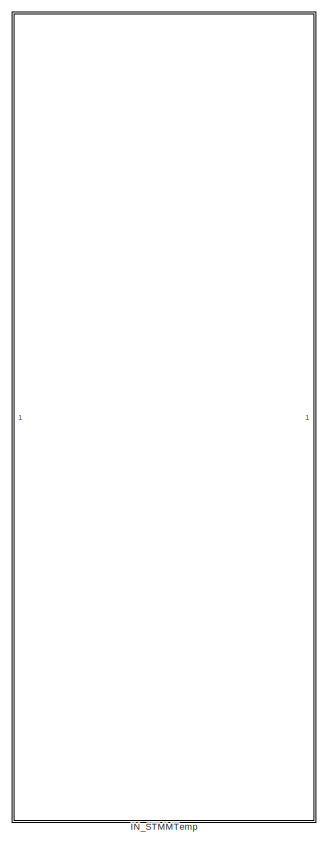
[diagram: root canvas - part 1/2, full width, top band]
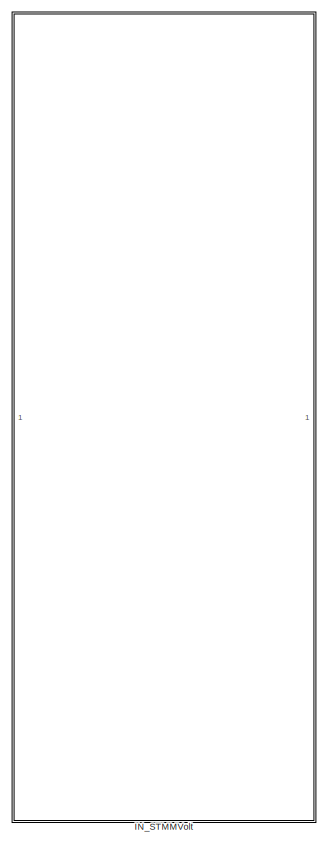
[diagram: root canvas - part 2/2, full width, bottom band]
MODEL slx_21fb382a4b44
KIND library
CONFIG AbsTol = auto
CONFIG EnableMultiTasking = off
CONFIG FixedStep = auto
CONFIG MaxStep = auto
CONFIG MinStep = auto
CONFIG RelTol = 1e-3
CONFIG SampleTimeConstraint = Unconstrained
CONFIG SolverName = VariableStepAuto
CONFIG StartTime = 0.0
CONFIG StopTime = 10.0
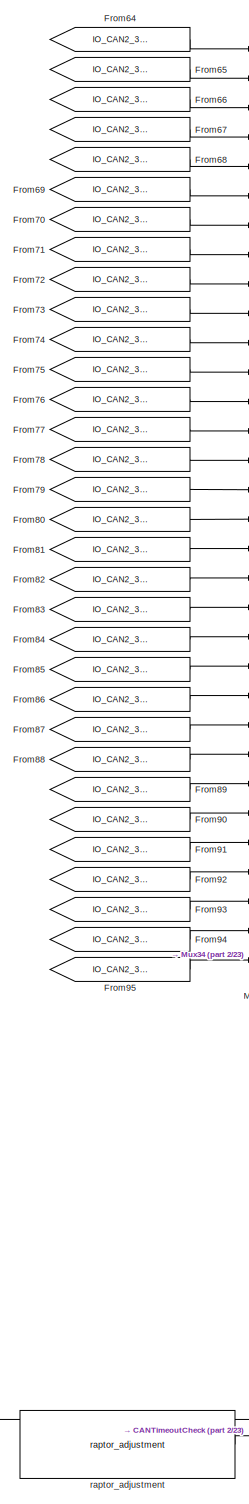
[diagram: IN_STMMTemp - part 1/23, top left region]
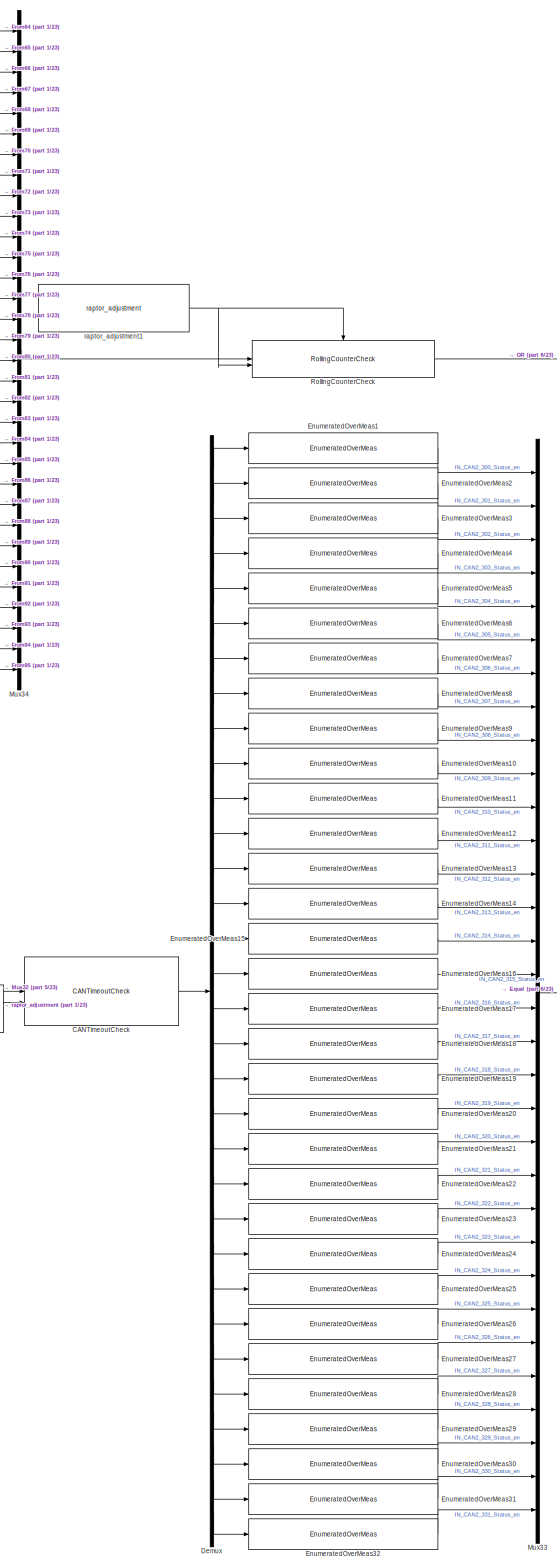
[diagram: IN_STMMTemp - part 2/23, top center region]
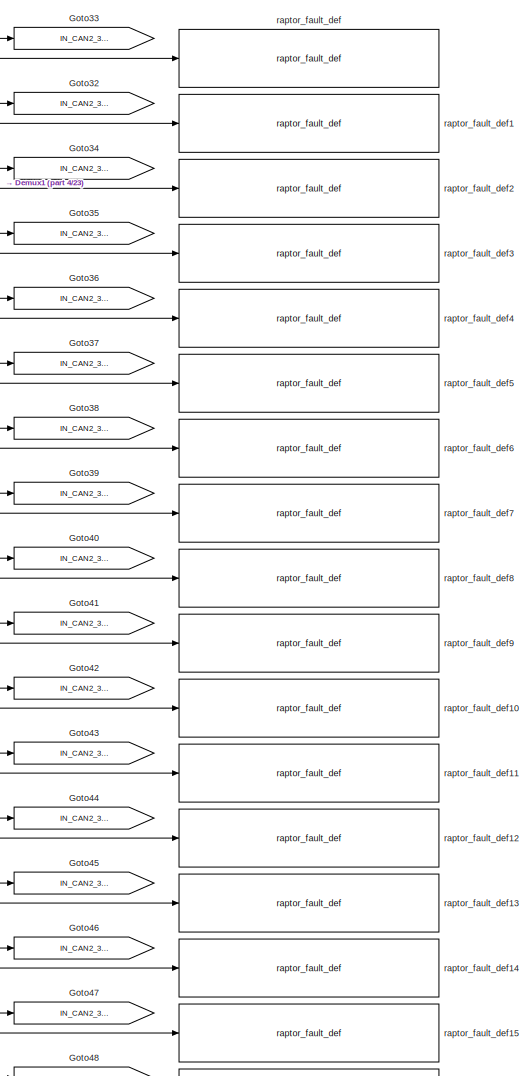
[diagram: IN_STMMTemp - part 3/23, top right region]
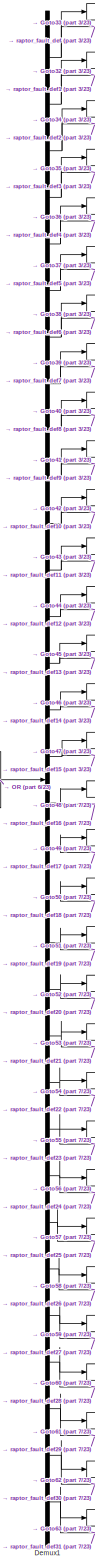
[diagram: IN_STMMTemp - part 4/23, top right region]
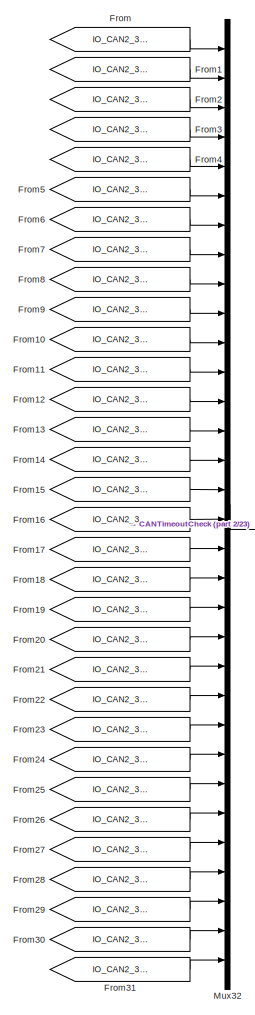
[diagram: IN_STMMTemp - part 5/23, top left region]
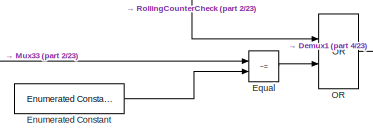
[diagram: IN_STMMTemp - part 6/23, top center region]
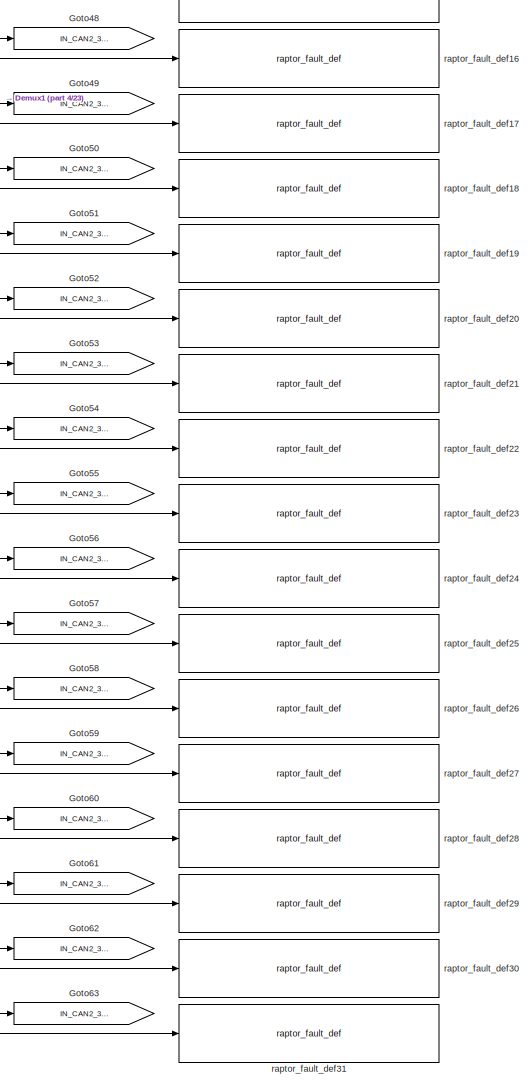
[diagram: IN_STMMTemp - part 7/23, top right region]
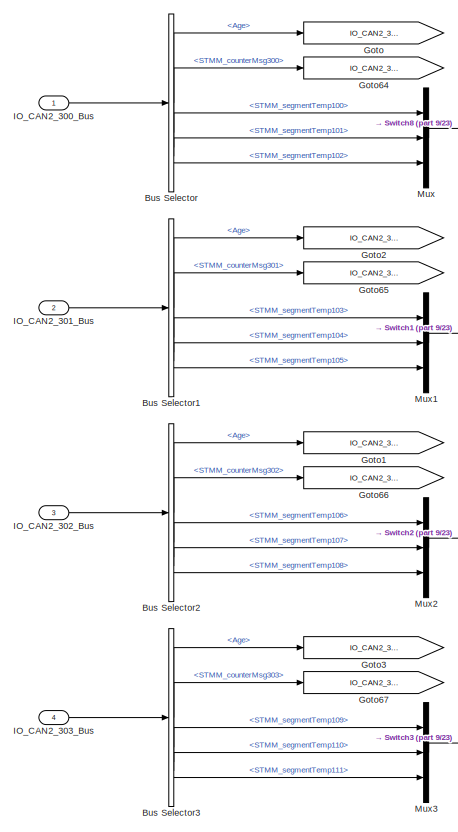
[diagram: IN_STMMTemp - part 8/23, top left region]
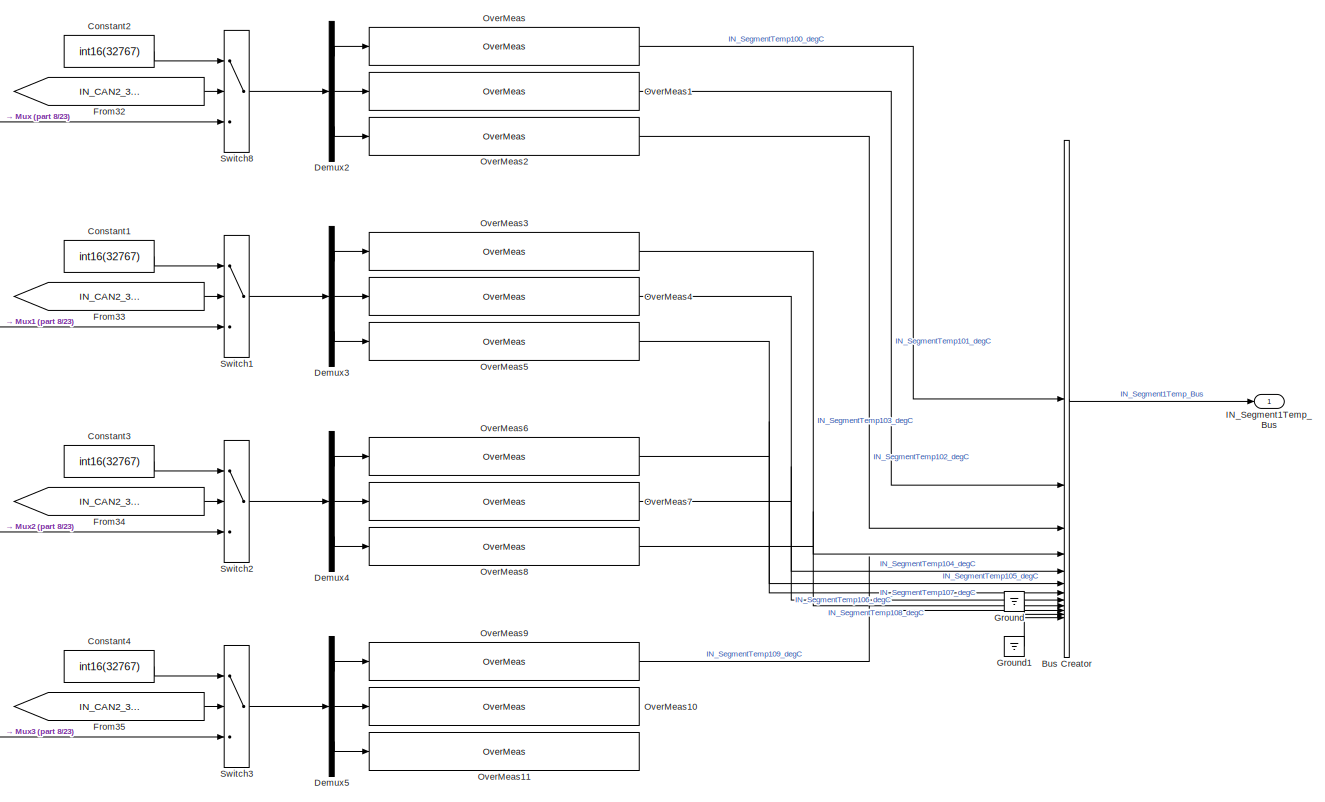
[diagram: IN_STMMTemp - part 9/23, top center region]
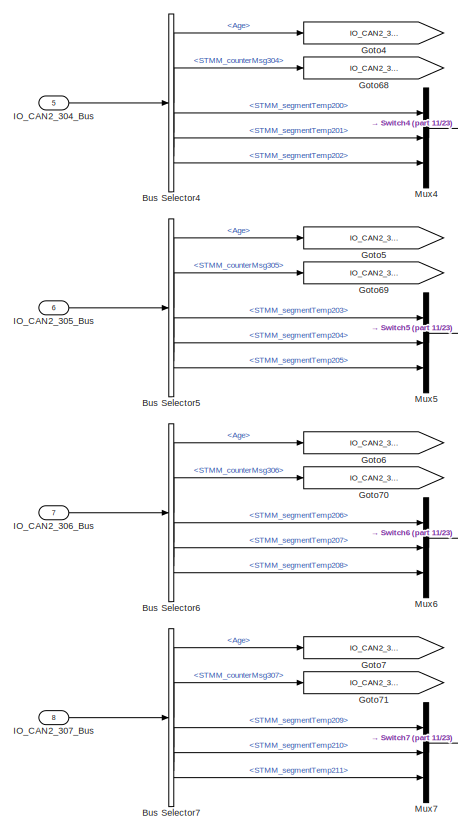
[diagram: IN_STMMTemp - part 10/23, middle left region]
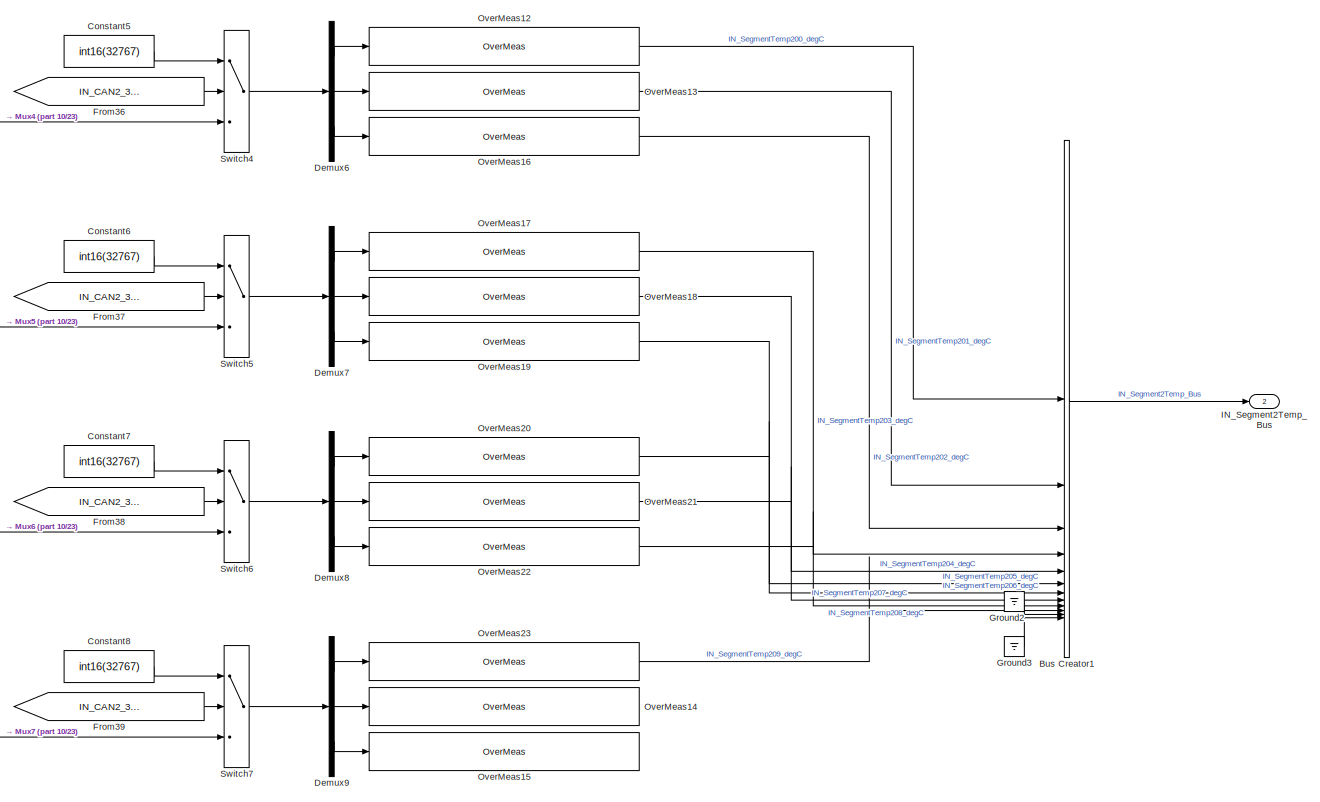
[diagram: IN_STMMTemp - part 11/23, central region]
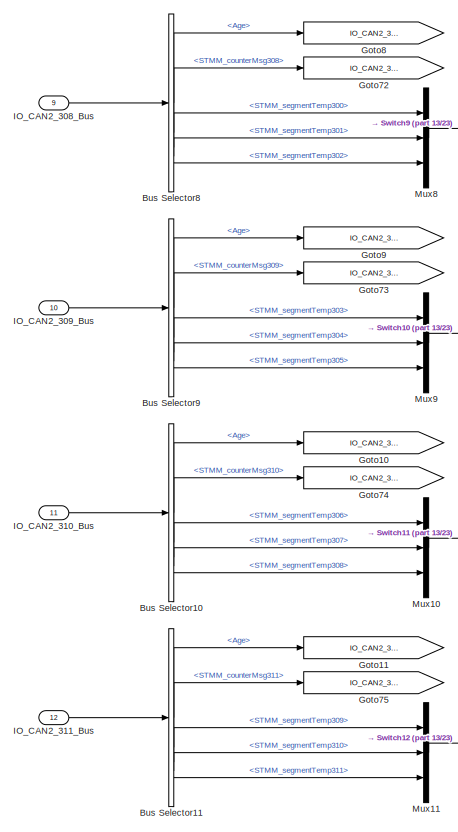
[diagram: IN_STMMTemp - part 12/23, middle left region]
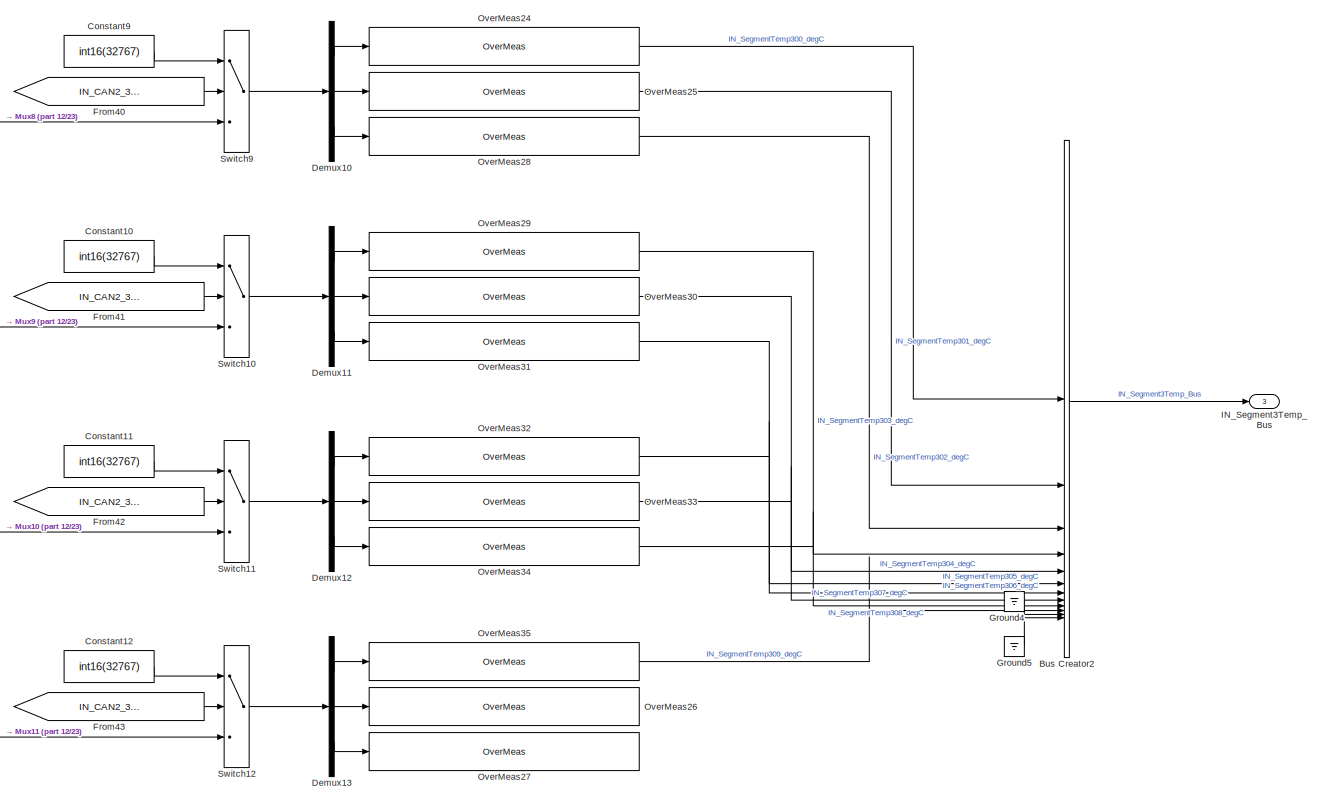
[diagram: IN_STMMTemp - part 13/23, central region]
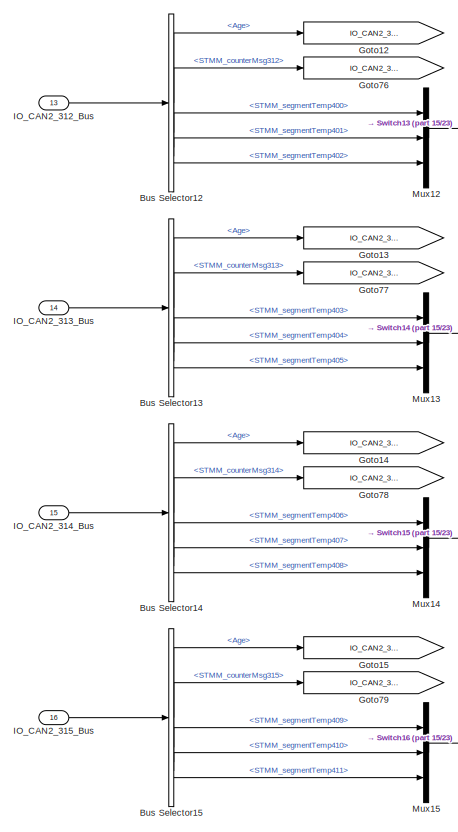
[diagram: IN_STMMTemp - part 14/23, middle left region]
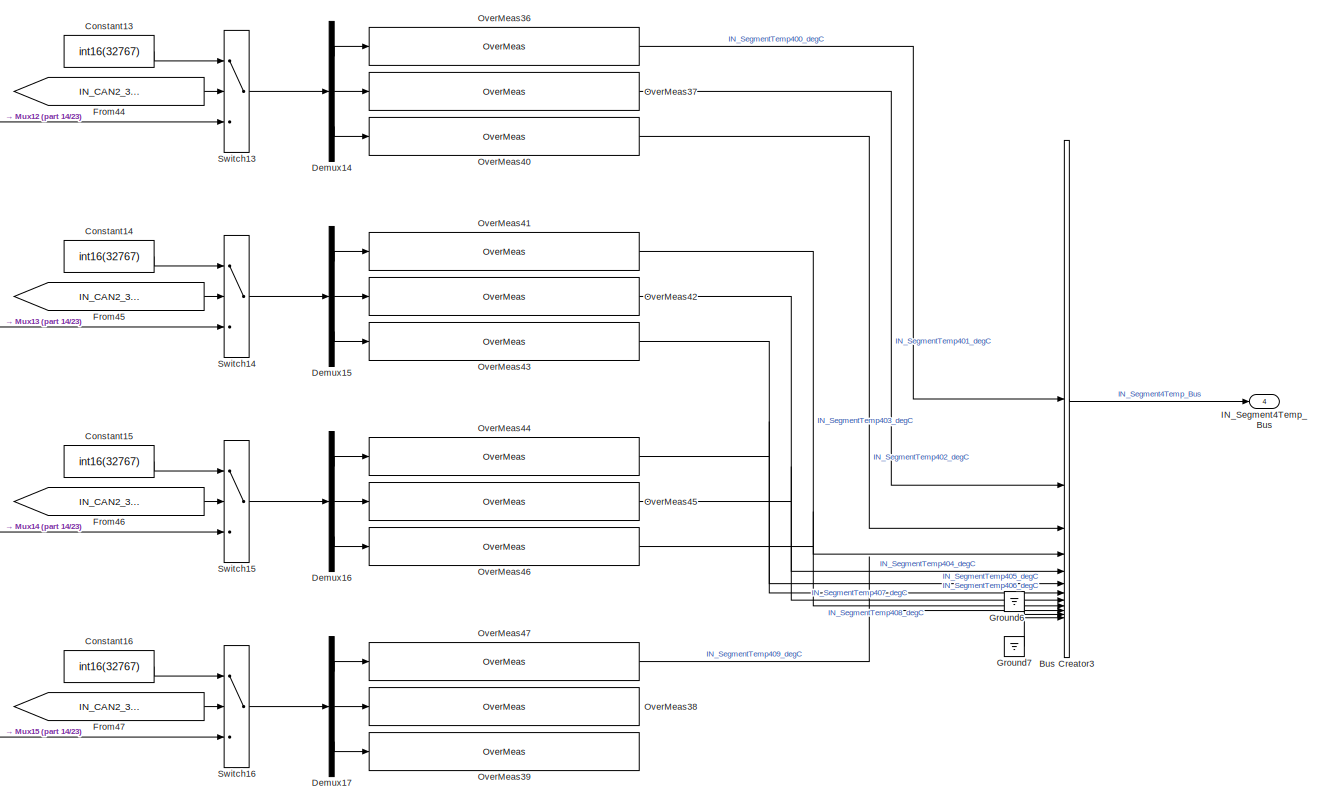
[diagram: IN_STMMTemp - part 15/23, central region]
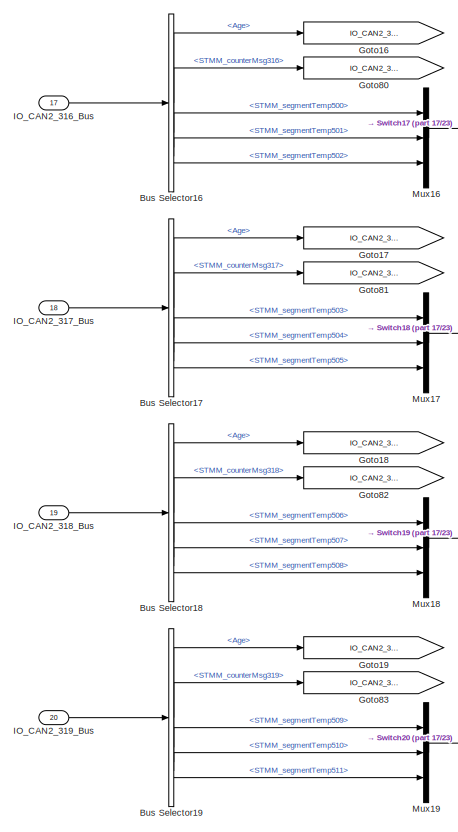
[diagram: IN_STMMTemp - part 16/23, bottom left region]
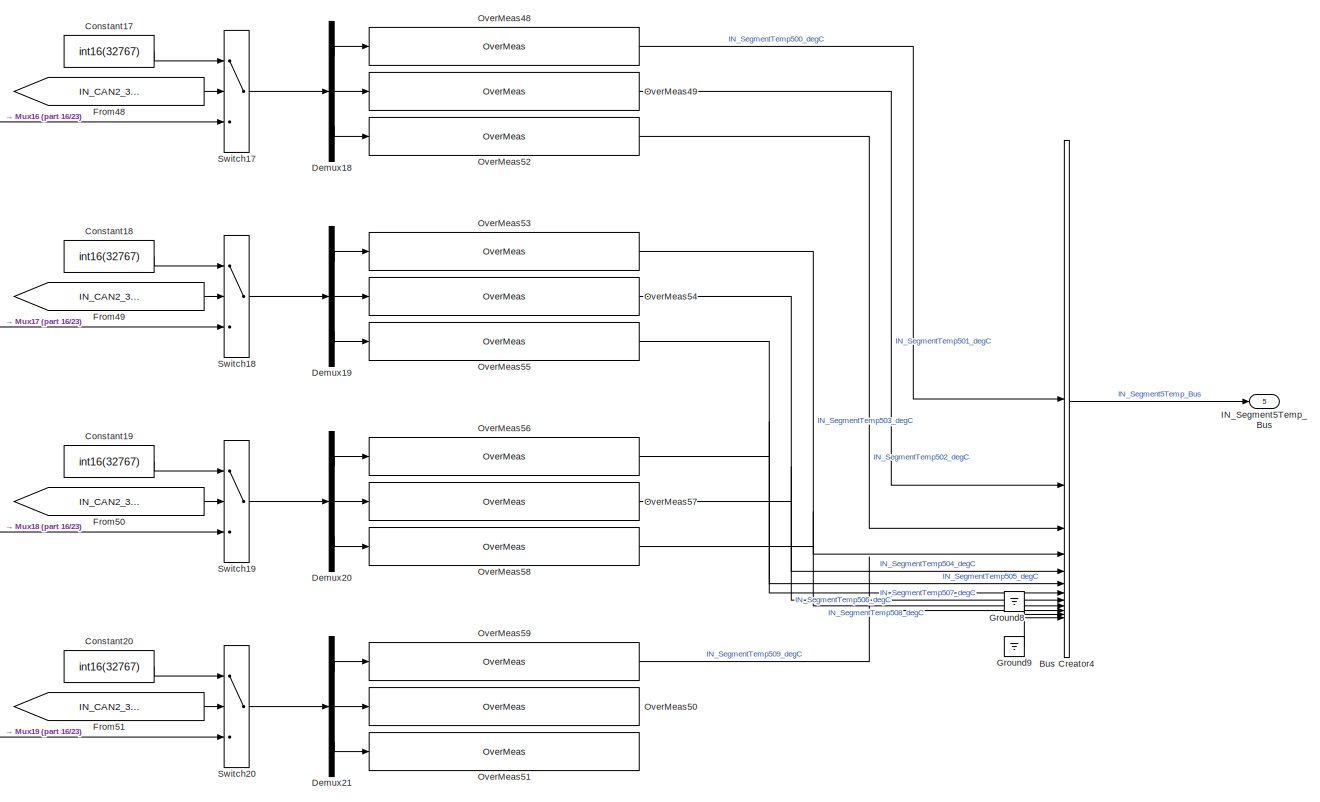
[diagram: IN_STMMTemp - part 17/23, bottom center region]
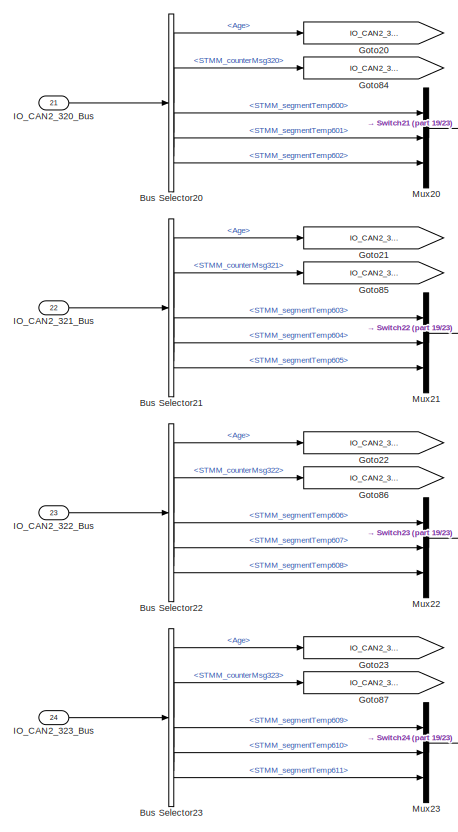
[diagram: IN_STMMTemp - part 18/23, bottom left region]
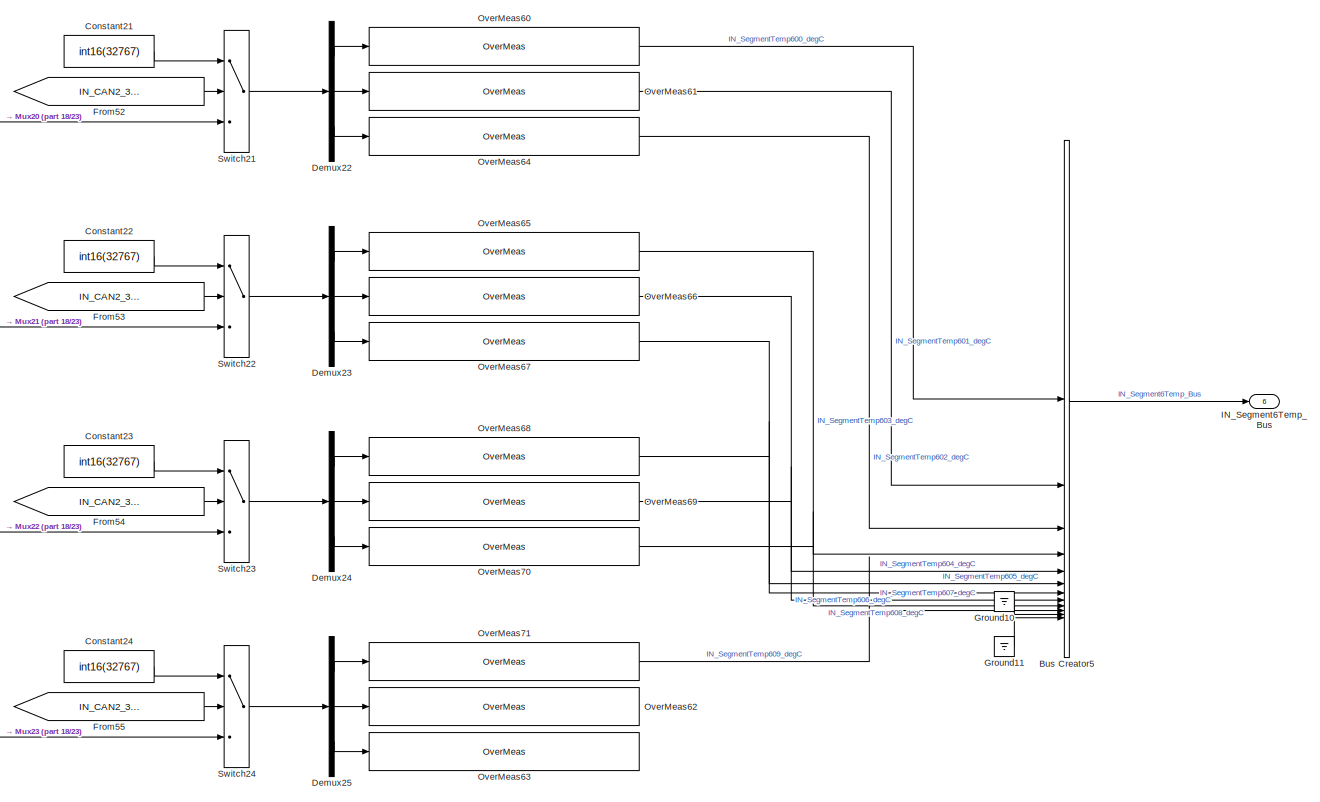
[diagram: IN_STMMTemp - part 19/23, bottom center region]
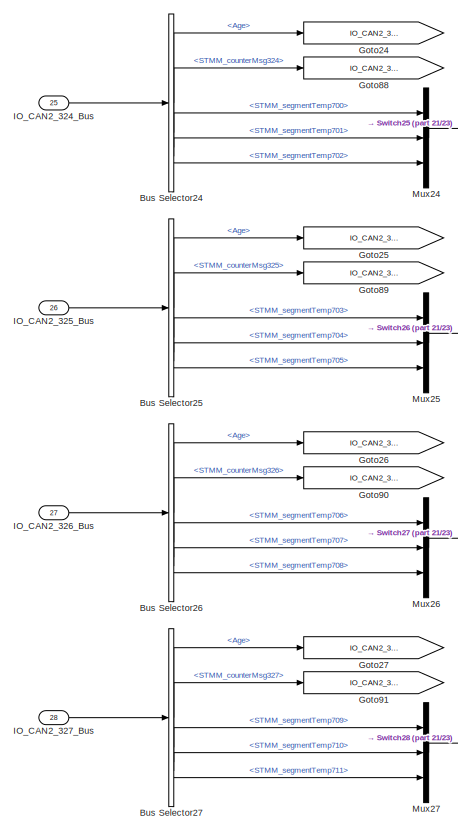
[diagram: IN_STMMTemp - part 20/23, bottom left region]
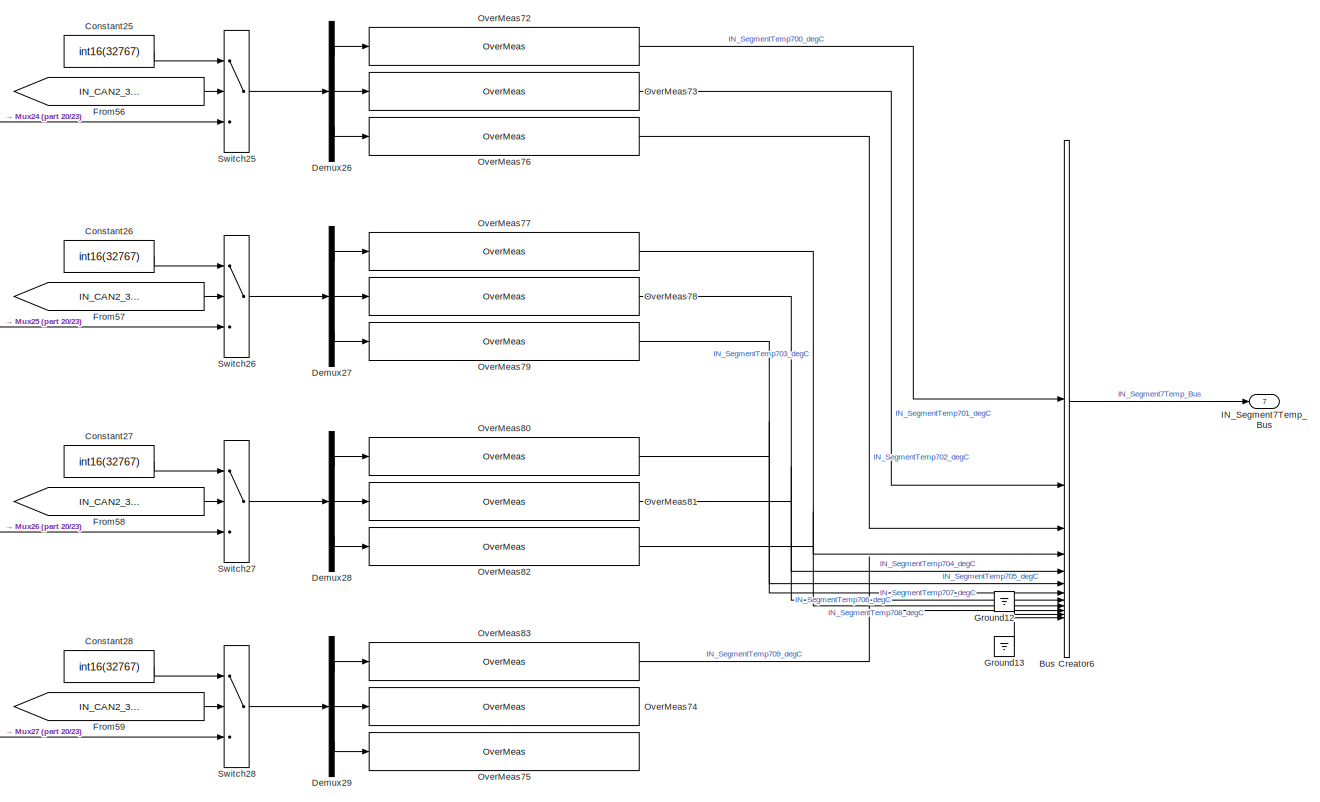
[diagram: IN_STMMTemp - part 21/23, bottom center region]
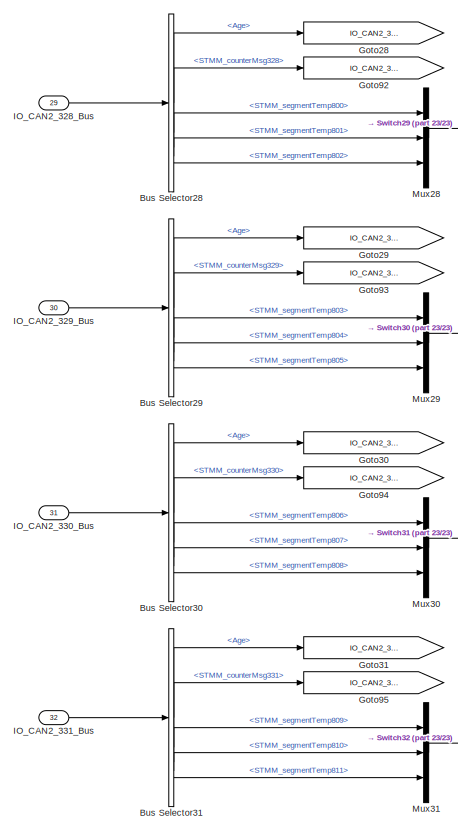
[diagram: IN_STMMTemp - part 22/23, bottom left region]
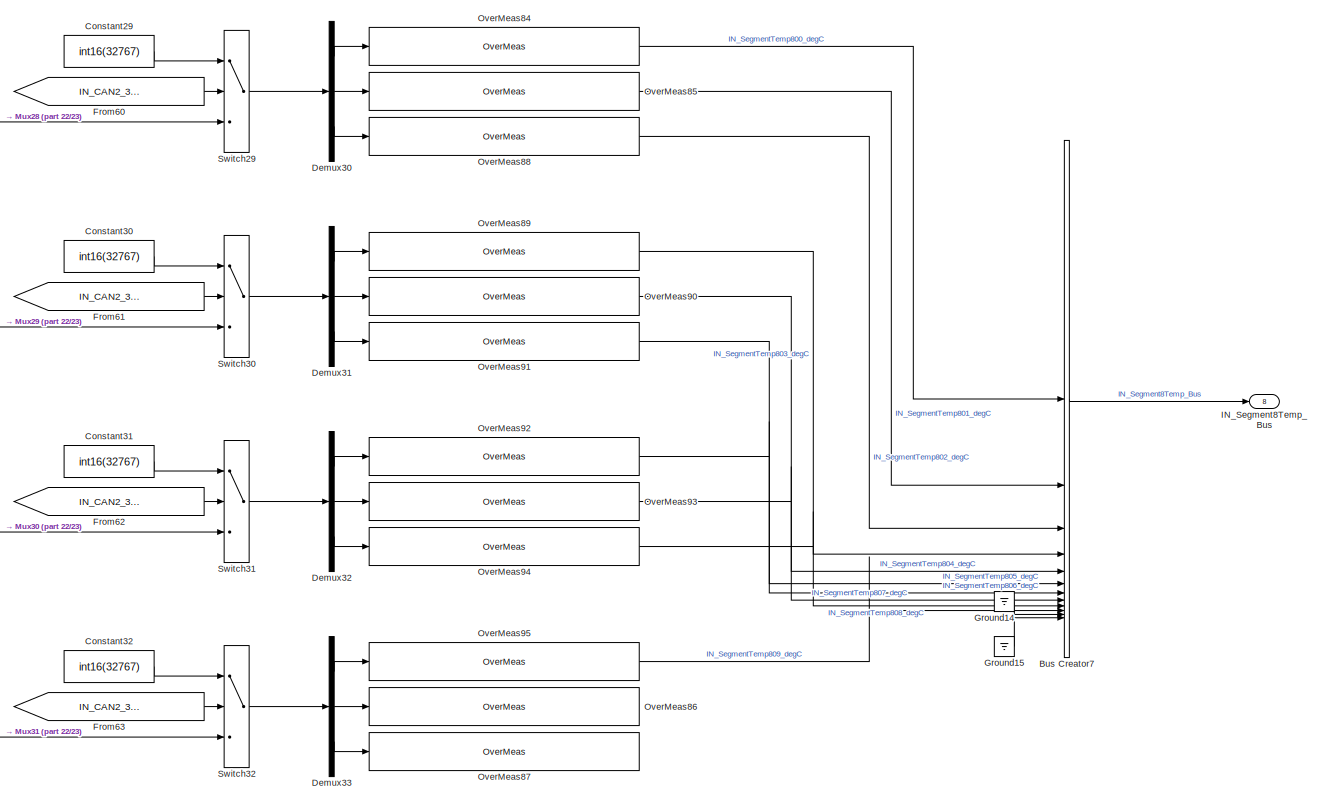
[diagram: IN_STMMTemp - part 23/23, bottom center region]
BLOCK [SubSystem] IN_STMMTemp
BLOCK [BusCreator] IN_STMMTemp/Bus Creator
  DisplayOption = bar
  InheritFromInputs = on
  Inputs = 12
BLOCK [BusCreator] IN_STMMTemp/Bus Creator1
  DisplayOption = bar
  InheritFromInputs = on
  Inputs = 12
BLOCK [BusCreator] IN_STMMTemp/Bus Creator2
  DisplayOption = bar
  InheritFromInputs = on
  Inputs = 12
BLOCK [BusCreator] IN_STMMTemp/Bus Creator3
  DisplayOption = bar
  InheritFromInputs = on
  Inputs = 12
BLOCK [BusCreator] IN_STMMTemp/Bus Creator4
  DisplayOption = bar
  InheritFromInputs = on
  Inputs = 12
BLOCK [BusCreator] IN_STMMTemp/Bus Creator5
  DisplayOption = bar
  InheritFromInputs = on
  Inputs = 12
BLOCK [BusCreator] IN_STMMTemp/Bus Creator6
  DisplayOption = bar
  InheritFromInputs = on
  Inputs = 12
BLOCK [BusCreator] IN_STMMTemp/Bus Creator7
  DisplayOption = bar
  InheritFromInputs = on
  Inputs = 12
BLOCK [BusSelector] IN_STMMTemp/Bus Selector
  OutputSignals = Age,STMM_counterMsg300,STMM_segmentTemp100,STMM_segmentTemp101,STMM_segmentTemp102
BLOCK [BusSelector] IN_STMMTemp/Bus Selector1
  OutputSignals = Age,STMM_counterMsg301,STMM_segmentTemp103,STMM_segmentTemp104,STMM_segmentTemp105
BLOCK [BusSelector] IN_STMMTemp/Bus Selector10
  OutputSignals = Age,STMM_counterMsg310,STMM_segmentTemp306,STMM_segmentTemp307,STMM_segmentTemp308
BLOCK [BusSelector] IN_STMMTemp/Bus Selector11
  OutputSignals = Age,STMM_counterMsg311,STMM_segmentTemp309,STMM_segmentTemp310,STMM_segmentTemp311
BLOCK [BusSelector] IN_STMMTemp/Bus Selector12
  OutputSignals = Age,STMM_counterMsg312,STMM_segmentTemp400,STMM_segmentTemp401,STMM_segmentTemp402
BLOCK [BusSelector] IN_STMMTemp/Bus Selector13
  OutputSignals = Age,STMM_counterMsg313,STMM_segmentTemp403,STMM_segmentTemp404,STMM_segmentTemp405
BLOCK [BusSelector] IN_STMMTemp/Bus Selector14
  OutputSignals = Age,STMM_counterMsg314,STMM_segmentTemp406,STMM_segmentTemp407,STMM_segmentTemp408
BLOCK [BusSelector] IN_STMMTemp/Bus Selector15
  OutputSignals = Age,STMM_counterMsg315,STMM_segmentTemp409,STMM_segmentTemp410,STMM_segmentTemp411
BLOCK [BusSelector] IN_STMMTemp/Bus Selector16
  OutputSignals = Age,STMM_counterMsg316,STMM_segmentTemp500,STMM_segmentTemp501,STMM_segmentTemp502
BLOCK [BusSelector] IN_STMMTemp/Bus Selector17
  OutputSignals = Age,STMM_counterMsg317,STMM_segmentTemp503,STMM_segmentTemp504,STMM_segmentTemp505
BLOCK [BusSelector] IN_STMMTemp/Bus Selector18
  OutputSignals = Age,STMM_counterMsg318,STMM_segmentTemp506,STMM_segmentTemp507,STMM_segmentTemp508
BLOCK [BusSelector] IN_STMMTemp/Bus Selector19
  OutputSignals = Age,STMM_counterMsg319,STMM_segmentTemp509,STMM_segmentTemp510,STMM_segmentTemp511
BLOCK [BusSelector] IN_STMMTemp/Bus Selector2
  OutputSignals = Age,STMM_counterMsg302,STMM_segmentTemp106,STMM_segmentTemp107,STMM_segmentTemp108
BLOCK [BusSelector] IN_STMMTemp/Bus Selector20
  OutputSignals = Age,STMM_counterMsg320,STMM_segmentTemp600,STMM_segmentTemp601,STMM_segmentTemp602
BLOCK [BusSelector] IN_STMMTemp/Bus Selector21
  OutputSignals = Age,STMM_counterMsg321,STMM_segmentTemp603,STMM_segmentTemp604,STMM_segmentTemp605
BLOCK [BusSelector] IN_STMMTemp/Bus Selector22
  OutputSignals = Age,STMM_counterMsg322,STMM_segmentTemp606,STMM_segmentTemp607,STMM_segmentTemp608
BLOCK [BusSelector] IN_STMMTemp/Bus Selector23
  OutputSignals = Age,STMM_counterMsg323,STMM_segmentTemp609,STMM_segmentTemp610,STMM_segmentTemp611
BLOCK [BusSelector] IN_STMMTemp/Bus Selector24
  OutputSignals = Age,STMM_counterMsg324,STMM_segmentTemp700,STMM_segmentTemp701,STMM_segmentTemp702
BLOCK [BusSelector] IN_STMMTemp/Bus Selector25
  OutputSignals = Age,STMM_counterMsg325,STMM_segmentTemp703,STMM_segmentTemp704,STMM_segmentTemp705
BLOCK [BusSelector] IN_STMMTemp/Bus Selector26
  OutputSignals = Age,STMM_counterMsg326,STMM_segmentTemp706,STMM_segmentTemp707,STMM_segmentTemp708
BLOCK [BusSelector] IN_STMMTemp/Bus Selector27
  OutputSignals = Age,STMM_counterMsg327,STMM_segmentTemp709,STMM_segmentTemp710,STMM_segmentTemp711
BLOCK [BusSelector] IN_STMMTemp/Bus Selector28
  OutputSignals = Age,STMM_counterMsg328,STMM_segmentTemp800,STMM_segmentTemp801,STMM_segmentTemp802
BLOCK [BusSelector] IN_STMMTemp/Bus Selector29
  OutputSignals = Age,STMM_counterMsg329,STMM_segmentTemp803,STMM_segmentTemp804,STMM_segmentTemp805
BLOCK [BusSelector] IN_STMMTemp/Bus Selector3
  OutputSignals = Age,STMM_counterMsg303,STMM_segmentTemp109,STMM_segmentTemp110,STMM_segmentTemp111
BLOCK [BusSelector] IN_STMMTemp/Bus Selector30
  OutputSignals = Age,STMM_counterMsg330,STMM_segmentTemp806,STMM_segmentTemp807,STMM_segmentTemp808
BLOCK [BusSelector] IN_STMMTemp/Bus Selector31
  OutputSignals = Age,STMM_counterMsg331,STMM_segmentTemp809,STMM_segmentTemp810,STMM_segmentTemp811
BLOCK [BusSelector] IN_STMMTemp/Bus Selector4
  OutputSignals = Age,STMM_counterMsg304,STMM_segmentTemp200,STMM_segmentTemp201,STMM_segmentTemp202
BLOCK [BusSelector] IN_STMMTemp/Bus Selector5
  OutputSignals = Age,STMM_counterMsg305,STMM_segmentTemp203,STMM_segmentTemp204,STMM_segmentTemp205
BLOCK [BusSelector] IN_STMMTemp/Bus Selector6
  OutputSignals = Age,STMM_counterMsg306,STMM_segmentTemp206,STMM_segmentTemp207,STMM_segmentTemp208
BLOCK [BusSelector] IN_STMMTemp/Bus Selector7
  OutputSignals = Age,STMM_counterMsg307,STMM_segmentTemp209,STMM_segmentTemp210,STMM_segmentTemp211
BLOCK [BusSelector] IN_STMMTemp/Bus Selector8
  OutputSignals = Age,STMM_counterMsg308,STMM_segmentTemp300,STMM_segmentTemp301,STMM_segmentTemp302
BLOCK [BusSelector] IN_STMMTemp/Bus Selector9
  OutputSignals = Age,STMM_counterMsg309,STMM_segmentTemp303,STMM_segmentTemp304,STMM_segmentTemp305
BLOCK [Reference] IN_STMMTemp/CANTimeoutCheck  REF=Utilities/CANTimeoutCheck
  SourceBlock = Utilities/CANTimeoutCheck
BLOCK [Constant] IN_STMMTemp/Constant1
  Value = int16(32767)
BLOCK [Constant] IN_STMMTemp/Constant10
  Value = int16(32767)
BLOCK [Constant] IN_STMMTemp/Constant11
  Value = int16(32767)
BLOCK [Constant] IN_STMMTemp/Constant12
  Value = int16(32767)
BLOCK [Constant] IN_STMMTemp/Constant13
  Value = int16(32767)
BLOCK [Constant] IN_STMMTemp/Constant14
  Value = int16(32767)
BLOCK [Constant] IN_STMMTemp/Constant15
  Value = int16(32767)
BLOCK [Constant] IN_STMMTemp/Constant16
  Value = int16(32767)
BLOCK [Constant] IN_STMMTemp/Constant17
  Value = int16(32767)
BLOCK [Constant] IN_STMMTemp/Constant18
  Value = int16(32767)
BLOCK [Constant] IN_STMMTemp/Constant19
  Value = int16(32767)
BLOCK [Constant] IN_STMMTemp/Constant2
  Value = int16(32767)
BLOCK [Constant] IN_STMMTemp/Constant20
  Value = int16(32767)
BLOCK [Constant] IN_STMMTemp/Constant21
  Value = int16(32767)
BLOCK [Constant] IN_STMMTemp/Constant22
  Value = int16(32767)
BLOCK [Constant] IN_STMMTemp/Constant23
  Value = int16(32767)
BLOCK [Constant] IN_STMMTemp/Constant24
  Value = int16(32767)
BLOCK [Constant] IN_STMMTemp/Constant25
  Value = int16(32767)
BLOCK [Constant] IN_STMMTemp/Constant26
  Value = int16(32767)
BLOCK [Constant] IN_STMMTemp/Constant27
  Value = int16(32767)
BLOCK [Constant] IN_STMMTemp/Constant28
  Value = int16(32767)
BLOCK [Constant] IN_STMMTemp/Constant29
  Value = int16(32767)
BLOCK [Constant] IN_STMMTemp/Constant3
  Value = int16(32767)
BLOCK [Constant] IN_STMMTemp/Constant30
  Value = int16(32767)
BLOCK [Constant] IN_STMMTemp/Constant31
  Value = int16(32767)
BLOCK [Constant] IN_STMMTemp/Constant32
  Value = int16(32767)
BLOCK [Constant] IN_STMMTemp/Constant4
  Value = int16(32767)
BLOCK [Constant] IN_STMMTemp/Constant5
  Value = int16(32767)
BLOCK [Constant] IN_STMMTemp/Constant6
  Value = int16(32767)
BLOCK [Constant] IN_STMMTemp/Constant7
  Value = int16(32767)
BLOCK [Constant] IN_STMMTemp/Constant8
  Value = int16(32767)
BLOCK [Constant] IN_STMMTemp/Constant9
  Value = int16(32767)
BLOCK [Demux] IN_STMMTemp/Demux
  Outputs = 32
BLOCK [Demux] IN_STMMTemp/Demux1
  Outputs = 32
BLOCK [Demux] IN_STMMTemp/Demux10
  Outputs = 3
BLOCK [Demux] IN_STMMTemp/Demux11
  Outputs = 3
BLOCK [Demux] IN_STMMTemp/Demux12
  Outputs = 3
BLOCK [Demux] IN_STMMTemp/Demux13
  Outputs = 3
BLOCK [Demux] IN_STMMTemp/Demux14
  Outputs = 3
BLOCK [Demux] IN_STMMTemp/Demux15
  Outputs = 3
BLOCK [Demux] IN_STMMTemp/Demux16
  Outputs = 3
BLOCK [Demux] IN_STMMTemp/Demux17
  Outputs = 3
BLOCK [Demux] IN_STMMTemp/Demux18
  Outputs = 3
BLOCK [Demux] IN_STMMTemp/Demux19
  Outputs = 3
BLOCK [Demux] IN_STMMTemp/Demux2
  Outputs = 3
BLOCK [Demux] IN_STMMTemp/Demux20
  Outputs = 3
BLOCK [Demux] IN_STMMTemp/Demux21
  Outputs = 3
BLOCK [Demux] IN_STMMTemp/Demux22
  Outputs = 3
BLOCK [Demux] IN_STMMTemp/Demux23
  Outputs = 3
BLOCK [Demux] IN_STMMTemp/Demux24
  Outputs = 3
BLOCK [Demux] IN_STMMTemp/Demux25
  Outputs = 3
BLOCK [Demux] IN_STMMTemp/Demux26
  Outputs = 3
BLOCK [Demux] IN_STMMTemp/Demux27
  Outputs = 3
BLOCK [Demux] IN_STMMTemp/Demux28
  Outputs = 3
BLOCK [Demux] IN_STMMTemp/Demux29
  Outputs = 3
BLOCK [Demux] IN_STMMTemp/Demux3
  Outputs = 3
BLOCK [Demux] IN_STMMTemp/Demux30
  Outputs = 3
BLOCK [Demux] IN_STMMTemp/Demux31
  Outputs = 3
BLOCK [Demux] IN_STMMTemp/Demux32
  Outputs = 3
BLOCK [Demux] IN_STMMTemp/Demux33
  Outputs = 3
BLOCK [Demux] IN_STMMTemp/Demux4
  Outputs = 3
BLOCK [Demux] IN_STMMTemp/Demux5
  Outputs = 3
BLOCK [Demux] IN_STMMTemp/Demux6
  Outputs = 3
BLOCK [Demux] IN_STMMTemp/Demux7
  Outputs = 3
BLOCK [Demux] IN_STMMTemp/Demux8
  Outputs = 3
BLOCK [Demux] IN_STMMTemp/Demux9
  Outputs = 3
BLOCK [Reference] IN_STMMTemp/Enumerated Constant  REF=simulink/Sources/Enumerated
Constant
  SourceBlock = simulink/Sources/Enumerated\nConstant
  SourceType = Enumerated Constant
BLOCK [Reference] IN_STMMTemp/EnumeratedOverMeas1  REF=Utilities/EnumeratedOverMeas
  SourceBlock = Utilities/EnumeratedOverMeas
BLOCK [Reference] IN_STMMTemp/EnumeratedOverMeas10  REF=Utilities/EnumeratedOverMeas
  SourceBlock = Utilities/EnumeratedOverMeas
BLOCK [Reference] IN_STMMTemp/EnumeratedOverMeas11  REF=Utilities/EnumeratedOverMeas
  SourceBlock = Utilities/EnumeratedOverMeas
BLOCK [Reference] IN_STMMTemp/EnumeratedOverMeas12  REF=Utilities/EnumeratedOverMeas
  SourceBlock = Utilities/EnumeratedOverMeas
BLOCK [Reference] IN_STMMTemp/EnumeratedOverMeas13  REF=Utilities/EnumeratedOverMeas
  SourceBlock = Utilities/EnumeratedOverMeas
BLOCK [Reference] IN_STMMTemp/EnumeratedOverMeas14  REF=Utilities/EnumeratedOverMeas
  SourceBlock = Utilities/EnumeratedOverMeas
BLOCK [Reference] IN_STMMTemp/EnumeratedOverMeas15  REF=Utilities/EnumeratedOverMeas
  SourceBlock = Utilities/EnumeratedOverMeas
BLOCK [Reference] IN_STMMTemp/EnumeratedOverMeas16  REF=Utilities/EnumeratedOverMeas
  SourceBlock = Utilities/EnumeratedOverMeas
BLOCK [Reference] IN_STMMTemp/EnumeratedOverMeas17  REF=Utilities/EnumeratedOverMeas
  SourceBlock = Utilities/EnumeratedOverMeas
BLOCK [Reference] IN_STMMTemp/EnumeratedOverMeas18  REF=Utilities/EnumeratedOverMeas
  SourceBlock = Utilities/EnumeratedOverMeas
BLOCK [Reference] IN_STMMTemp/EnumeratedOverMeas19  REF=Utilities/EnumeratedOverMeas
  SourceBlock = Utilities/EnumeratedOverMeas
BLOCK [Reference] IN_STMMTemp/EnumeratedOverMeas2  REF=Utilities/EnumeratedOverMeas
  SourceBlock = Utilities/EnumeratedOverMeas
BLOCK [Reference] IN_STMMTemp/EnumeratedOverMeas20  REF=Utilities/EnumeratedOverMeas
  SourceBlock = Utilities/EnumeratedOverMeas
BLOCK [Reference] IN_STMMTemp/EnumeratedOverMeas21  REF=Utilities/EnumeratedOverMeas
  SourceBlock = Utilities/EnumeratedOverMeas
BLOCK [Reference] IN_STMMTemp/EnumeratedOverMeas22  REF=Utilities/EnumeratedOverMeas
  SourceBlock = Utilities/EnumeratedOverMeas
BLOCK [Reference] IN_STMMTemp/EnumeratedOverMeas23  REF=Utilities/EnumeratedOverMeas
  SourceBlock = Utilities/EnumeratedOverMeas
BLOCK [Reference] IN_STMMTemp/EnumeratedOverMeas24  REF=Utilities/EnumeratedOverMeas
  SourceBlock = Utilities/EnumeratedOverMeas
BLOCK [Reference] IN_STMMTemp/EnumeratedOverMeas25  REF=Utilities/EnumeratedOverMeas
  SourceBlock = Utilities/EnumeratedOverMeas
BLOCK [Reference] IN_STMMTemp/EnumeratedOverMeas26  REF=Utilities/EnumeratedOverMeas
  SourceBlock = Utilities/EnumeratedOverMeas
BLOCK [Reference] IN_STMMTemp/EnumeratedOverMeas27  REF=Utilities/EnumeratedOverMeas
  SourceBlock = Utilities/EnumeratedOverMeas
BLOCK [Reference] IN_STMMTemp/EnumeratedOverMeas28  REF=Utilities/EnumeratedOverMeas
  SourceBlock = Utilities/EnumeratedOverMeas
BLOCK [Reference] IN_STMMTemp/EnumeratedOverMeas29  REF=Utilities/EnumeratedOverMeas
  SourceBlock = Utilities/EnumeratedOverMeas
BLOCK [Reference] IN_STMMTemp/EnumeratedOverMeas3  REF=Utilities/EnumeratedOverMeas
  SourceBlock = Utilities/EnumeratedOverMeas
BLOCK [Reference] IN_STMMTemp/EnumeratedOverMeas30  REF=Utilities/EnumeratedOverMeas
  SourceBlock = Utilities/EnumeratedOverMeas
BLOCK [Reference] IN_STMMTemp/EnumeratedOverMeas31  REF=Utilities/EnumeratedOverMeas
  SourceBlock = Utilities/EnumeratedOverMeas
BLOCK [Reference] IN_STMMTemp/EnumeratedOverMeas32  REF=Utilities/EnumeratedOverMeas
  SourceBlock = Utilities/EnumeratedOverMeas
BLOCK [Reference] IN_STMMTemp/EnumeratedOverMeas4  REF=Utilities/EnumeratedOverMeas
  SourceBlock = Utilities/EnumeratedOverMeas
BLOCK [Reference] IN_STMMTemp/EnumeratedOverMeas5  REF=Utilities/EnumeratedOverMeas
  SourceBlock = Utilities/EnumeratedOverMeas
BLOCK [Reference] IN_STMMTemp/EnumeratedOverMeas6  REF=Utilities/EnumeratedOverMeas
  SourceBlock = Utilities/EnumeratedOverMeas
BLOCK [Reference] IN_STMMTemp/EnumeratedOverMeas7  REF=Utilities/EnumeratedOverMeas
  SourceBlock = Utilities/EnumeratedOverMeas
BLOCK [Reference] IN_STMMTemp/EnumeratedOverMeas8  REF=Utilities/EnumeratedOverMeas
  SourceBlock = Utilities/EnumeratedOverMeas
BLOCK [Reference] IN_STMMTemp/EnumeratedOverMeas9  REF=Utilities/EnumeratedOverMeas
  SourceBlock = Utilities/EnumeratedOverMeas
BLOCK [RelationalOperator] IN_STMMTemp/Equal
  InputSameDT = off
  Operator = ~=
  OutDataTypeStr = boolean
  RndMeth = Simplest
BLOCK [From] IN_STMMTemp/From
  GotoTag = IO_CAN2_300_Age
BLOCK [From] IN_STMMTemp/From1
  GotoTag = IO_CAN2_301_Age
BLOCK [From] IN_STMMTemp/From10
  GotoTag = IO_CAN2_310_Age
BLOCK [From] IN_STMMTemp/From11
  GotoTag = IO_CAN2_311_Age
BLOCK [From] IN_STMMTemp/From12
  GotoTag = IO_CAN2_312_Age
BLOCK [From] IN_STMMTemp/From13
  GotoTag = IO_CAN2_313_Age
BLOCK [From] IN_STMMTemp/From14
  GotoTag = IO_CAN2_314_Age
BLOCK [From] IN_STMMTemp/From15
  GotoTag = IO_CAN2_315_Age
BLOCK [From] IN_STMMTemp/From16
  GotoTag = IO_CAN2_316_Age
BLOCK [From] IN_STMMTemp/From17
  GotoTag = IO_CAN2_317_Age
BLOCK [From] IN_STMMTemp/From18
  GotoTag = IO_CAN2_318_Age
BLOCK [From] IN_STMMTemp/From19
  GotoTag = IO_CAN2_319_Age
BLOCK [From] IN_STMMTemp/From2
  GotoTag = IO_CAN2_302_Age
BLOCK [From] IN_STMMTemp/From20
  GotoTag = IO_CAN2_320_Age
BLOCK [From] IN_STMMTemp/From21
  GotoTag = IO_CAN2_321_Age
BLOCK [From] IN_STMMTemp/From22
  GotoTag = IO_CAN2_322_Age
BLOCK [From] IN_STMMTemp/From23
  GotoTag = IO_CAN2_323_Age
BLOCK [From] IN_STMMTemp/From24
  GotoTag = IO_CAN2_324_Age
BLOCK [From] IN_STMMTemp/From25
  GotoTag = IO_CAN2_325_Age
BLOCK [From] IN_STMMTemp/From26
  GotoTag = IO_CAN2_326_Age
BLOCK [From] IN_STMMTemp/From27
  GotoTag = IO_CAN2_327_Age
BLOCK [From] IN_STMMTemp/From28
  GotoTag = IO_CAN2_328_Age
BLOCK [From] IN_STMMTemp/From29
  GotoTag = IO_CAN2_329_Age
BLOCK [From] IN_STMMTemp/From3
  GotoTag = IO_CAN2_303_Age
BLOCK [From] IN_STMMTemp/From30
  GotoTag = IO_CAN2_330_Age
BLOCK [From] IN_STMMTemp/From31
  GotoTag = IO_CAN2_331_Age
BLOCK [From] IN_STMMTemp/From32
  GotoTag = IN_CAN2_300_Fault
BLOCK [From] IN_STMMTemp/From33
  GotoTag = IN_CAN2_301_Fault
BLOCK [From] IN_STMMTemp/From34
  GotoTag = IN_CAN2_302_Fault
BLOCK [From] IN_STMMTemp/From35
  GotoTag = IN_CAN2_303_Fault
BLOCK [From] IN_STMMTemp/From36
  GotoTag = IN_CAN2_304_Fault
BLOCK [From] IN_STMMTemp/From37
  GotoTag = IN_CAN2_305_Fault
BLOCK [From] IN_STMMTemp/From38
  GotoTag = IN_CAN2_306_Fault
BLOCK [From] IN_STMMTemp/From39
  GotoTag = IN_CAN2_307_Fault
BLOCK [From] IN_STMMTemp/From4
  GotoTag = IO_CAN2_304_Age
BLOCK [From] IN_STMMTemp/From40
  GotoTag = IN_CAN2_308_Fault
BLOCK [From] IN_STMMTemp/From41
  GotoTag = IN_CAN2_309_Fault
BLOCK [From] IN_STMMTemp/From42
  GotoTag = IN_CAN2_310_Fault
BLOCK [From] IN_STMMTemp/From43
  GotoTag = IN_CAN2_311_Fault
BLOCK [From] IN_STMMTemp/From44
  GotoTag = IN_CAN2_312_Fault
BLOCK [From] IN_STMMTemp/From45
  GotoTag = IN_CAN2_313_Fault
BLOCK [From] IN_STMMTemp/From46
  GotoTag = IN_CAN2_314_Fault
BLOCK [From] IN_STMMTemp/From47
  GotoTag = IN_CAN2_315_Fault
BLOCK [From] IN_STMMTemp/From48
  GotoTag = IN_CAN2_316_Fault
BLOCK [From] IN_STMMTemp/From49
  GotoTag = IN_CAN2_317_Fault
BLOCK [From] IN_STMMTemp/From5
  GotoTag = IO_CAN2_305_Age
BLOCK [From] IN_STMMTemp/From50
  GotoTag = IN_CAN2_318_Fault
BLOCK [From] IN_STMMTemp/From51
  GotoTag = IN_CAN2_319_Fault
BLOCK [From] IN_STMMTemp/From52
  GotoTag = IN_CAN2_320_Fault
BLOCK [From] IN_STMMTemp/From53
  GotoTag = IN_CAN2_321_Fault
BLOCK [From] IN_STMMTemp/From54
  GotoTag = IN_CAN2_322_Fault
BLOCK [From] IN_STMMTemp/From55
  GotoTag = IN_CAN2_323_Fault
BLOCK [From] IN_STMMTemp/From56
  GotoTag = IN_CAN2_324_Fault
BLOCK [From] IN_STMMTemp/From57
  GotoTag = IN_CAN2_325_Fault
BLOCK [From] IN_STMMTemp/From58
  GotoTag = IN_CAN2_326_Fault
BLOCK [From] IN_STMMTemp/From59
  GotoTag = IN_CAN2_327_Fault
BLOCK [From] IN_STMMTemp/From6
  GotoTag = IO_CAN2_306_Age
BLOCK [From] IN_STMMTemp/From60
  GotoTag = IN_CAN2_328_Fault
BLOCK [From] IN_STMMTemp/From61
  GotoTag = IN_CAN2_329_Fault
BLOCK [From] IN_STMMTemp/From62
  GotoTag = IN_CAN2_330_Fault
BLOCK [From] IN_STMMTemp/From63
  GotoTag = IN_CAN2_331_Fault
BLOCK [From] IN_STMMTemp/From64
  GotoTag = IO_CAN2_300_cnt
BLOCK [From] IN_STMMTemp/From65
  GotoTag = IO_CAN2_301_cnt
BLOCK [From] IN_STMMTemp/From66
  GotoTag = IO_CAN2_302_cnt
BLOCK [From] IN_STMMTemp/From67
  GotoTag = IO_CAN2_303_cnt
BLOCK [From] IN_STMMTemp/From68
  GotoTag = IO_CAN2_304_cnt
BLOCK [From] IN_STMMTemp/From69
  GotoTag = IO_CAN2_305_cnt
BLOCK [From] IN_STMMTemp/From7
  GotoTag = IO_CAN2_307_Age
BLOCK [From] IN_STMMTemp/From70
  GotoTag = IO_CAN2_306_cnt
BLOCK [From] IN_STMMTemp/From71
  GotoTag = IO_CAN2_307_cnt
BLOCK [From] IN_STMMTemp/From72
  GotoTag = IO_CAN2_308_cnt
BLOCK [From] IN_STMMTemp/From73
  GotoTag = IO_CAN2_309_cnt
BLOCK [From] IN_STMMTemp/From74
  GotoTag = IO_CAN2_310_cnt
BLOCK [From] IN_STMMTemp/From75
  GotoTag = IO_CAN2_311_cnt
BLOCK [From] IN_STMMTemp/From76
  GotoTag = IO_CAN2_312_cnt
BLOCK [From] IN_STMMTemp/From77
  GotoTag = IO_CAN2_313_cnt
BLOCK [From] IN_STMMTemp/From78
  GotoTag = IO_CAN2_314_cnt
BLOCK [From] IN_STMMTemp/From79
  GotoTag = IO_CAN2_315_cnt
BLOCK [From] IN_STMMTemp/From8
  GotoTag = IO_CAN2_308_Age
BLOCK [From] IN_STMMTemp/From80
  GotoTag = IO_CAN2_316_cnt
BLOCK [From] IN_STMMTemp/From81
  GotoTag = IO_CAN2_317_cnt
BLOCK [From] IN_STMMTemp/From82
  GotoTag = IO_CAN2_318_cnt
BLOCK [From] IN_STMMTemp/From83
  GotoTag = IO_CAN2_319_cnt
BLOCK [From] IN_STMMTemp/From84
  GotoTag = IO_CAN2_320_cnt
BLOCK [From] IN_STMMTemp/From85
  GotoTag = IO_CAN2_321_cnt
BLOCK [From] IN_STMMTemp/From86
  GotoTag = IO_CAN2_322_cnt
BLOCK [From] IN_STMMTemp/From87
  GotoTag = IO_CAN2_323_cnt
BLOCK [From] IN_STMMTemp/From88
  GotoTag = IO_CAN2_324_cnt
BLOCK [From] IN_STMMTemp/From89
  GotoTag = IO_CAN2_325_cnt
BLOCK [From] IN_STMMTemp/From9
  GotoTag = IO_CAN2_309_Age
BLOCK [From] IN_STMMTemp/From90
  GotoTag = IO_CAN2_326_cnt
BLOCK [From] IN_STMMTemp/From91
  GotoTag = IO_CAN2_327_cnt
BLOCK [From] IN_STMMTemp/From92
  GotoTag = IO_CAN2_328_cnt
BLOCK [From] IN_STMMTemp/From93
  GotoTag = IO_CAN2_329_cnt
BLOCK [From] IN_STMMTemp/From94
  GotoTag = IO_CAN2_330_cnt
BLOCK [From] IN_STMMTemp/From95
  GotoTag = IO_CAN2_331_cnt
BLOCK [Goto] IN_STMMTemp/Goto
  GotoTag = IO_CAN2_300_Age
BLOCK [Goto] IN_STMMTemp/Goto1
  GotoTag = IO_CAN2_302_Age
BLOCK [Goto] IN_STMMTemp/Goto10
  GotoTag = IO_CAN2_310_Age
BLOCK [Goto] IN_STMMTemp/Goto11
  GotoTag = IO_CAN2_311_Age
BLOCK [Goto] IN_STMMTemp/Goto12
  GotoTag = IO_CAN2_312_Age
BLOCK [Goto] IN_STMMTemp/Goto13
  GotoTag = IO_CAN2_313_Age
BLOCK [Goto] IN_STMMTemp/Goto14
  GotoTag = IO_CAN2_314_Age
BLOCK [Goto] IN_STMMTemp/Goto15
  GotoTag = IO_CAN2_315_Age
BLOCK [Goto] IN_STMMTemp/Goto16
  GotoTag = IO_CAN2_316_Age
BLOCK [Goto] IN_STMMTemp/Goto17
  GotoTag = IO_CAN2_317_Age
BLOCK [Goto] IN_STMMTemp/Goto18
  GotoTag = IO_CAN2_318_Age
BLOCK [Goto] IN_STMMTemp/Goto19
  GotoTag = IO_CAN2_319_Age
BLOCK [Goto] IN_STMMTemp/Goto2
  GotoTag = IO_CAN2_301_Age
BLOCK [Goto] IN_STMMTemp/Goto20
  GotoTag = IO_CAN2_320_Age
BLOCK [Goto] IN_STMMTemp/Goto21
  GotoTag = IO_CAN2_321_Age
BLOCK [Goto] IN_STMMTemp/Goto22
  GotoTag = IO_CAN2_322_Age
BLOCK [Goto] IN_STMMTemp/Goto23
  GotoTag = IO_CAN2_323_Age
BLOCK [Goto] IN_STMMTemp/Goto24
  GotoTag = IO_CAN2_324_Age
BLOCK [Goto] IN_STMMTemp/Goto25
  GotoTag = IO_CAN2_325_Age
BLOCK [Goto] IN_STMMTemp/Goto26
  GotoTag = IO_CAN2_326_Age
BLOCK [Goto] IN_STMMTemp/Goto27
  GotoTag = IO_CAN2_327_Age
BLOCK [Goto] IN_STMMTemp/Goto28
  GotoTag = IO_CAN2_328_Age
BLOCK [Goto] IN_STMMTemp/Goto29
  GotoTag = IO_CAN2_329_Age
BLOCK [Goto] IN_STMMTemp/Goto3
  GotoTag = IO_CAN2_303_Age
BLOCK [Goto] IN_STMMTemp/Goto30
  GotoTag = IO_CAN2_330_Age
BLOCK [Goto] IN_STMMTemp/Goto31
  GotoTag = IO_CAN2_331_Age
BLOCK [Goto] IN_STMMTemp/Goto32
  GotoTag = IN_CAN2_301_Fault
BLOCK [Goto] IN_STMMTemp/Goto33
  GotoTag = IN_CAN2_300_Fault
BLOCK [Goto] IN_STMMTemp/Goto34
  GotoTag = IN_CAN2_302_Fault
BLOCK [Goto] IN_STMMTemp/Goto35
  GotoTag = IN_CAN2_303_Fault
BLOCK [Goto] IN_STMMTemp/Goto36
  GotoTag = IN_CAN2_304_Fault
BLOCK [Goto] IN_STMMTemp/Goto37
  GotoTag = IN_CAN2_305_Fault
BLOCK [Goto] IN_STMMTemp/Goto38
  GotoTag = IN_CAN2_306_Fault
BLOCK [Goto] IN_STMMTemp/Goto39
  GotoTag = IN_CAN2_307_Fault
BLOCK [Goto] IN_STMMTemp/Goto4
  GotoTag = IO_CAN2_304_Age
BLOCK [Goto] IN_STMMTemp/Goto40
  GotoTag = IN_CAN2_308_Fault
BLOCK [Goto] IN_STMMTemp/Goto41
  GotoTag = IN_CAN2_309_Fault
BLOCK [Goto] IN_STMMTemp/Goto42
  GotoTag = IN_CAN2_310_Fault
BLOCK [Goto] IN_STMMTemp/Goto43
  GotoTag = IN_CAN2_311_Fault
BLOCK [Goto] IN_STMMTemp/Goto44
  GotoTag = IN_CAN2_312_Fault
BLOCK [Goto] IN_STMMTemp/Goto45
  GotoTag = IN_CAN2_313_Fault
BLOCK [Goto] IN_STMMTemp/Goto46
  GotoTag = IN_CAN2_314_Fault
BLOCK [Goto] IN_STMMTemp/Goto47
  GotoTag = IN_CAN2_315_Fault
BLOCK [Goto] IN_STMMTemp/Goto48
  GotoTag = IN_CAN2_316_Fault
BLOCK [Goto] IN_STMMTemp/Goto49
  GotoTag = IN_CAN2_317_Fault
BLOCK [Goto] IN_STMMTemp/Goto5
  GotoTag = IO_CAN2_305_Age
BLOCK [Goto] IN_STMMTemp/Goto50
  GotoTag = IN_CAN2_318_Fault
BLOCK [Goto] IN_STMMTemp/Goto51
  GotoTag = IN_CAN2_319_Fault
BLOCK [Goto] IN_STMMTemp/Goto52
  GotoTag = IN_CAN2_320_Fault
BLOCK [Goto] IN_STMMTemp/Goto53
  GotoTag = IN_CAN2_321_Fault
BLOCK [Goto] IN_STMMTemp/Goto54
  GotoTag = IN_CAN2_322_Fault
BLOCK [Goto] IN_STMMTemp/Goto55
  GotoTag = IN_CAN2_323_Fault
BLOCK [Goto] IN_STMMTemp/Goto56
  GotoTag = IN_CAN2_324_Fault
BLOCK [Goto] IN_STMMTemp/Goto57
  GotoTag = IN_CAN2_325_Fault
BLOCK [Goto] IN_STMMTemp/Goto58
  GotoTag = IN_CAN2_326_Fault
BLOCK [Goto] IN_STMMTemp/Goto59
  GotoTag = IN_CAN2_327_Fault
BLOCK [Goto] IN_STMMTemp/Goto6
  GotoTag = IO_CAN2_306_Age
BLOCK [Goto] IN_STMMTemp/Goto60
  GotoTag = IN_CAN2_328_Fault
BLOCK [Goto] IN_STMMTemp/Goto61
  GotoTag = IN_CAN2_329_Fault
BLOCK [Goto] IN_STMMTemp/Goto62
  GotoTag = IN_CAN2_330_Fault
BLOCK [Goto] IN_STMMTemp/Goto63
  GotoTag = IN_CAN2_331_Fault
BLOCK [Goto] IN_STMMTemp/Goto64
  GotoTag = IO_CAN2_300_cnt
BLOCK [Goto] IN_STMMTemp/Goto65
  GotoTag = IO_CAN2_301_cnt
BLOCK [Goto] IN_STMMTemp/Goto66
  GotoTag = IO_CAN2_302_cnt
BLOCK [Goto] IN_STMMTemp/Goto67
  GotoTag = IO_CAN2_303_cnt
BLOCK [Goto] IN_STMMTemp/Goto68
  GotoTag = IO_CAN2_304_cnt
BLOCK [Goto] IN_STMMTemp/Goto69
  GotoTag = IO_CAN2_305_cnt
BLOCK [Goto] IN_STMMTemp/Goto7
  GotoTag = IO_CAN2_307_Age
BLOCK [Goto] IN_STMMTemp/Goto70
  GotoTag = IO_CAN2_306_cnt
BLOCK [Goto] IN_STMMTemp/Goto71
  GotoTag = IO_CAN2_307_cnt
BLOCK [Goto] IN_STMMTemp/Goto72
  GotoTag = IO_CAN2_308_cnt
BLOCK [Goto] IN_STMMTemp/Goto73
  GotoTag = IO_CAN2_309_cnt
BLOCK [Goto] IN_STMMTemp/Goto74
  GotoTag = IO_CAN2_310_cnt
BLOCK [Goto] IN_STMMTemp/Goto75
  GotoTag = IO_CAN2_311_cnt
BLOCK [Goto] IN_STMMTemp/Goto76
  GotoTag = IO_CAN2_312_cnt
BLOCK [Goto] IN_STMMTemp/Goto77
  GotoTag = IO_CAN2_313_cnt
BLOCK [Goto] IN_STMMTemp/Goto78
  GotoTag = IO_CAN2_314_cnt
BLOCK [Goto] IN_STMMTemp/Goto79
  GotoTag = IO_CAN2_315_cnt
BLOCK [Goto] IN_STMMTemp/Goto8
  GotoTag = IO_CAN2_308_Age
BLOCK [Goto] IN_STMMTemp/Goto80
  GotoTag = IO_CAN2_316_cnt
BLOCK [Goto] IN_STMMTemp/Goto81
  GotoTag = IO_CAN2_317_cnt
BLOCK [Goto] IN_STMMTemp/Goto82
  GotoTag = IO_CAN2_318_cnt
BLOCK [Goto] IN_STMMTemp/Goto83
  GotoTag = IO_CAN2_319_cnt
BLOCK [Goto] IN_STMMTemp/Goto84
  GotoTag = IO_CAN2_320_cnt
BLOCK [Goto] IN_STMMTemp/Goto85
  GotoTag = IO_CAN2_321_cnt
BLOCK [Goto] IN_STMMTemp/Goto86
  GotoTag = IO_CAN2_322_cnt
BLOCK [Goto] IN_STMMTemp/Goto87
  GotoTag = IO_CAN2_323_cnt
BLOCK [Goto] IN_STMMTemp/Goto88
  GotoTag = IO_CAN2_324_cnt
BLOCK [Goto] IN_STMMTemp/Goto89
  GotoTag = IO_CAN2_325_cnt
BLOCK [Goto] IN_STMMTemp/Goto9
  GotoTag = IO_CAN2_309_Age
BLOCK [Goto] IN_STMMTemp/Goto90
  GotoTag = IO_CAN2_326_cnt
BLOCK [Goto] IN_STMMTemp/Goto91
  GotoTag = IO_CAN2_327_cnt
BLOCK [Goto] IN_STMMTemp/Goto92
  GotoTag = IO_CAN2_328_cnt
BLOCK [Goto] IN_STMMTemp/Goto93
  GotoTag = IO_CAN2_329_cnt
BLOCK [Goto] IN_STMMTemp/Goto94
  GotoTag = IO_CAN2_330_cnt
BLOCK [Goto] IN_STMMTemp/Goto95
  GotoTag = IO_CAN2_331_cnt
BLOCK [Ground] IN_STMMTemp/Ground
BLOCK [Ground] IN_STMMTemp/Ground1
BLOCK [Ground] IN_STMMTemp/Ground10
BLOCK [Ground] IN_STMMTemp/Ground11
BLOCK [Ground] IN_STMMTemp/Ground12
BLOCK [Ground] IN_STMMTemp/Ground13
BLOCK [Ground] IN_STMMTemp/Ground14
BLOCK [Ground] IN_STMMTemp/Ground15
BLOCK [Ground] IN_STMMTemp/Ground2
BLOCK [Ground] IN_STMMTemp/Ground3
BLOCK [Ground] IN_STMMTemp/Ground4
BLOCK [Ground] IN_STMMTemp/Ground5
BLOCK [Ground] IN_STMMTemp/Ground6
BLOCK [Ground] IN_STMMTemp/Ground7
BLOCK [Ground] IN_STMMTemp/Ground8
BLOCK [Ground] IN_STMMTemp/Ground9
BLOCK [Outport] IN_STMMTemp/IN_Segment1Temp_Bus
BLOCK [Outport] IN_STMMTemp/IN_Segment2Temp_Bus
  Port = 2
BLOCK [Outport] IN_STMMTemp/IN_Segment3Temp_Bus
  Port = 3
BLOCK [Outport] IN_STMMTemp/IN_Segment4Temp_Bus
  Port = 4
BLOCK [Outport] IN_STMMTemp/IN_Segment5Temp_Bus
  Port = 5
BLOCK [Outport] IN_STMMTemp/IN_Segment6Temp_Bus
  Port = 6
BLOCK [Outport] IN_STMMTemp/IN_Segment7Temp_Bus
  Port = 7
BLOCK [Outport] IN_STMMTemp/IN_Segment8Temp_Bus
  Port = 8
BLOCK [Inport] IN_STMMTemp/IO_CAN2_300_Bus
BLOCK [Inport] IN_STMMTemp/IO_CAN2_301_Bus
  Port = 2
BLOCK [Inport] IN_STMMTemp/IO_CAN2_302_Bus
  Port = 3
BLOCK [Inport] IN_STMMTemp/IO_CAN2_303_Bus
  Port = 4
BLOCK [Inport] IN_STMMTemp/IO_CAN2_304_Bus
  Port = 5
BLOCK [Inport] IN_STMMTemp/IO_CAN2_305_Bus
  Port = 6
BLOCK [Inport] IN_STMMTemp/IO_CAN2_306_Bus
  Port = 7
BLOCK [Inport] IN_STMMTemp/IO_CAN2_307_Bus
  Port = 8
BLOCK [Inport] IN_STMMTemp/IO_CAN2_308_Bus
  Port = 9
BLOCK [Inport] IN_STMMTemp/IO_CAN2_309_Bus
  Port = 10
BLOCK [Inport] IN_STMMTemp/IO_CAN2_310_Bus
  Port = 11
BLOCK [Inport] IN_STMMTemp/IO_CAN2_311_Bus
  Port = 12
BLOCK [Inport] IN_STMMTemp/IO_CAN2_312_Bus
  Port = 13
BLOCK [Inport] IN_STMMTemp/IO_CAN2_313_Bus
  Port = 14
BLOCK [Inport] IN_STMMTemp/IO_CAN2_314_Bus
  Port = 15
BLOCK [Inport] IN_STMMTemp/IO_CAN2_315_Bus
  Port = 16
BLOCK [Inport] IN_STMMTemp/IO_CAN2_316_Bus
  Port = 17
BLOCK [Inport] IN_STMMTemp/IO_CAN2_317_Bus
  Port = 18
BLOCK [Inport] IN_STMMTemp/IO_CAN2_318_Bus
  Port = 19
BLOCK [Inport] IN_STMMTemp/IO_CAN2_319_Bus
  Port = 20
BLOCK [Inport] IN_STMMTemp/IO_CAN2_320_Bus
  Port = 21
BLOCK [Inport] IN_STMMTemp/IO_CAN2_321_Bus
  Port = 22
BLOCK [Inport] IN_STMMTemp/IO_CAN2_322_Bus
  Port = 23
BLOCK [Inport] IN_STMMTemp/IO_CAN2_323_Bus
  Port = 24
BLOCK [Inport] IN_STMMTemp/IO_CAN2_324_Bus
  Port = 25
BLOCK [Inport] IN_STMMTemp/IO_CAN2_325_Bus
  Port = 26
BLOCK [Inport] IN_STMMTemp/IO_CAN2_326_Bus
  Port = 27
BLOCK [Inport] IN_STMMTemp/IO_CAN2_327_Bus
  Port = 28
BLOCK [Inport] IN_STMMTemp/IO_CAN2_328_Bus
  Port = 29
BLOCK [Inport] IN_STMMTemp/IO_CAN2_329_Bus
  Port = 30
BLOCK [Inport] IN_STMMTemp/IO_CAN2_330_Bus
  Port = 31
BLOCK [Inport] IN_STMMTemp/IO_CAN2_331_Bus
  Port = 32
BLOCK [Mux] IN_STMMTemp/Mux
  DisplayOption = bar
  Inputs = 3
BLOCK [Mux] IN_STMMTemp/Mux1
  DisplayOption = bar
  Inputs = 3
BLOCK [Mux] IN_STMMTemp/Mux10
  DisplayOption = bar
  Inputs = 3
BLOCK [Mux] IN_STMMTemp/Mux11
  DisplayOption = bar
  Inputs = 3
BLOCK [Mux] IN_STMMTemp/Mux12
  DisplayOption = bar
  Inputs = 3
BLOCK [Mux] IN_STMMTemp/Mux13
  DisplayOption = bar
  Inputs = 3
BLOCK [Mux] IN_STMMTemp/Mux14
  DisplayOption = bar
  Inputs = 3
BLOCK [Mux] IN_STMMTemp/Mux15
  DisplayOption = bar
  Inputs = 3
BLOCK [Mux] IN_STMMTemp/Mux16
  DisplayOption = bar
  Inputs = 3
BLOCK [Mux] IN_STMMTemp/Mux17
  DisplayOption = bar
  Inputs = 3
BLOCK [Mux] IN_STMMTemp/Mux18
  DisplayOption = bar
  Inputs = 3
BLOCK [Mux] IN_STMMTemp/Mux19
  DisplayOption = bar
  Inputs = 3
BLOCK [Mux] IN_STMMTemp/Mux2
  DisplayOption = bar
  Inputs = 3
BLOCK [Mux] IN_STMMTemp/Mux20
  DisplayOption = bar
  Inputs = 3
BLOCK [Mux] IN_STMMTemp/Mux21
  DisplayOption = bar
  Inputs = 3
BLOCK [Mux] IN_STMMTemp/Mux22
  DisplayOption = bar
  Inputs = 3
BLOCK [Mux] IN_STMMTemp/Mux23
  DisplayOption = bar
  Inputs = 3
BLOCK [Mux] IN_STMMTemp/Mux24
  DisplayOption = bar
  Inputs = 3
BLOCK [Mux] IN_STMMTemp/Mux25
  DisplayOption = bar
  Inputs = 3
BLOCK [Mux] IN_STMMTemp/Mux26
  DisplayOption = bar
  Inputs = 3
BLOCK [Mux] IN_STMMTemp/Mux27
  DisplayOption = bar
  Inputs = 3
BLOCK [Mux] IN_STMMTemp/Mux28
  DisplayOption = bar
  Inputs = 3
BLOCK [Mux] IN_STMMTemp/Mux29
  DisplayOption = bar
  Inputs = 3
BLOCK [Mux] IN_STMMTemp/Mux3
  DisplayOption = bar
  Inputs = 3
BLOCK [Mux] IN_STMMTemp/Mux30
  DisplayOption = bar
  Inputs = 3
BLOCK [Mux] IN_STMMTemp/Mux31
  DisplayOption = bar
  Inputs = 3
BLOCK [Mux] IN_STMMTemp/Mux32
  DisplayOption = bar
  Inputs = 32
BLOCK [Mux] IN_STMMTemp/Mux33
  DisplayOption = bar
  Inputs = 32
BLOCK [Mux] IN_STMMTemp/Mux34
  DisplayOption = bar
  Inputs = 32
BLOCK [Mux] IN_STMMTemp/Mux4
  DisplayOption = bar
  Inputs = 3
BLOCK [Mux] IN_STMMTemp/Mux5
  DisplayOption = bar
  Inputs = 3
BLOCK [Mux] IN_STMMTemp/Mux6
  DisplayOption = bar
  Inputs = 3
BLOCK [Mux] IN_STMMTemp/Mux7
  DisplayOption = bar
  Inputs = 3
BLOCK [Mux] IN_STMMTemp/Mux8
  DisplayOption = bar
  Inputs = 3
BLOCK [Mux] IN_STMMTemp/Mux9
  DisplayOption = bar
  Inputs = 3
BLOCK [Logic] IN_STMMTemp/OR
  AllPortsSameDT = off
  Operator = OR
  OutDataTypeStr = boolean
BLOCK [Reference] IN_STMMTemp/OverMeas  REF=Utilities/OverMeas
  SourceBlock = Utilities/OverMeas
BLOCK [Reference] IN_STMMTemp/OverMeas1  REF=Utilities/OverMeas
  SourceBlock = Utilities/OverMeas
BLOCK [Reference] IN_STMMTemp/OverMeas10  REF=Utilities/OverMeas
  Commented = on
  SourceBlock = Utilities/OverMeas
BLOCK [Reference] IN_STMMTemp/OverMeas11  REF=Utilities/OverMeas
  Commented = on
  SourceBlock = Utilities/OverMeas
BLOCK [Reference] IN_STMMTemp/OverMeas12  REF=Utilities/OverMeas
  SourceBlock = Utilities/OverMeas
BLOCK [Reference] IN_STMMTemp/OverMeas13  REF=Utilities/OverMeas
  SourceBlock = Utilities/OverMeas
BLOCK [Reference] IN_STMMTemp/OverMeas14  REF=Utilities/OverMeas
  Commented = on
  SourceBlock = Utilities/OverMeas
BLOCK [Reference] IN_STMMTemp/OverMeas15  REF=Utilities/OverMeas
  Commented = on
  SourceBlock = Utilities/OverMeas
BLOCK [Reference] IN_STMMTemp/OverMeas16  REF=Utilities/OverMeas
  SourceBlock = Utilities/OverMeas
BLOCK [Reference] IN_STMMTemp/OverMeas17  REF=Utilities/OverMeas
  SourceBlock = Utilities/OverMeas
BLOCK [Reference] IN_STMMTemp/OverMeas18  REF=Utilities/OverMeas
  SourceBlock = Utilities/OverMeas
BLOCK [Reference] IN_STMMTemp/OverMeas19  REF=Utilities/OverMeas
  SourceBlock = Utilities/OverMeas
BLOCK [Reference] IN_STMMTemp/OverMeas2  REF=Utilities/OverMeas
  SourceBlock = Utilities/OverMeas
BLOCK [Reference] IN_STMMTemp/OverMeas20  REF=Utilities/OverMeas
  SourceBlock = Utilities/OverMeas
BLOCK [Reference] IN_STMMTemp/OverMeas21  REF=Utilities/OverMeas
  SourceBlock = Utilities/OverMeas
BLOCK [Reference] IN_STMMTemp/OverMeas22  REF=Utilities/OverMeas
  SourceBlock = Utilities/OverMeas
BLOCK [Reference] IN_STMMTemp/OverMeas23  REF=Utilities/OverMeas
  SourceBlock = Utilities/OverMeas
BLOCK [Reference] IN_STMMTemp/OverMeas24  REF=Utilities/OverMeas
  SourceBlock = Utilities/OverMeas
BLOCK [Reference] IN_STMMTemp/OverMeas25  REF=Utilities/OverMeas
  SourceBlock = Utilities/OverMeas
BLOCK [Reference] IN_STMMTemp/OverMeas26  REF=Utilities/OverMeas
  Commented = on
  SourceBlock = Utilities/OverMeas
BLOCK [Reference] IN_STMMTemp/OverMeas27  REF=Utilities/OverMeas
  Commented = on
  SourceBlock = Utilities/OverMeas
BLOCK [Reference] IN_STMMTemp/OverMeas28  REF=Utilities/OverMeas
  SourceBlock = Utilities/OverMeas
BLOCK [Reference] IN_STMMTemp/OverMeas29  REF=Utilities/OverMeas
  SourceBlock = Utilities/OverMeas
BLOCK [Reference] IN_STMMTemp/OverMeas3  REF=Utilities/OverMeas
  SourceBlock = Utilities/OverMeas
BLOCK [Reference] IN_STMMTemp/OverMeas30  REF=Utilities/OverMeas
  SourceBlock = Utilities/OverMeas
BLOCK [Reference] IN_STMMTemp/OverMeas31  REF=Utilities/OverMeas
  SourceBlock = Utilities/OverMeas
BLOCK [Reference] IN_STMMTemp/OverMeas32  REF=Utilities/OverMeas
  SourceBlock = Utilities/OverMeas
BLOCK [Reference] IN_STMMTemp/OverMeas33  REF=Utilities/OverMeas
  SourceBlock = Utilities/OverMeas
BLOCK [Reference] IN_STMMTemp/OverMeas34  REF=Utilities/OverMeas
  SourceBlock = Utilities/OverMeas
BLOCK [Reference] IN_STMMTemp/OverMeas35  REF=Utilities/OverMeas
  SourceBlock = Utilities/OverMeas
BLOCK [Reference] IN_STMMTemp/OverMeas36  REF=Utilities/OverMeas
  SourceBlock = Utilities/OverMeas
BLOCK [Reference] IN_STMMTemp/OverMeas37  REF=Utilities/OverMeas
  SourceBlock = Utilities/OverMeas
BLOCK [Reference] IN_STMMTemp/OverMeas38  REF=Utilities/OverMeas
  Commented = on
  SourceBlock = Utilities/OverMeas
BLOCK [Reference] IN_STMMTemp/OverMeas39  REF=Utilities/OverMeas
  Commented = on
  SourceBlock = Utilities/OverMeas
BLOCK [Reference] IN_STMMTemp/OverMeas4  REF=Utilities/OverMeas
  SourceBlock = Utilities/OverMeas
BLOCK [Reference] IN_STMMTemp/OverMeas40  REF=Utilities/OverMeas
  SourceBlock = Utilities/OverMeas
BLOCK [Reference] IN_STMMTemp/OverMeas41  REF=Utilities/OverMeas
  SourceBlock = Utilities/OverMeas
BLOCK [Reference] IN_STMMTemp/OverMeas42  REF=Utilities/OverMeas
  SourceBlock = Utilities/OverMeas
BLOCK [Reference] IN_STMMTemp/OverMeas43  REF=Utilities/OverMeas
  SourceBlock = Utilities/OverMeas
BLOCK [Reference] IN_STMMTemp/OverMeas44  REF=Utilities/OverMeas
  SourceBlock = Utilities/OverMeas
BLOCK [Reference] IN_STMMTemp/OverMeas45  REF=Utilities/OverMeas
  SourceBlock = Utilities/OverMeas
BLOCK [Reference] IN_STMMTemp/OverMeas46  REF=Utilities/OverMeas
  SourceBlock = Utilities/OverMeas
BLOCK [Reference] IN_STMMTemp/OverMeas47  REF=Utilities/OverMeas
  SourceBlock = Utilities/OverMeas
BLOCK [Reference] IN_STMMTemp/OverMeas48  REF=Utilities/OverMeas
  SourceBlock = Utilities/OverMeas
BLOCK [Reference] IN_STMMTemp/OverMeas49  REF=Utilities/OverMeas
  SourceBlock = Utilities/OverMeas
BLOCK [Reference] IN_STMMTemp/OverMeas5  REF=Utilities/OverMeas
  SourceBlock = Utilities/OverMeas
BLOCK [Reference] IN_STMMTemp/OverMeas50  REF=Utilities/OverMeas
  Commented = on
  SourceBlock = Utilities/OverMeas
BLOCK [Reference] IN_STMMTemp/OverMeas51  REF=Utilities/OverMeas
  Commented = on
  SourceBlock = Utilities/OverMeas
BLOCK [Reference] IN_STMMTemp/OverMeas52  REF=Utilities/OverMeas
  SourceBlock = Utilities/OverMeas
BLOCK [Reference] IN_STMMTemp/OverMeas53  REF=Utilities/OverMeas
  SourceBlock = Utilities/OverMeas
BLOCK [Reference] IN_STMMTemp/OverMeas54  REF=Utilities/OverMeas
  SourceBlock = Utilities/OverMeas
BLOCK [Reference] IN_STMMTemp/OverMeas55  REF=Utilities/OverMeas
  SourceBlock = Utilities/OverMeas
BLOCK [Reference] IN_STMMTemp/OverMeas56  REF=Utilities/OverMeas
  SourceBlock = Utilities/OverMeas
BLOCK [Reference] IN_STMMTemp/OverMeas57  REF=Utilities/OverMeas
  SourceBlock = Utilities/OverMeas
BLOCK [Reference] IN_STMMTemp/OverMeas58  REF=Utilities/OverMeas
  SourceBlock = Utilities/OverMeas
BLOCK [Reference] IN_STMMTemp/OverMeas59  REF=Utilities/OverMeas
  SourceBlock = Utilities/OverMeas
BLOCK [Reference] IN_STMMTemp/OverMeas6  REF=Utilities/OverMeas
  SourceBlock = Utilities/OverMeas
BLOCK [Reference] IN_STMMTemp/OverMeas60  REF=Utilities/OverMeas
  SourceBlock = Utilities/OverMeas
BLOCK [Reference] IN_STMMTemp/OverMeas61  REF=Utilities/OverMeas
  SourceBlock = Utilities/OverMeas
BLOCK [Reference] IN_STMMTemp/OverMeas62  REF=Utilities/OverMeas
  Commented = on
  SourceBlock = Utilities/OverMeas
BLOCK [Reference] IN_STMMTemp/OverMeas63  REF=Utilities/OverMeas
  Commented = on
  SourceBlock = Utilities/OverMeas
BLOCK [Reference] IN_STMMTemp/OverMeas64  REF=Utilities/OverMeas
  SourceBlock = Utilities/OverMeas
BLOCK [Reference] IN_STMMTemp/OverMeas65  REF=Utilities/OverMeas
  SourceBlock = Utilities/OverMeas
BLOCK [Reference] IN_STMMTemp/OverMeas66  REF=Utilities/OverMeas
  SourceBlock = Utilities/OverMeas
BLOCK [Reference] IN_STMMTemp/OverMeas67  REF=Utilities/OverMeas
  SourceBlock = Utilities/OverMeas
BLOCK [Reference] IN_STMMTemp/OverMeas68  REF=Utilities/OverMeas
  SourceBlock = Utilities/OverMeas
BLOCK [Reference] IN_STMMTemp/OverMeas69  REF=Utilities/OverMeas
  SourceBlock = Utilities/OverMeas
BLOCK [Reference] IN_STMMTemp/OverMeas7  REF=Utilities/OverMeas
  SourceBlock = Utilities/OverMeas
BLOCK [Reference] IN_STMMTemp/OverMeas70  REF=Utilities/OverMeas
  SourceBlock = Utilities/OverMeas
BLOCK [Reference] IN_STMMTemp/OverMeas71  REF=Utilities/OverMeas
  SourceBlock = Utilities/OverMeas
BLOCK [Reference] IN_STMMTemp/OverMeas72  REF=Utilities/OverMeas
  SourceBlock = Utilities/OverMeas
BLOCK [Reference] IN_STMMTemp/OverMeas73  REF=Utilities/OverMeas
  SourceBlock = Utilities/OverMeas
BLOCK [Reference] IN_STMMTemp/OverMeas74  REF=Utilities/OverMeas
  Commented = on
  SourceBlock = Utilities/OverMeas
BLOCK [Reference] IN_STMMTemp/OverMeas75  REF=Utilities/OverMeas
  Commented = on
  SourceBlock = Utilities/OverMeas
BLOCK [Reference] IN_STMMTemp/OverMeas76  REF=Utilities/OverMeas
  SourceBlock = Utilities/OverMeas
BLOCK [Reference] IN_STMMTemp/OverMeas77  REF=Utilities/OverMeas
  SourceBlock = Utilities/OverMeas
BLOCK [Reference] IN_STMMTemp/OverMeas78  REF=Utilities/OverMeas
  SourceBlock = Utilities/OverMeas
BLOCK [Reference] IN_STMMTemp/OverMeas79  REF=Utilities/OverMeas
  SourceBlock = Utilities/OverMeas
BLOCK [Reference] IN_STMMTemp/OverMeas8  REF=Utilities/OverMeas
  SourceBlock = Utilities/OverMeas
BLOCK [Reference] IN_STMMTemp/OverMeas80  REF=Utilities/OverMeas
  SourceBlock = Utilities/OverMeas
BLOCK [Reference] IN_STMMTemp/OverMeas81  REF=Utilities/OverMeas
  SourceBlock = Utilities/OverMeas
BLOCK [Reference] IN_STMMTemp/OverMeas82  REF=Utilities/OverMeas
  SourceBlock = Utilities/OverMeas
BLOCK [Reference] IN_STMMTemp/OverMeas83  REF=Utilities/OverMeas
  SourceBlock = Utilities/OverMeas
BLOCK [Reference] IN_STMMTemp/OverMeas84  REF=Utilities/OverMeas
  SourceBlock = Utilities/OverMeas
BLOCK [Reference] IN_STMMTemp/OverMeas85  REF=Utilities/OverMeas
  SourceBlock = Utilities/OverMeas
BLOCK [Reference] IN_STMMTemp/OverMeas86  REF=Utilities/OverMeas
  Commented = on
  SourceBlock = Utilities/OverMeas
BLOCK [Reference] IN_STMMTemp/OverMeas87  REF=Utilities/OverMeas
  Commented = on
  SourceBlock = Utilities/OverMeas
BLOCK [Reference] IN_STMMTemp/OverMeas88  REF=Utilities/OverMeas
  SourceBlock = Utilities/OverMeas
BLOCK [Reference] IN_STMMTemp/OverMeas89  REF=Utilities/OverMeas
  SourceBlock = Utilities/OverMeas
BLOCK [Reference] IN_STMMTemp/OverMeas9  REF=Utilities/OverMeas
  SourceBlock = Utilities/OverMeas
BLOCK [Reference] IN_STMMTemp/OverMeas90  REF=Utilities/OverMeas
  SourceBlock = Utilities/OverMeas
BLOCK [Reference] IN_STMMTemp/OverMeas91  REF=Utilities/OverMeas
  SourceBlock = Utilities/OverMeas
BLOCK [Reference] IN_STMMTemp/OverMeas92  REF=Utilities/OverMeas
  SourceBlock = Utilities/OverMeas
BLOCK [Reference] IN_STMMTemp/OverMeas93  REF=Utilities/OverMeas
  SourceBlock = Utilities/OverMeas
BLOCK [Reference] IN_STMMTemp/OverMeas94  REF=Utilities/OverMeas
  SourceBlock = Utilities/OverMeas
BLOCK [Reference] IN_STMMTemp/OverMeas95  REF=Utilities/OverMeas
  SourceBlock = Utilities/OverMeas
BLOCK [Reference] IN_STMMTemp/RollingCounterCheck  REF=Utilities/RollingCounterCheck
  SourceBlock = Utilities/RollingCounterCheck
BLOCK [Switch] IN_STMMTemp/Switch1
  Criteria = u2 ~= 0
  InputSameDT = off
  SaturateOnIntegerOverflow = off
BLOCK [Switch] IN_STMMTemp/Switch10
  Criteria = u2 ~= 0
  InputSameDT = off
  SaturateOnIntegerOverflow = off
BLOCK [Switch] IN_STMMTemp/Switch11
  Criteria = u2 ~= 0
  InputSameDT = off
  SaturateOnIntegerOverflow = off
BLOCK [Switch] IN_STMMTemp/Switch12
  Criteria = u2 ~= 0
  InputSameDT = off
  SaturateOnIntegerOverflow = off
BLOCK [Switch] IN_STMMTemp/Switch13
  Criteria = u2 ~= 0
  InputSameDT = off
  SaturateOnIntegerOverflow = off
BLOCK [Switch] IN_STMMTemp/Switch14
  Criteria = u2 ~= 0
  InputSameDT = off
  SaturateOnIntegerOverflow = off
BLOCK [Switch] IN_STMMTemp/Switch15
  Criteria = u2 ~= 0
  InputSameDT = off
  SaturateOnIntegerOverflow = off
BLOCK [Switch] IN_STMMTemp/Switch16
  Criteria = u2 ~= 0
  InputSameDT = off
  SaturateOnIntegerOverflow = off
BLOCK [Switch] IN_STMMTemp/Switch17
  Criteria = u2 ~= 0
  InputSameDT = off
  SaturateOnIntegerOverflow = off
BLOCK [Switch] IN_STMMTemp/Switch18
  Criteria = u2 ~= 0
  InputSameDT = off
  SaturateOnIntegerOverflow = off
BLOCK [Switch] IN_STMMTemp/Switch19
  Criteria = u2 ~= 0
  InputSameDT = off
  SaturateOnIntegerOverflow = off
BLOCK [Switch] IN_STMMTemp/Switch2
  Criteria = u2 ~= 0
  InputSameDT = off
  SaturateOnIntegerOverflow = off
BLOCK [Switch] IN_STMMTemp/Switch20
  Criteria = u2 ~= 0
  InputSameDT = off
  SaturateOnIntegerOverflow = off
BLOCK [Switch] IN_STMMTemp/Switch21
  Criteria = u2 ~= 0
  InputSameDT = off
  SaturateOnIntegerOverflow = off
BLOCK [Switch] IN_STMMTemp/Switch22
  Criteria = u2 ~= 0
  InputSameDT = off
  SaturateOnIntegerOverflow = off
BLOCK [Switch] IN_STMMTemp/Switch23
  Criteria = u2 ~= 0
  InputSameDT = off
  SaturateOnIntegerOverflow = off
BLOCK [Switch] IN_STMMTemp/Switch24
  Criteria = u2 ~= 0
  InputSameDT = off
  SaturateOnIntegerOverflow = off
BLOCK [Switch] IN_STMMTemp/Switch25
  Criteria = u2 ~= 0
  InputSameDT = off
  SaturateOnIntegerOverflow = off
BLOCK [Switch] IN_STMMTemp/Switch26
  Criteria = u2 ~= 0
  InputSameDT = off
  SaturateOnIntegerOverflow = off
BLOCK [Switch] IN_STMMTemp/Switch27
  Criteria = u2 ~= 0
  InputSameDT = off
  SaturateOnIntegerOverflow = off
BLOCK [Switch] IN_STMMTemp/Switch28
  Criteria = u2 ~= 0
  InputSameDT = off
  SaturateOnIntegerOverflow = off
BLOCK [Switch] IN_STMMTemp/Switch29
  Criteria = u2 ~= 0
  InputSameDT = off
  SaturateOnIntegerOverflow = off
BLOCK [Switch] IN_STMMTemp/Switch3
  Criteria = u2 ~= 0
  InputSameDT = off
  SaturateOnIntegerOverflow = off
BLOCK [Switch] IN_STMMTemp/Switch30
  Criteria = u2 ~= 0
  InputSameDT = off
  SaturateOnIntegerOverflow = off
BLOCK [Switch] IN_STMMTemp/Switch31
  Criteria = u2 ~= 0
  InputSameDT = off
  SaturateOnIntegerOverflow = off
BLOCK [Switch] IN_STMMTemp/Switch32
  Criteria = u2 ~= 0
  InputSameDT = off
  SaturateOnIntegerOverflow = off
BLOCK [Switch] IN_STMMTemp/Switch4
  Criteria = u2 ~= 0
  InputSameDT = off
  SaturateOnIntegerOverflow = off
BLOCK [Switch] IN_STMMTemp/Switch5
  Criteria = u2 ~= 0
  InputSameDT = off
  SaturateOnIntegerOverflow = off
BLOCK [Switch] IN_STMMTemp/Switch6
  Criteria = u2 ~= 0
  InputSameDT = off
  SaturateOnIntegerOverflow = off
BLOCK [Switch] IN_STMMTemp/Switch7
  Criteria = u2 ~= 0
  InputSameDT = off
  SaturateOnIntegerOverflow = off
BLOCK [Switch] IN_STMMTemp/Switch8
  Criteria = u2 ~= 0
  InputSameDT = off
  SaturateOnIntegerOverflow = off
BLOCK [Switch] IN_STMMTemp/Switch9
  Criteria = u2 ~= 0
  InputSameDT = off
  SaturateOnIntegerOverflow = off
BLOCK [Reference] IN_STMMTemp/raptor_adjustment  REF=Raptor_lib/Data Storage/raptor_adjustment
  SourceBlock = Raptor_lib/Data Storage/raptor_adjustment
  SourceProductName = Raptor
  SourceType = Adjustment
BLOCK [Reference] IN_STMMTemp/raptor_adjustment1  REF=Raptor_lib/Data Storage/raptor_adjustment
  SourceBlock = Raptor_lib/Data Storage/raptor_adjustment
  SourceProductName = Raptor
  SourceType = Adjustment
BLOCK [Reference] IN_STMMTemp/raptor_fault_def  REF=Raptor_lib/Faults/raptor_fault_def
  SourceBlock = Raptor_lib/Faults/raptor_fault_def
  SourceProductName = Raptor
  SourceType = Fault Definition
BLOCK [Reference] IN_STMMTemp/raptor_fault_def1  REF=Raptor_lib/Faults/raptor_fault_def
  SourceBlock = Raptor_lib/Faults/raptor_fault_def
  SourceProductName = Raptor
  SourceType = Fault Definition
BLOCK [Reference] IN_STMMTemp/raptor_fault_def10  REF=Raptor_lib/Faults/raptor_fault_def
  SourceBlock = Raptor_lib/Faults/raptor_fault_def
  SourceProductName = Raptor
  SourceType = Fault Definition
BLOCK [Reference] IN_STMMTemp/raptor_fault_def11  REF=Raptor_lib/Faults/raptor_fault_def
  SourceBlock = Raptor_lib/Faults/raptor_fault_def
  SourceProductName = Raptor
  SourceType = Fault Definition
BLOCK [Reference] IN_STMMTemp/raptor_fault_def12  REF=Raptor_lib/Faults/raptor_fault_def
  SourceBlock = Raptor_lib/Faults/raptor_fault_def
  SourceProductName = Raptor
  SourceType = Fault Definition
BLOCK [Reference] IN_STMMTemp/raptor_fault_def13  REF=Raptor_lib/Faults/raptor_fault_def
  SourceBlock = Raptor_lib/Faults/raptor_fault_def
  SourceProductName = Raptor
  SourceType = Fault Definition
BLOCK [Reference] IN_STMMTemp/raptor_fault_def14  REF=Raptor_lib/Faults/raptor_fault_def
  SourceBlock = Raptor_lib/Faults/raptor_fault_def
  SourceProductName = Raptor
  SourceType = Fault Definition
BLOCK [Reference] IN_STMMTemp/raptor_fault_def15  REF=Raptor_lib/Faults/raptor_fault_def
  SourceBlock = Raptor_lib/Faults/raptor_fault_def
  SourceProductName = Raptor
  SourceType = Fault Definition
BLOCK [Reference] IN_STMMTemp/raptor_fault_def16  REF=Raptor_lib/Faults/raptor_fault_def
  SourceBlock = Raptor_lib/Faults/raptor_fault_def
  SourceProductName = Raptor
  SourceType = Fault Definition
BLOCK [Reference] IN_STMMTemp/raptor_fault_def17  REF=Raptor_lib/Faults/raptor_fault_def
  SourceBlock = Raptor_lib/Faults/raptor_fault_def
  SourceProductName = Raptor
  SourceType = Fault Definition
BLOCK [Reference] IN_STMMTemp/raptor_fault_def18  REF=Raptor_lib/Faults/raptor_fault_def
  SourceBlock = Raptor_lib/Faults/raptor_fault_def
  SourceProductName = Raptor
  SourceType = Fault Definition
BLOCK [Reference] IN_STMMTemp/raptor_fault_def19  REF=Raptor_lib/Faults/raptor_fault_def
  SourceBlock = Raptor_lib/Faults/raptor_fault_def
  SourceProductName = Raptor
  SourceType = Fault Definition
BLOCK [Reference] IN_STMMTemp/raptor_fault_def2  REF=Raptor_lib/Faults/raptor_fault_def
  SourceBlock = Raptor_lib/Faults/raptor_fault_def
  SourceProductName = Raptor
  SourceType = Fault Definition
BLOCK [Reference] IN_STMMTemp/raptor_fault_def20  REF=Raptor_lib/Faults/raptor_fault_def
  SourceBlock = Raptor_lib/Faults/raptor_fault_def
  SourceProductName = Raptor
  SourceType = Fault Definition
BLOCK [Reference] IN_STMMTemp/raptor_fault_def21  REF=Raptor_lib/Faults/raptor_fault_def
  SourceBlock = Raptor_lib/Faults/raptor_fault_def
  SourceProductName = Raptor
  SourceType = Fault Definition
BLOCK [Reference] IN_STMMTemp/raptor_fault_def22  REF=Raptor_lib/Faults/raptor_fault_def
  SourceBlock = Raptor_lib/Faults/raptor_fault_def
  SourceProductName = Raptor
  SourceType = Fault Definition
BLOCK [Reference] IN_STMMTemp/raptor_fault_def23  REF=Raptor_lib/Faults/raptor_fault_def
  SourceBlock = Raptor_lib/Faults/raptor_fault_def
  SourceProductName = Raptor
  SourceType = Fault Definition
BLOCK [Reference] IN_STMMTemp/raptor_fault_def24  REF=Raptor_lib/Faults/raptor_fault_def
  SourceBlock = Raptor_lib/Faults/raptor_fault_def
  SourceProductName = Raptor
  SourceType = Fault Definition
BLOCK [Reference] IN_STMMTemp/raptor_fault_def25  REF=Raptor_lib/Faults/raptor_fault_def
  SourceBlock = Raptor_lib/Faults/raptor_fault_def
  SourceProductName = Raptor
  SourceType = Fault Definition
BLOCK [Reference] IN_STMMTemp/raptor_fault_def26  REF=Raptor_lib/Faults/raptor_fault_def
  SourceBlock = Raptor_lib/Faults/raptor_fault_def
  SourceProductName = Raptor
  SourceType = Fault Definition
BLOCK [Reference] IN_STMMTemp/raptor_fault_def27  REF=Raptor_lib/Faults/raptor_fault_def
  SourceBlock = Raptor_lib/Faults/raptor_fault_def
  SourceProductName = Raptor
  SourceType = Fault Definition
BLOCK [Reference] IN_STMMTemp/raptor_fault_def28  REF=Raptor_lib/Faults/raptor_fault_def
  SourceBlock = Raptor_lib/Faults/raptor_fault_def
  SourceProductName = Raptor
  SourceType = Fault Definition
BLOCK [Reference] IN_STMMTemp/raptor_fault_def29  REF=Raptor_lib/Faults/raptor_fault_def
  SourceBlock = Raptor_lib/Faults/raptor_fault_def
  SourceProductName = Raptor
  SourceType = Fault Definition
BLOCK [Reference] IN_STMMTemp/raptor_fault_def3  REF=Raptor_lib/Faults/raptor_fault_def
  SourceBlock = Raptor_lib/Faults/raptor_fault_def
  SourceProductName = Raptor
  SourceType = Fault Definition
BLOCK [Reference] IN_STMMTemp/raptor_fault_def30  REF=Raptor_lib/Faults/raptor_fault_def
  SourceBlock = Raptor_lib/Faults/raptor_fault_def
  SourceProductName = Raptor
  SourceType = Fault Definition
BLOCK [Reference] IN_STMMTemp/raptor_fault_def31  REF=Raptor_lib/Faults/raptor_fault_def
  SourceBlock = Raptor_lib/Faults/raptor_fault_def
  SourceProductName = Raptor
  SourceType = Fault Definition
BLOCK [Reference] IN_STMMTemp/raptor_fault_def4  REF=Raptor_lib/Faults/raptor_fault_def
  SourceBlock = Raptor_lib/Faults/raptor_fault_def
  SourceProductName = Raptor
  SourceType = Fault Definition
BLOCK [Reference] IN_STMMTemp/raptor_fault_def5  REF=Raptor_lib/Faults/raptor_fault_def
  SourceBlock = Raptor_lib/Faults/raptor_fault_def
  SourceProductName = Raptor
  SourceType = Fault Definition
BLOCK [Reference] IN_STMMTemp/raptor_fault_def6  REF=Raptor_lib/Faults/raptor_fault_def
  SourceBlock = Raptor_lib/Faults/raptor_fault_def
  SourceProductName = Raptor
  SourceType = Fault Definition
BLOCK [Reference] IN_STMMTemp/raptor_fault_def7  REF=Raptor_lib/Faults/raptor_fault_def
  SourceBlock = Raptor_lib/Faults/raptor_fault_def
  SourceProductName = Raptor
  SourceType = Fault Definition
BLOCK [Reference] IN_STMMTemp/raptor_fault_def8  REF=Raptor_lib/Faults/raptor_fault_def
  SourceBlock = Raptor_lib/Faults/raptor_fault_def
  SourceProductName = Raptor
  SourceType = Fault Definition
BLOCK [Reference] IN_STMMTemp/raptor_fault_def9  REF=Raptor_lib/Faults/raptor_fault_def
  SourceBlock = Raptor_lib/Faults/raptor_fault_def
  SourceProductName = Raptor
  SourceType = Fault Definition
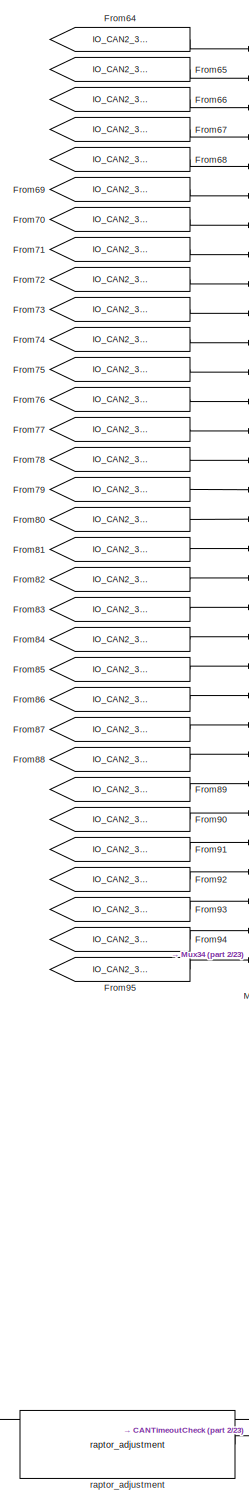
[diagram: IN_STMMVolt - part 1/23, top left region]
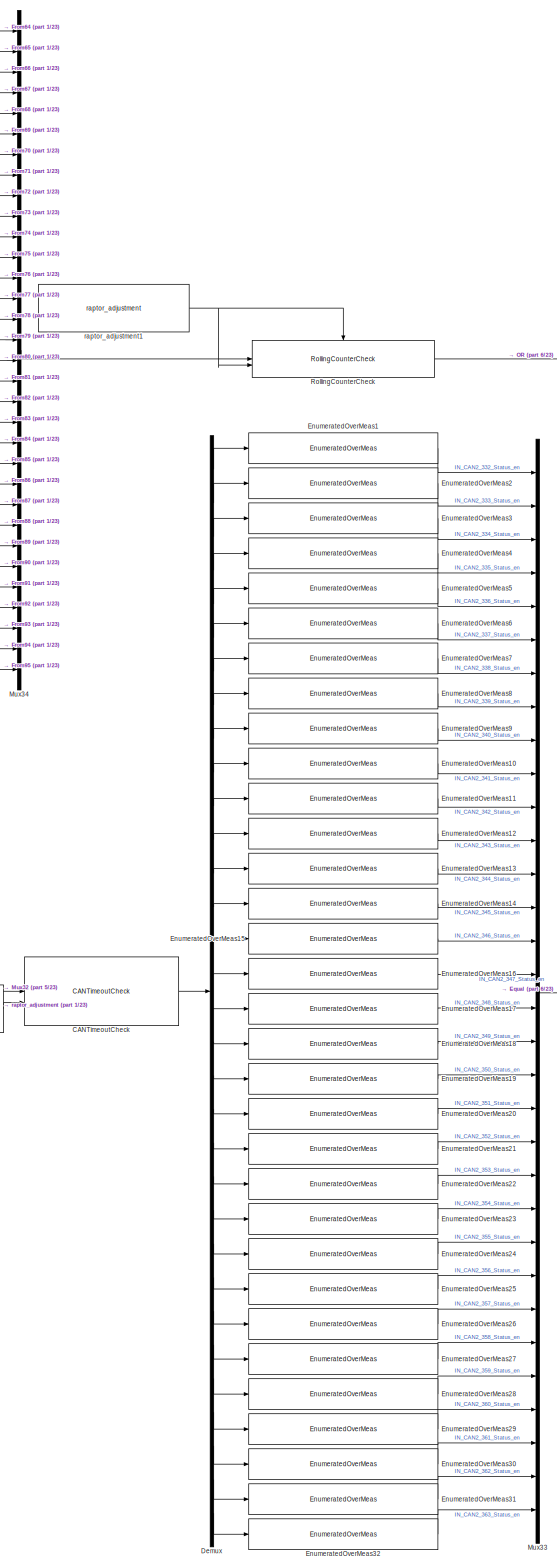
[diagram: IN_STMMVolt - part 2/23, top center region]
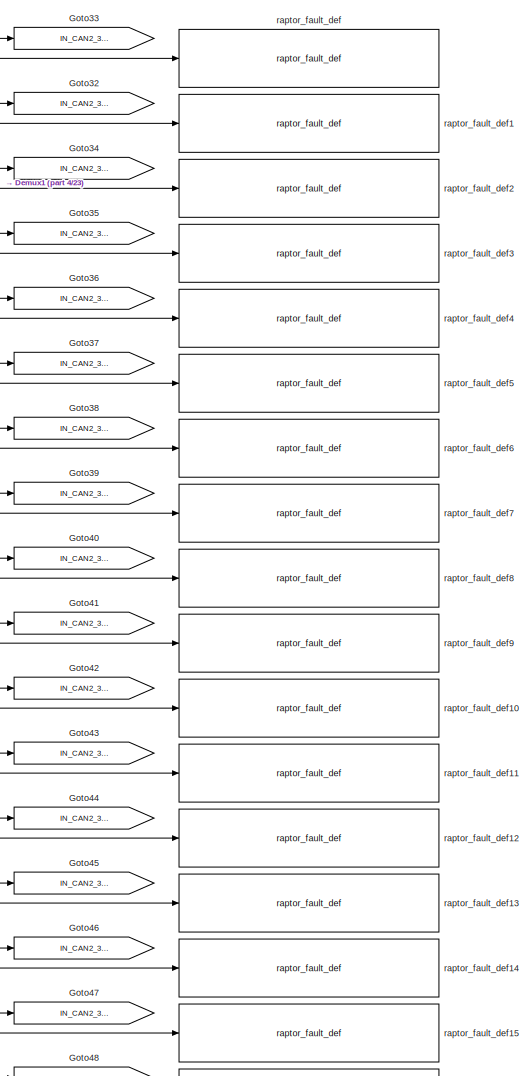
[diagram: IN_STMMVolt - part 3/23, top right region]
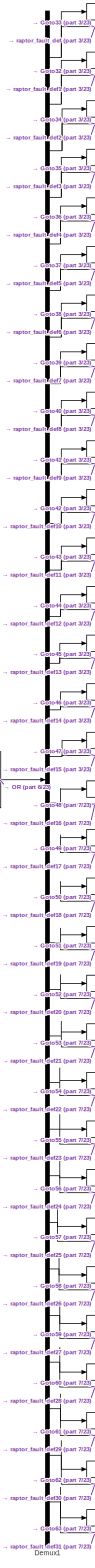
[diagram: IN_STMMVolt - part 4/23, top right region]
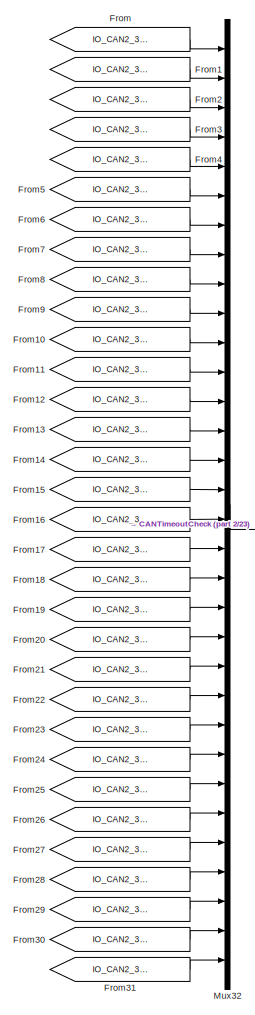
[diagram: IN_STMMVolt - part 5/23, top left region]
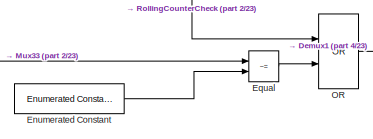
[diagram: IN_STMMVolt - part 6/23, top center region]
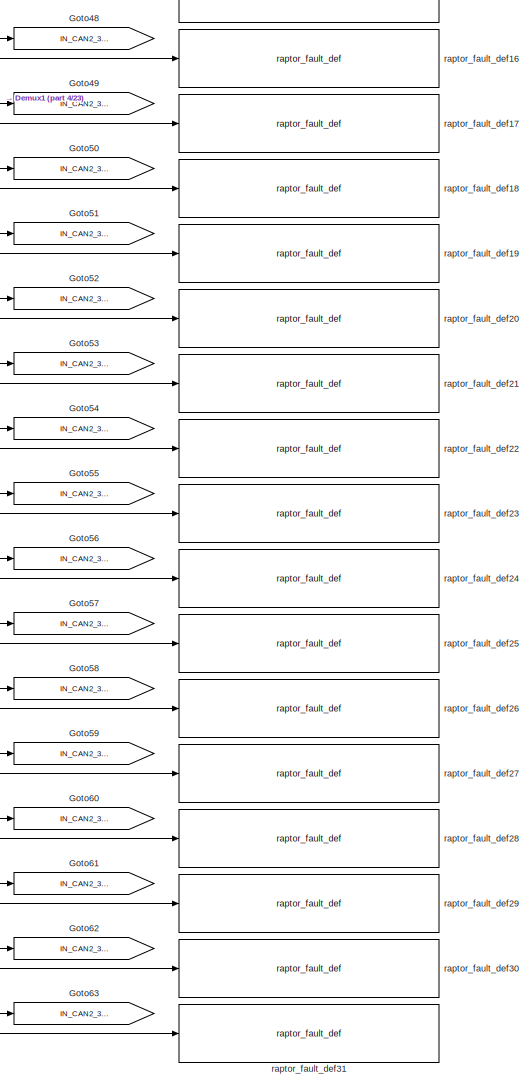
[diagram: IN_STMMVolt - part 7/23, top right region]
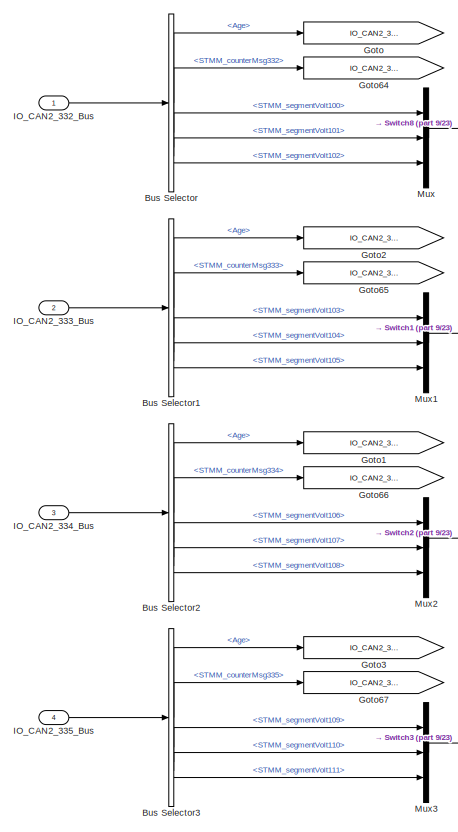
[diagram: IN_STMMVolt - part 8/23, top left region]
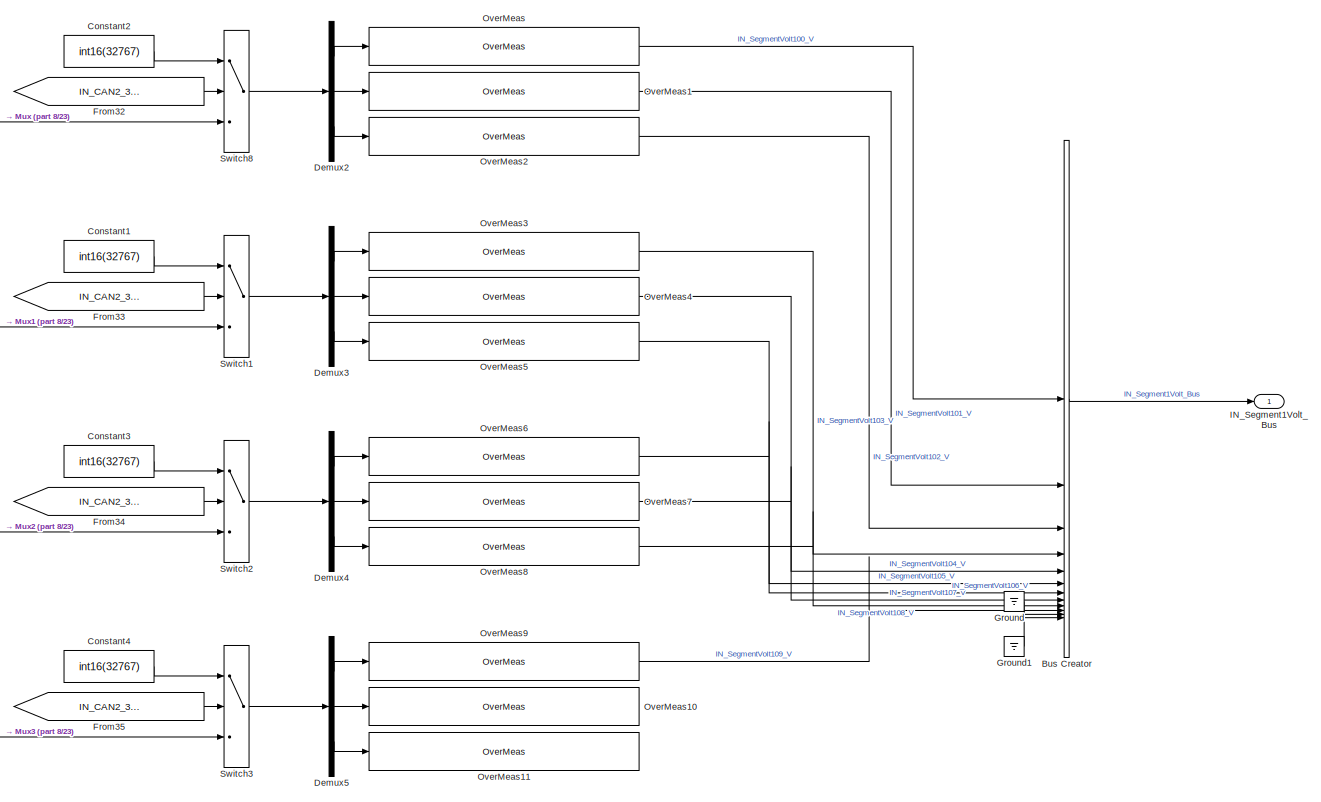
[diagram: IN_STMMVolt - part 9/23, top center region]
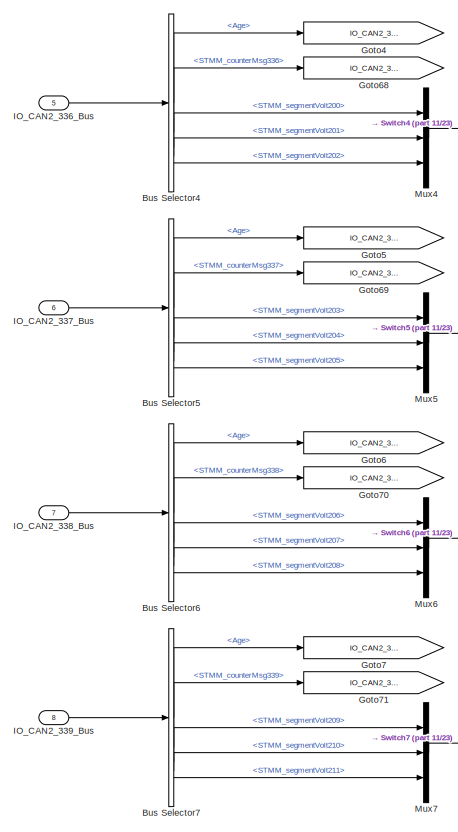
[diagram: IN_STMMVolt - part 10/23, middle left region]
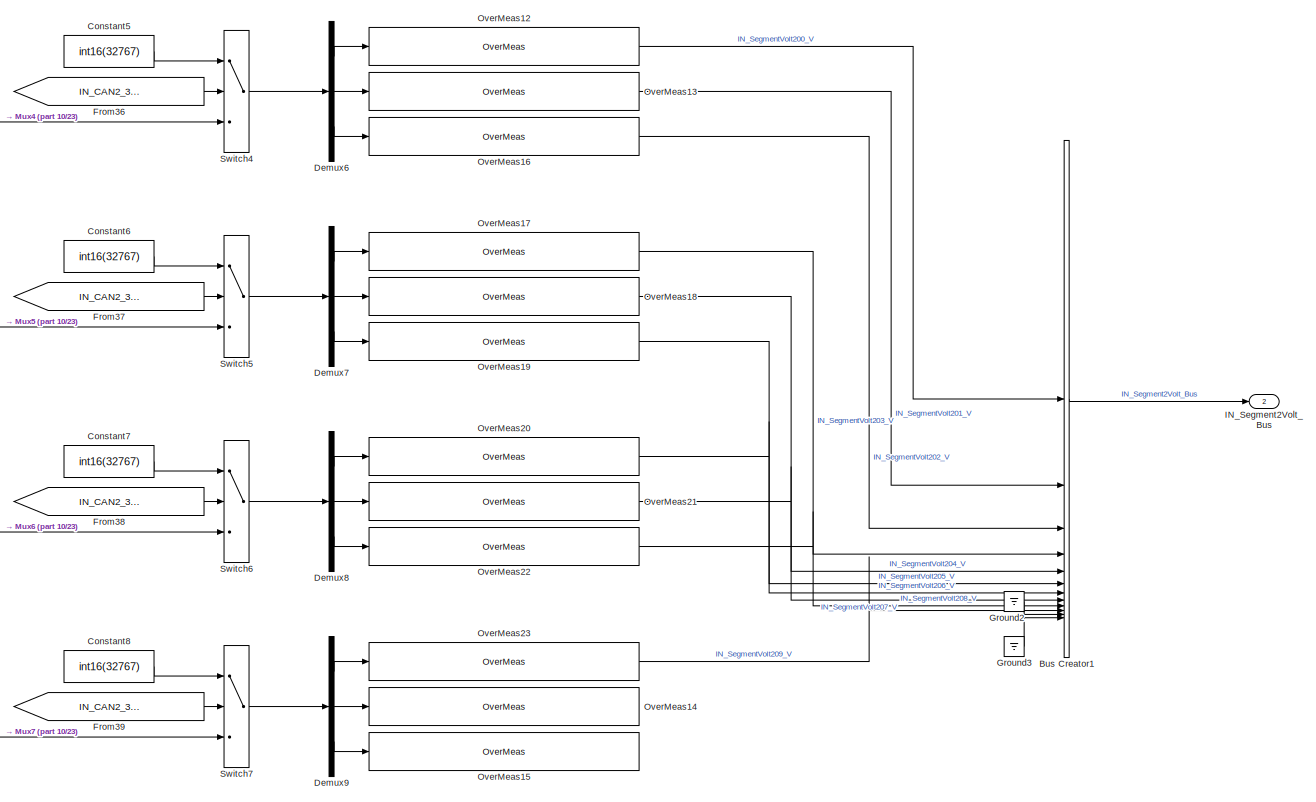
[diagram: IN_STMMVolt - part 11/23, central region]
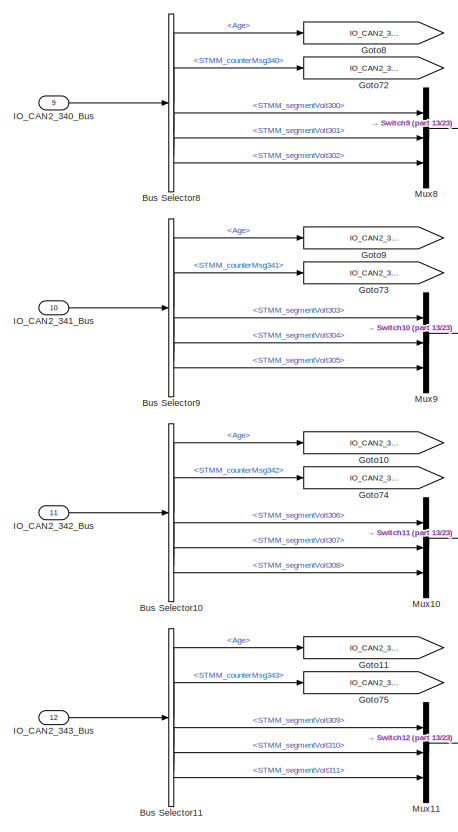
[diagram: IN_STMMVolt - part 12/23, middle left region]
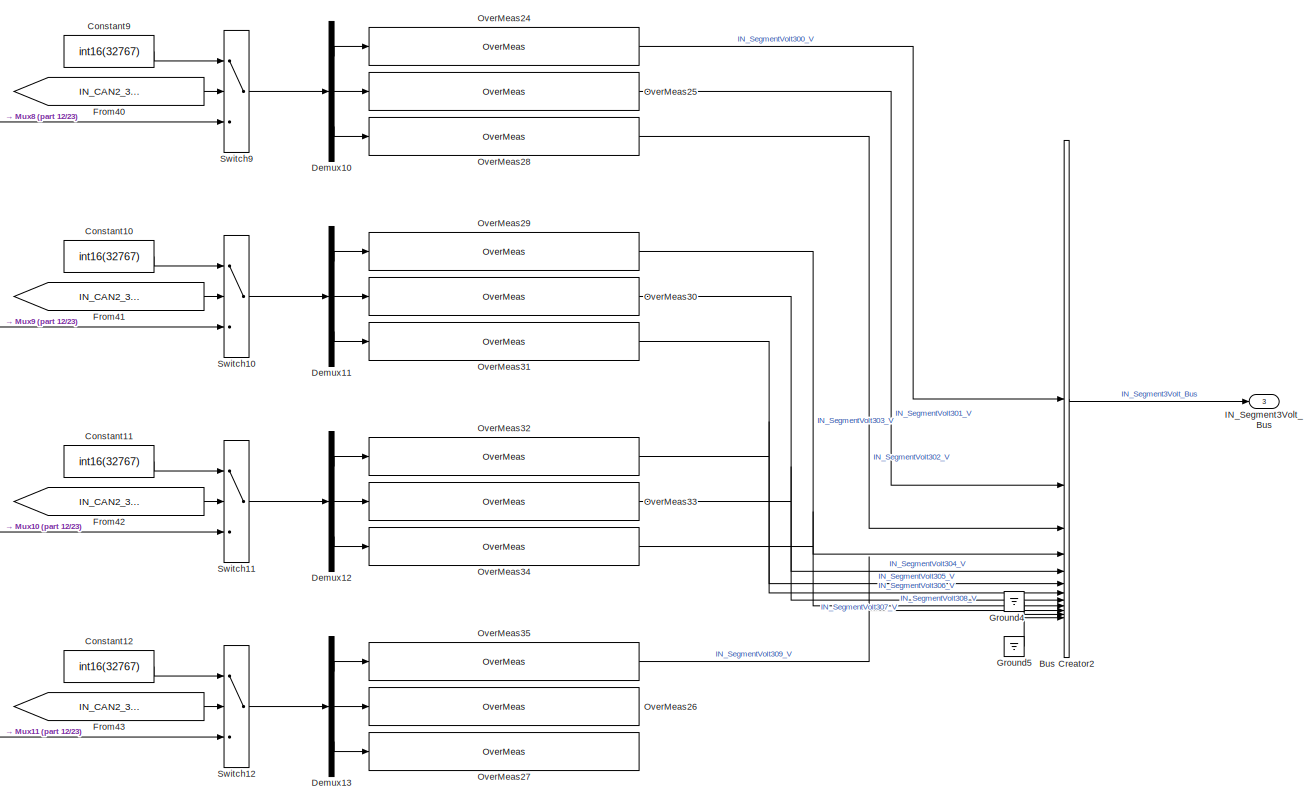
[diagram: IN_STMMVolt - part 13/23, central region]
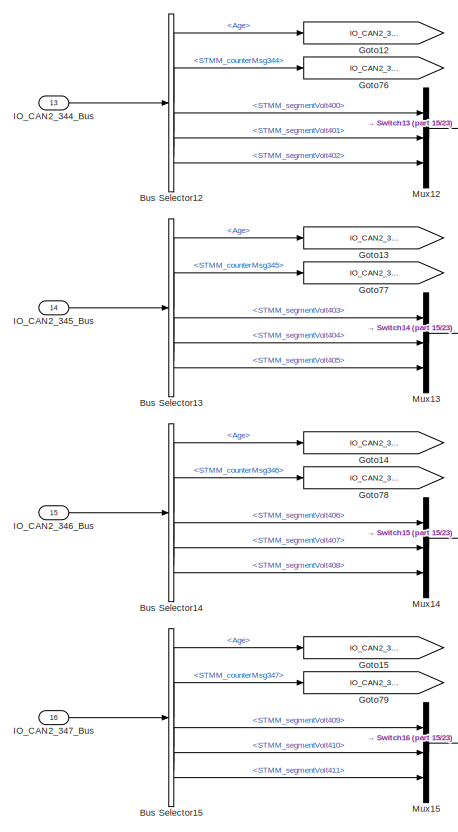
[diagram: IN_STMMVolt - part 14/23, middle left region]
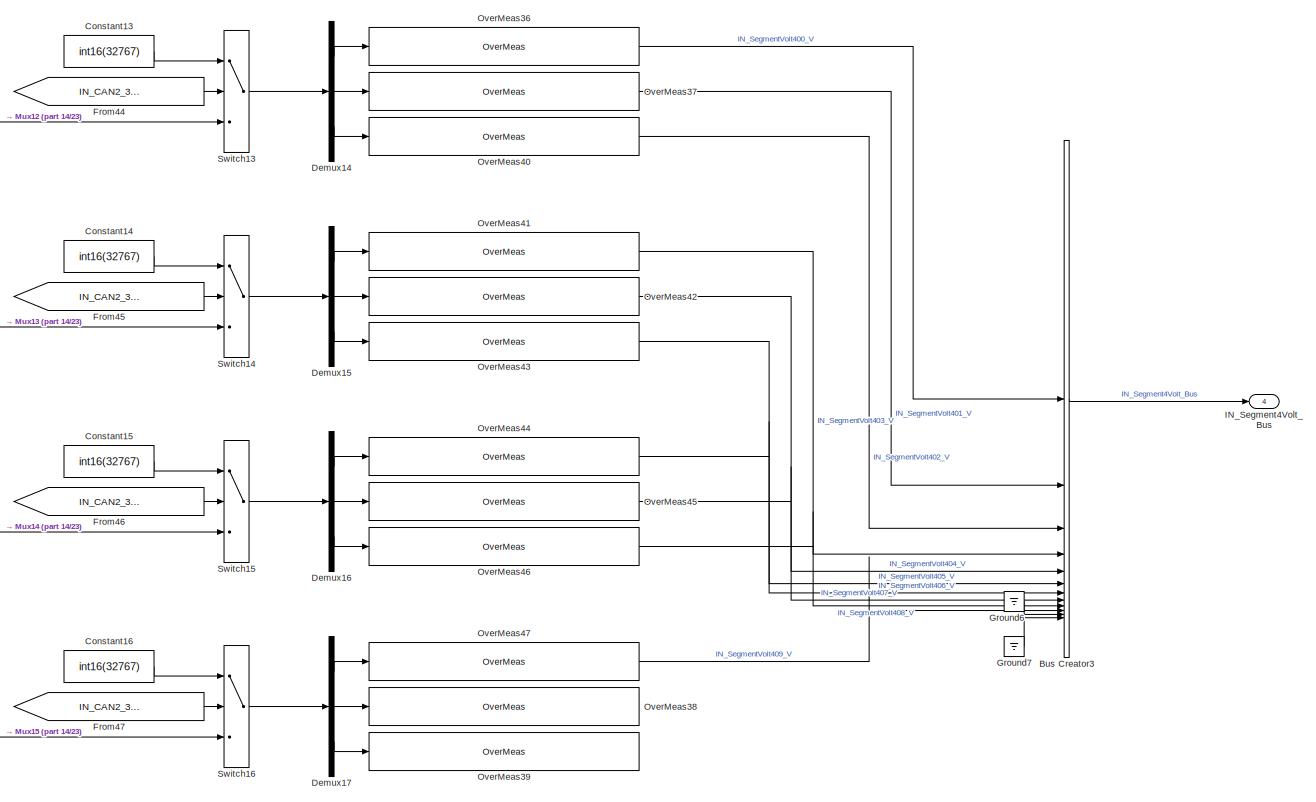
[diagram: IN_STMMVolt - part 15/23, central region]
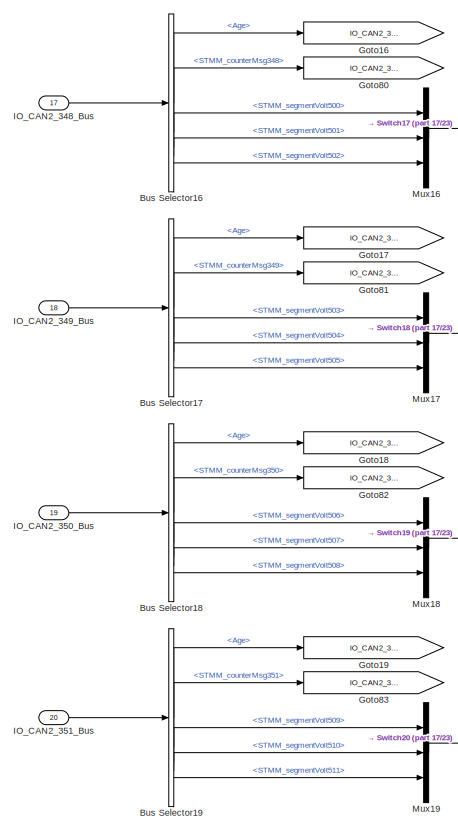
[diagram: IN_STMMVolt - part 16/23, bottom left region]
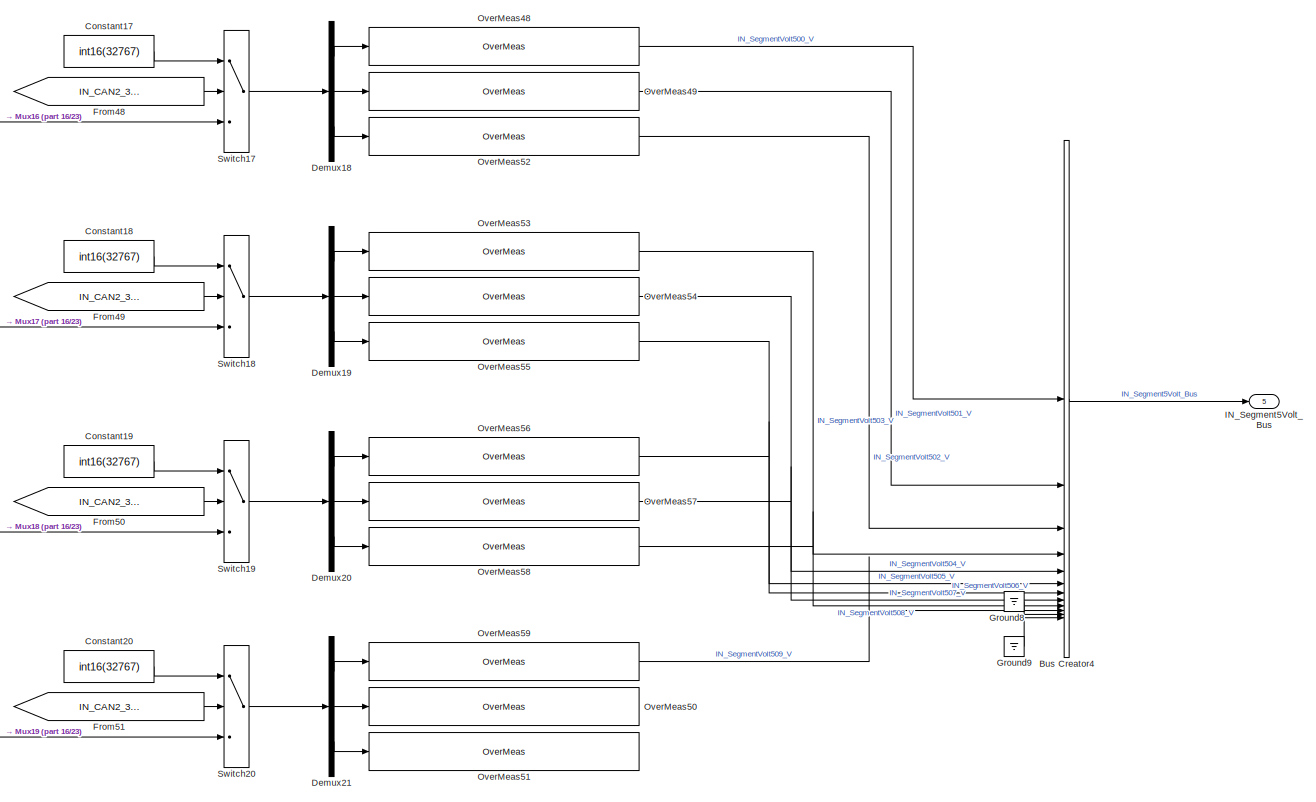
[diagram: IN_STMMVolt - part 17/23, bottom center region]
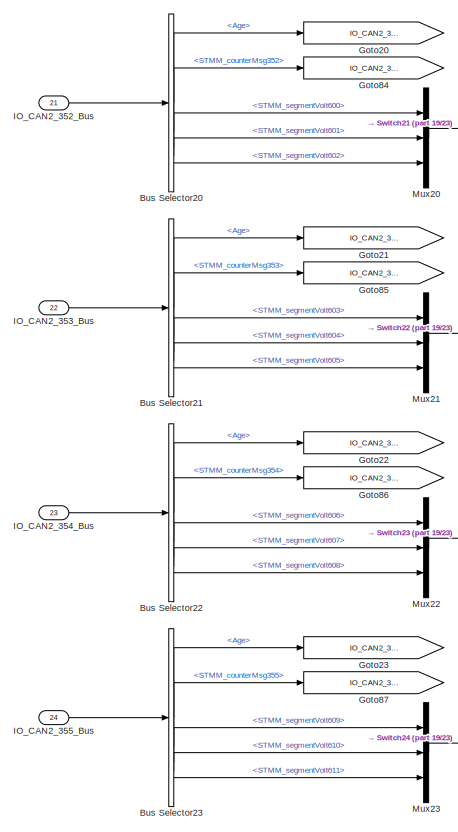
[diagram: IN_STMMVolt - part 18/23, bottom left region]
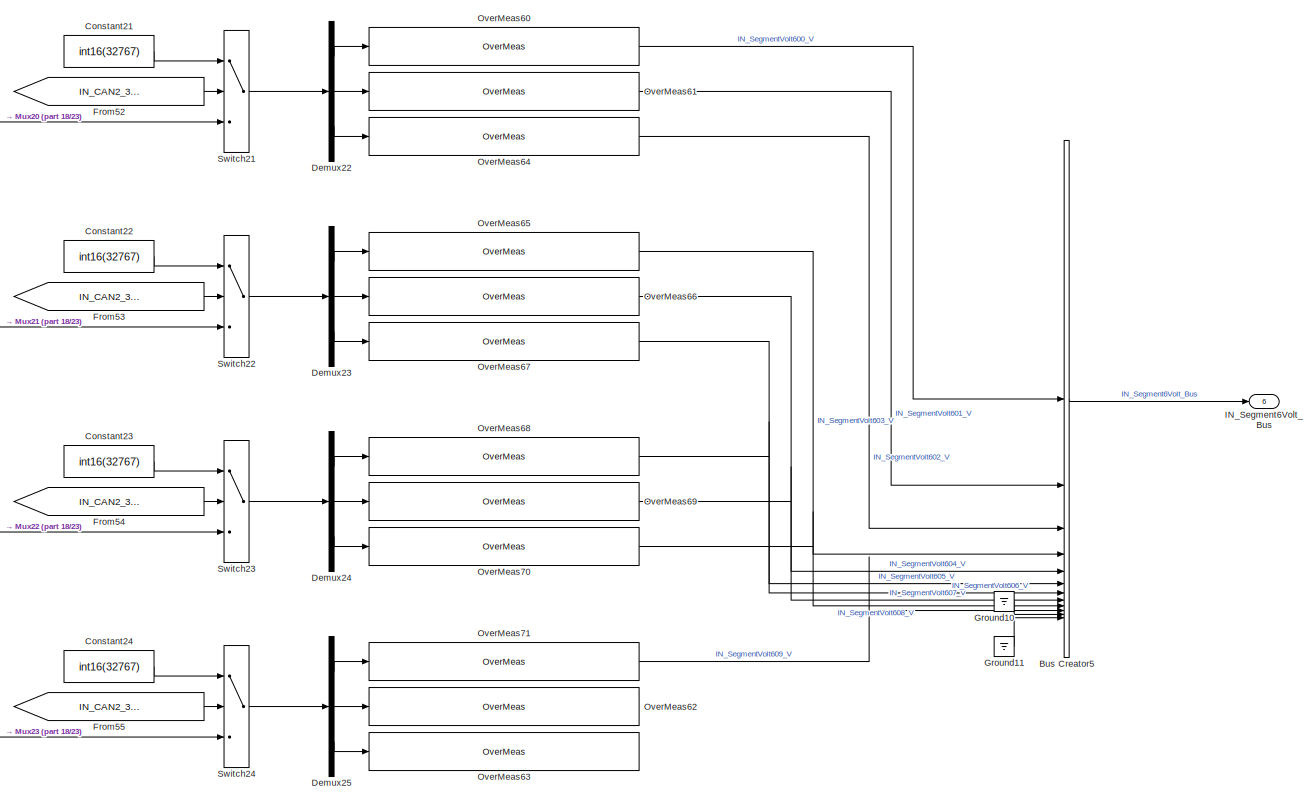
[diagram: IN_STMMVolt - part 19/23, bottom center region]
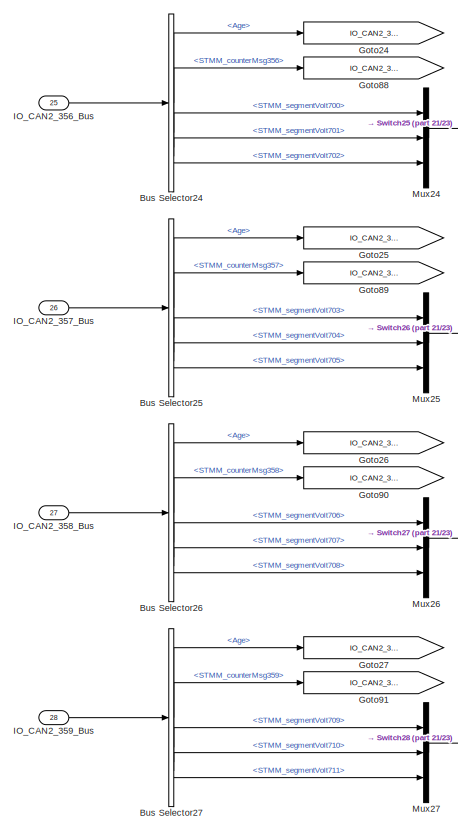
[diagram: IN_STMMVolt - part 20/23, bottom left region]
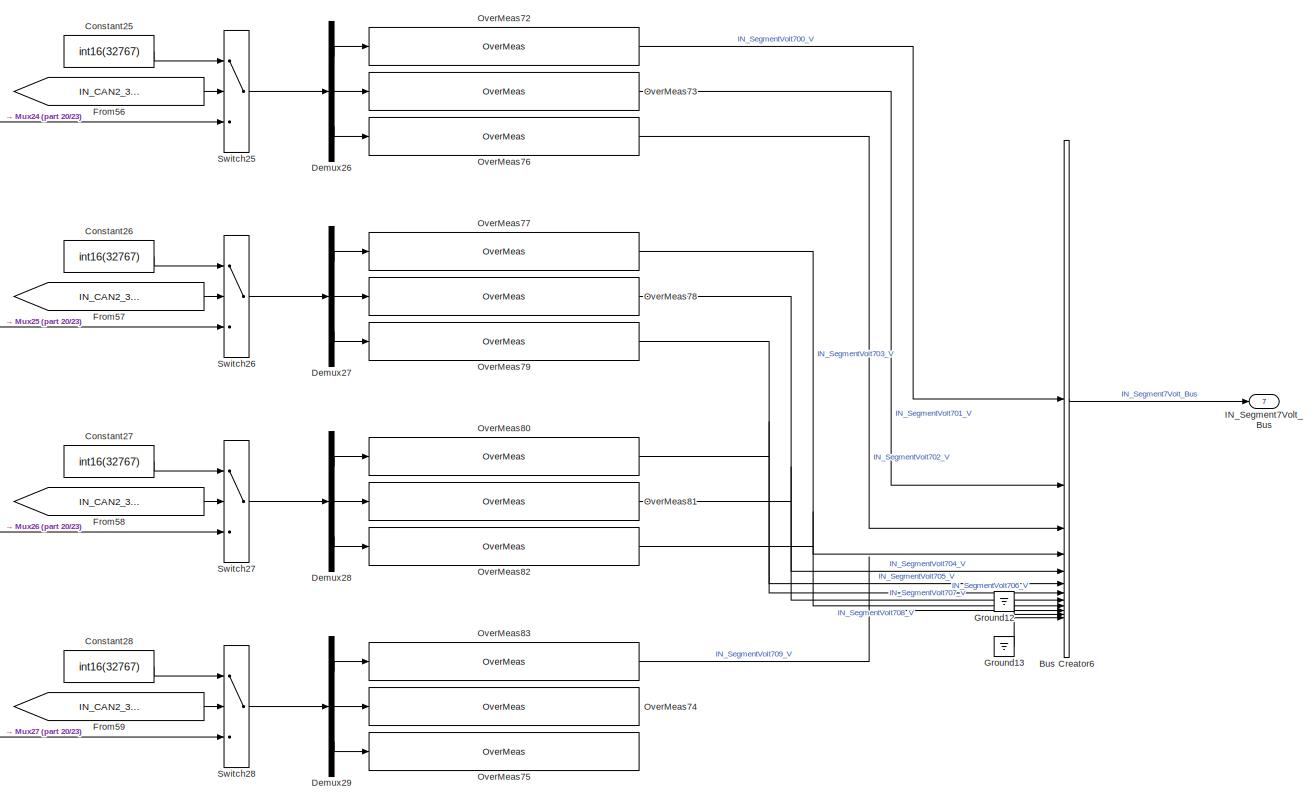
[diagram: IN_STMMVolt - part 21/23, bottom center region]
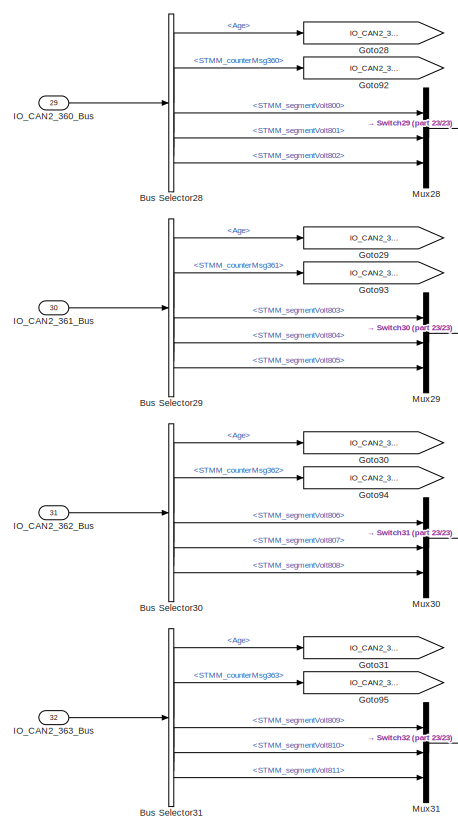
[diagram: IN_STMMVolt - part 22/23, bottom left region]
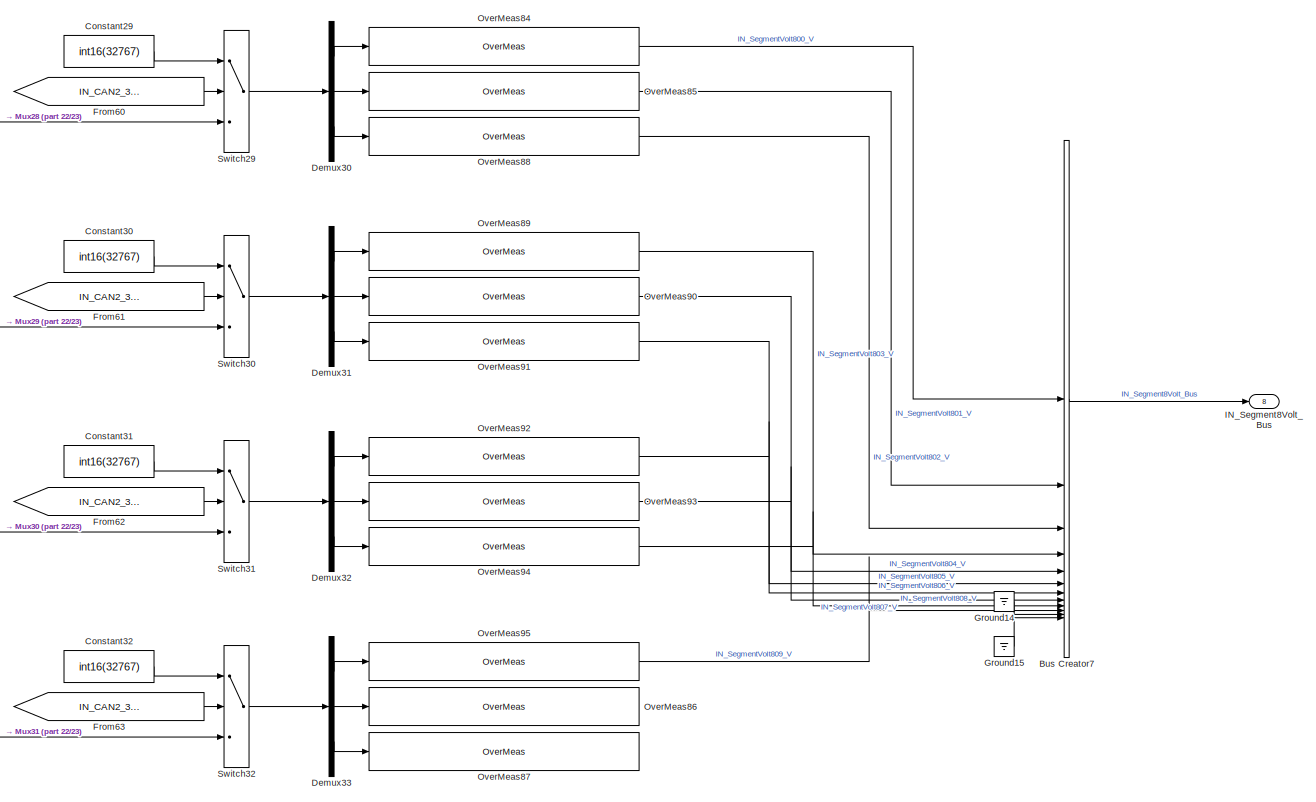
[diagram: IN_STMMVolt - part 23/23, bottom center region]
BLOCK [SubSystem] IN_STMMVolt
BLOCK [BusCreator] IN_STMMVolt/Bus Creator
  DisplayOption = bar
  InheritFromInputs = on
  Inputs = 12
BLOCK [BusCreator] IN_STMMVolt/Bus Creator1
  DisplayOption = bar
  InheritFromInputs = on
  Inputs = 12
BLOCK [BusCreator] IN_STMMVolt/Bus Creator2
  DisplayOption = bar
  InheritFromInputs = on
  Inputs = 12
BLOCK [BusCreator] IN_STMMVolt/Bus Creator3
  DisplayOption = bar
  InheritFromInputs = on
  Inputs = 12
BLOCK [BusCreator] IN_STMMVolt/Bus Creator4
  DisplayOption = bar
  InheritFromInputs = on
  Inputs = 12
BLOCK [BusCreator] IN_STMMVolt/Bus Creator5
  DisplayOption = bar
  InheritFromInputs = on
  Inputs = 12
BLOCK [BusCreator] IN_STMMVolt/Bus Creator6
  DisplayOption = bar
  InheritFromInputs = on
  Inputs = 12
BLOCK [BusCreator] IN_STMMVolt/Bus Creator7
  DisplayOption = bar
  InheritFromInputs = on
  Inputs = 12
BLOCK [BusSelector] IN_STMMVolt/Bus Selector
  OutputSignals = Age,STMM_counterMsg332,STMM_segmentVolt100,STMM_segmentVolt101,STMM_segmentVolt102
BLOCK [BusSelector] IN_STMMVolt/Bus Selector1
  OutputSignals = Age,STMM_counterMsg333,STMM_segmentVolt103,STMM_segmentVolt104,STMM_segmentVolt105
BLOCK [BusSelector] IN_STMMVolt/Bus Selector10
  OutputSignals = Age,STMM_counterMsg342,STMM_segmentVolt306,STMM_segmentVolt307,STMM_segmentVolt308
BLOCK [BusSelector] IN_STMMVolt/Bus Selector11
  OutputSignals = Age,STMM_counterMsg343,STMM_segmentVolt309,STMM_segmentVolt310,STMM_segmentVolt311
BLOCK [BusSelector] IN_STMMVolt/Bus Selector12
  OutputSignals = Age,STMM_counterMsg344,STMM_segmentVolt400,STMM_segmentVolt401,STMM_segmentVolt402
BLOCK [BusSelector] IN_STMMVolt/Bus Selector13
  OutputSignals = Age,STMM_counterMsg345,STMM_segmentVolt403,STMM_segmentVolt404,STMM_segmentVolt405
BLOCK [BusSelector] IN_STMMVolt/Bus Selector14
  OutputSignals = Age,STMM_counterMsg346,STMM_segmentVolt406,STMM_segmentVolt407,STMM_segmentVolt408
BLOCK [BusSelector] IN_STMMVolt/Bus Selector15
  OutputSignals = Age,STMM_counterMsg347,STMM_segmentVolt409,STMM_segmentVolt410,STMM_segmentVolt411
BLOCK [BusSelector] IN_STMMVolt/Bus Selector16
  OutputSignals = Age,STMM_counterMsg348,STMM_segmentVolt500,STMM_segmentVolt501,STMM_segmentVolt502
BLOCK [BusSelector] IN_STMMVolt/Bus Selector17
  OutputSignals = Age,STMM_counterMsg349,STMM_segmentVolt503,STMM_segmentVolt504,STMM_segmentVolt505
BLOCK [BusSelector] IN_STMMVolt/Bus Selector18
  OutputSignals = Age,STMM_counterMsg350,STMM_segmentVolt506,STMM_segmentVolt507,STMM_segmentVolt508
BLOCK [BusSelector] IN_STMMVolt/Bus Selector19
  OutputSignals = Age,STMM_counterMsg351,STMM_segmentVolt509,STMM_segmentVolt510,STMM_segmentVolt511
BLOCK [BusSelector] IN_STMMVolt/Bus Selector2
  OutputSignals = Age,STMM_counterMsg334,STMM_segmentVolt106,STMM_segmentVolt107,STMM_segmentVolt108
BLOCK [BusSelector] IN_STMMVolt/Bus Selector20
  OutputSignals = Age,STMM_counterMsg352,STMM_segmentVolt600,STMM_segmentVolt601,STMM_segmentVolt602
BLOCK [BusSelector] IN_STMMVolt/Bus Selector21
  OutputSignals = Age,STMM_counterMsg353,STMM_segmentVolt603,STMM_segmentVolt604,STMM_segmentVolt605
BLOCK [BusSelector] IN_STMMVolt/Bus Selector22
  OutputSignals = Age,STMM_counterMsg354,STMM_segmentVolt606,STMM_segmentVolt607,STMM_segmentVolt608
BLOCK [BusSelector] IN_STMMVolt/Bus Selector23
  OutputSignals = Age,STMM_counterMsg355,STMM_segmentVolt609,STMM_segmentVolt610,STMM_segmentVolt611
BLOCK [BusSelector] IN_STMMVolt/Bus Selector24
  OutputSignals = Age,STMM_counterMsg356,STMM_segmentVolt700,STMM_segmentVolt701,STMM_segmentVolt702
BLOCK [BusSelector] IN_STMMVolt/Bus Selector25
  OutputSignals = Age,STMM_counterMsg357,STMM_segmentVolt703,STMM_segmentVolt704,STMM_segmentVolt705
BLOCK [BusSelector] IN_STMMVolt/Bus Selector26
  OutputSignals = Age,STMM_counterMsg358,STMM_segmentVolt706,STMM_segmentVolt707,STMM_segmentVolt708
BLOCK [BusSelector] IN_STMMVolt/Bus Selector27
  OutputSignals = Age,STMM_counterMsg359,STMM_segmentVolt709,STMM_segmentVolt710,STMM_segmentVolt711
BLOCK [BusSelector] IN_STMMVolt/Bus Selector28
  OutputSignals = Age,STMM_counterMsg360,STMM_segmentVolt800,STMM_segmentVolt801,STMM_segmentVolt802
BLOCK [BusSelector] IN_STMMVolt/Bus Selector29
  OutputSignals = Age,STMM_counterMsg361,STMM_segmentVolt803,STMM_segmentVolt804,STMM_segmentVolt805
BLOCK [BusSelector] IN_STMMVolt/Bus Selector3
  OutputSignals = Age,STMM_counterMsg335,STMM_segmentVolt109,STMM_segmentVolt110,STMM_segmentVolt111
BLOCK [BusSelector] IN_STMMVolt/Bus Selector30
  OutputSignals = Age,STMM_counterMsg362,STMM_segmentVolt806,STMM_segmentVolt807,STMM_segmentVolt808
BLOCK [BusSelector] IN_STMMVolt/Bus Selector31
  OutputSignals = Age,STMM_counterMsg363,STMM_segmentVolt809,STMM_segmentVolt810,STMM_segmentVolt811
BLOCK [BusSelector] IN_STMMVolt/Bus Selector4
  OutputSignals = Age,STMM_counterMsg336,STMM_segmentVolt200,STMM_segmentVolt201,STMM_segmentVolt202
BLOCK [BusSelector] IN_STMMVolt/Bus Selector5
  OutputSignals = Age,STMM_counterMsg337,STMM_segmentVolt203,STMM_segmentVolt204,STMM_segmentVolt205
BLOCK [BusSelector] IN_STMMVolt/Bus Selector6
  OutputSignals = Age,STMM_counterMsg338,STMM_segmentVolt206,STMM_segmentVolt207,STMM_segmentVolt208
BLOCK [BusSelector] IN_STMMVolt/Bus Selector7
  OutputSignals = Age,STMM_counterMsg339,STMM_segmentVolt209,STMM_segmentVolt210,STMM_segmentVolt211
BLOCK [BusSelector] IN_STMMVolt/Bus Selector8
  OutputSignals = Age,STMM_counterMsg340,STMM_segmentVolt300,STMM_segmentVolt301,STMM_segmentVolt302
BLOCK [BusSelector] IN_STMMVolt/Bus Selector9
  OutputSignals = Age,STMM_counterMsg341,STMM_segmentVolt303,STMM_segmentVolt304,STMM_segmentVolt305
BLOCK [Reference] IN_STMMVolt/CANTimeoutCheck  REF=Utilities/CANTimeoutCheck
  SourceBlock = Utilities/CANTimeoutCheck
BLOCK [Constant] IN_STMMVolt/Constant1
  Value = int16(32767)
BLOCK [Constant] IN_STMMVolt/Constant10
  Value = int16(32767)
BLOCK [Constant] IN_STMMVolt/Constant11
  Value = int16(32767)
BLOCK [Constant] IN_STMMVolt/Constant12
  Value = int16(32767)
BLOCK [Constant] IN_STMMVolt/Constant13
  Value = int16(32767)
BLOCK [Constant] IN_STMMVolt/Constant14
  Value = int16(32767)
BLOCK [Constant] IN_STMMVolt/Constant15
  Value = int16(32767)
BLOCK [Constant] IN_STMMVolt/Constant16
  Value = int16(32767)
BLOCK [Constant] IN_STMMVolt/Constant17
  Value = int16(32767)
BLOCK [Constant] IN_STMMVolt/Constant18
  Value = int16(32767)
BLOCK [Constant] IN_STMMVolt/Constant19
  Value = int16(32767)
BLOCK [Constant] IN_STMMVolt/Constant2
  Value = int16(32767)
BLOCK [Constant] IN_STMMVolt/Constant20
  Value = int16(32767)
BLOCK [Constant] IN_STMMVolt/Constant21
  Value = int16(32767)
BLOCK [Constant] IN_STMMVolt/Constant22
  Value = int16(32767)
BLOCK [Constant] IN_STMMVolt/Constant23
  Value = int16(32767)
BLOCK [Constant] IN_STMMVolt/Constant24
  Value = int16(32767)
BLOCK [Constant] IN_STMMVolt/Constant25
  Value = int16(32767)
BLOCK [Constant] IN_STMMVolt/Constant26
  Value = int16(32767)
BLOCK [Constant] IN_STMMVolt/Constant27
  Value = int16(32767)
BLOCK [Constant] IN_STMMVolt/Constant28
  Value = int16(32767)
BLOCK [Constant] IN_STMMVolt/Constant29
  Value = int16(32767)
BLOCK [Constant] IN_STMMVolt/Constant3
  Value = int16(32767)
BLOCK [Constant] IN_STMMVolt/Constant30
  Value = int16(32767)
BLOCK [Constant] IN_STMMVolt/Constant31
  Value = int16(32767)
BLOCK [Constant] IN_STMMVolt/Constant32
  Value = int16(32767)
BLOCK [Constant] IN_STMMVolt/Constant4
  Value = int16(32767)
BLOCK [Constant] IN_STMMVolt/Constant5
  Value = int16(32767)
BLOCK [Constant] IN_STMMVolt/Constant6
  Value = int16(32767)
BLOCK [Constant] IN_STMMVolt/Constant7
  Value = int16(32767)
BLOCK [Constant] IN_STMMVolt/Constant8
  Value = int16(32767)
BLOCK [Constant] IN_STMMVolt/Constant9
  Value = int16(32767)
BLOCK [Demux] IN_STMMVolt/Demux
  Outputs = 32
BLOCK [Demux] IN_STMMVolt/Demux1
  Outputs = 32
BLOCK [Demux] IN_STMMVolt/Demux10
  Outputs = 3
BLOCK [Demux] IN_STMMVolt/Demux11
  Outputs = 3
BLOCK [Demux] IN_STMMVolt/Demux12
  Outputs = 3
BLOCK [Demux] IN_STMMVolt/Demux13
  Outputs = 3
BLOCK [Demux] IN_STMMVolt/Demux14
  Outputs = 3
BLOCK [Demux] IN_STMMVolt/Demux15
  Outputs = 3
BLOCK [Demux] IN_STMMVolt/Demux16
  Outputs = 3
BLOCK [Demux] IN_STMMVolt/Demux17
  Outputs = 3
BLOCK [Demux] IN_STMMVolt/Demux18
  Outputs = 3
BLOCK [Demux] IN_STMMVolt/Demux19
  Outputs = 3
BLOCK [Demux] IN_STMMVolt/Demux2
  Outputs = 3
BLOCK [Demux] IN_STMMVolt/Demux20
  Outputs = 3
BLOCK [Demux] IN_STMMVolt/Demux21
  Outputs = 3
BLOCK [Demux] IN_STMMVolt/Demux22
  Outputs = 3
BLOCK [Demux] IN_STMMVolt/Demux23
  Outputs = 3
BLOCK [Demux] IN_STMMVolt/Demux24
  Outputs = 3
BLOCK [Demux] IN_STMMVolt/Demux25
  Outputs = 3
BLOCK [Demux] IN_STMMVolt/Demux26
  Outputs = 3
BLOCK [Demux] IN_STMMVolt/Demux27
  Outputs = 3
BLOCK [Demux] IN_STMMVolt/Demux28
  Outputs = 3
BLOCK [Demux] IN_STMMVolt/Demux29
  Outputs = 3
BLOCK [Demux] IN_STMMVolt/Demux3
  Outputs = 3
BLOCK [Demux] IN_STMMVolt/Demux30
  Outputs = 3
BLOCK [Demux] IN_STMMVolt/Demux31
  Outputs = 3
BLOCK [Demux] IN_STMMVolt/Demux32
  Outputs = 3
BLOCK [Demux] IN_STMMVolt/Demux33
  Outputs = 3
BLOCK [Demux] IN_STMMVolt/Demux4
  Outputs = 3
BLOCK [Demux] IN_STMMVolt/Demux5
  Outputs = 3
BLOCK [Demux] IN_STMMVolt/Demux6
  Outputs = 3
BLOCK [Demux] IN_STMMVolt/Demux7
  Outputs = 3
BLOCK [Demux] IN_STMMVolt/Demux8
  Outputs = 3
BLOCK [Demux] IN_STMMVolt/Demux9
  Outputs = 3
BLOCK [Reference] IN_STMMVolt/Enumerated Constant  REF=simulink/Sources/Enumerated
Constant
  SourceBlock = simulink/Sources/Enumerated\nConstant
  SourceType = Enumerated Constant
BLOCK [Reference] IN_STMMVolt/EnumeratedOverMeas1  REF=Utilities/EnumeratedOverMeas
  SourceBlock = Utilities/EnumeratedOverMeas
BLOCK [Reference] IN_STMMVolt/EnumeratedOverMeas10  REF=Utilities/EnumeratedOverMeas
  SourceBlock = Utilities/EnumeratedOverMeas
BLOCK [Reference] IN_STMMVolt/EnumeratedOverMeas11  REF=Utilities/EnumeratedOverMeas
  SourceBlock = Utilities/EnumeratedOverMeas
BLOCK [Reference] IN_STMMVolt/EnumeratedOverMeas12  REF=Utilities/EnumeratedOverMeas
  SourceBlock = Utilities/EnumeratedOverMeas
BLOCK [Reference] IN_STMMVolt/EnumeratedOverMeas13  REF=Utilities/EnumeratedOverMeas
  SourceBlock = Utilities/EnumeratedOverMeas
BLOCK [Reference] IN_STMMVolt/EnumeratedOverMeas14  REF=Utilities/EnumeratedOverMeas
  SourceBlock = Utilities/EnumeratedOverMeas
BLOCK [Reference] IN_STMMVolt/EnumeratedOverMeas15  REF=Utilities/EnumeratedOverMeas
  SourceBlock = Utilities/EnumeratedOverMeas
BLOCK [Reference] IN_STMMVolt/EnumeratedOverMeas16  REF=Utilities/EnumeratedOverMeas
  SourceBlock = Utilities/EnumeratedOverMeas
BLOCK [Reference] IN_STMMVolt/EnumeratedOverMeas17  REF=Utilities/EnumeratedOverMeas
  SourceBlock = Utilities/EnumeratedOverMeas
BLOCK [Reference] IN_STMMVolt/EnumeratedOverMeas18  REF=Utilities/EnumeratedOverMeas
  SourceBlock = Utilities/EnumeratedOverMeas
BLOCK [Reference] IN_STMMVolt/EnumeratedOverMeas19  REF=Utilities/EnumeratedOverMeas
  SourceBlock = Utilities/EnumeratedOverMeas
BLOCK [Reference] IN_STMMVolt/EnumeratedOverMeas2  REF=Utilities/EnumeratedOverMeas
  SourceBlock = Utilities/EnumeratedOverMeas
BLOCK [Reference] IN_STMMVolt/EnumeratedOverMeas20  REF=Utilities/EnumeratedOverMeas
  SourceBlock = Utilities/EnumeratedOverMeas
BLOCK [Reference] IN_STMMVolt/EnumeratedOverMeas21  REF=Utilities/EnumeratedOverMeas
  SourceBlock = Utilities/EnumeratedOverMeas
BLOCK [Reference] IN_STMMVolt/EnumeratedOverMeas22  REF=Utilities/EnumeratedOverMeas
  SourceBlock = Utilities/EnumeratedOverMeas
BLOCK [Reference] IN_STMMVolt/EnumeratedOverMeas23  REF=Utilities/EnumeratedOverMeas
  SourceBlock = Utilities/EnumeratedOverMeas
BLOCK [Reference] IN_STMMVolt/EnumeratedOverMeas24  REF=Utilities/EnumeratedOverMeas
  SourceBlock = Utilities/EnumeratedOverMeas
BLOCK [Reference] IN_STMMVolt/EnumeratedOverMeas25  REF=Utilities/EnumeratedOverMeas
  SourceBlock = Utilities/EnumeratedOverMeas
BLOCK [Reference] IN_STMMVolt/EnumeratedOverMeas26  REF=Utilities/EnumeratedOverMeas
  SourceBlock = Utilities/EnumeratedOverMeas
BLOCK [Reference] IN_STMMVolt/EnumeratedOverMeas27  REF=Utilities/EnumeratedOverMeas
  SourceBlock = Utilities/EnumeratedOverMeas
BLOCK [Reference] IN_STMMVolt/EnumeratedOverMeas28  REF=Utilities/EnumeratedOverMeas
  SourceBlock = Utilities/EnumeratedOverMeas
BLOCK [Reference] IN_STMMVolt/EnumeratedOverMeas29  REF=Utilities/EnumeratedOverMeas
  SourceBlock = Utilities/EnumeratedOverMeas
BLOCK [Reference] IN_STMMVolt/EnumeratedOverMeas3  REF=Utilities/EnumeratedOverMeas
  SourceBlock = Utilities/EnumeratedOverMeas
BLOCK [Reference] IN_STMMVolt/EnumeratedOverMeas30  REF=Utilities/EnumeratedOverMeas
  SourceBlock = Utilities/EnumeratedOverMeas
BLOCK [Reference] IN_STMMVolt/EnumeratedOverMeas31  REF=Utilities/EnumeratedOverMeas
  SourceBlock = Utilities/EnumeratedOverMeas
BLOCK [Reference] IN_STMMVolt/EnumeratedOverMeas32  REF=Utilities/EnumeratedOverMeas
  SourceBlock = Utilities/EnumeratedOverMeas
BLOCK [Reference] IN_STMMVolt/EnumeratedOverMeas4  REF=Utilities/EnumeratedOverMeas
  SourceBlock = Utilities/EnumeratedOverMeas
BLOCK [Reference] IN_STMMVolt/EnumeratedOverMeas5  REF=Utilities/EnumeratedOverMeas
  SourceBlock = Utilities/EnumeratedOverMeas
BLOCK [Reference] IN_STMMVolt/EnumeratedOverMeas6  REF=Utilities/EnumeratedOverMeas
  SourceBlock = Utilities/EnumeratedOverMeas
BLOCK [Reference] IN_STMMVolt/EnumeratedOverMeas7  REF=Utilities/EnumeratedOverMeas
  SourceBlock = Utilities/EnumeratedOverMeas
BLOCK [Reference] IN_STMMVolt/EnumeratedOverMeas8  REF=Utilities/EnumeratedOverMeas
  SourceBlock = Utilities/EnumeratedOverMeas
BLOCK [Reference] IN_STMMVolt/EnumeratedOverMeas9  REF=Utilities/EnumeratedOverMeas
  SourceBlock = Utilities/EnumeratedOverMeas
BLOCK [RelationalOperator] IN_STMMVolt/Equal
  InputSameDT = off
  Operator = ~=
  OutDataTypeStr = boolean
  RndMeth = Simplest
BLOCK [From] IN_STMMVolt/From
  GotoTag = IO_CAN2_332_Age
BLOCK [From] IN_STMMVolt/From1
  GotoTag = IO_CAN2_333_Age
BLOCK [From] IN_STMMVolt/From10
  GotoTag = IO_CAN2_342_Age
BLOCK [From] IN_STMMVolt/From11
  GotoTag = IO_CAN2_343_Age
BLOCK [From] IN_STMMVolt/From12
  GotoTag = IO_CAN2_344_Age
BLOCK [From] IN_STMMVolt/From13
  GotoTag = IO_CAN2_345_Age
BLOCK [From] IN_STMMVolt/From14
  GotoTag = IO_CAN2_346_Age
BLOCK [From] IN_STMMVolt/From15
  GotoTag = IO_CAN2_347_Age
BLOCK [From] IN_STMMVolt/From16
  GotoTag = IO_CAN2_348_Age
BLOCK [From] IN_STMMVolt/From17
  GotoTag = IO_CAN2_349_Age
BLOCK [From] IN_STMMVolt/From18
  GotoTag = IO_CAN2_350_Age
BLOCK [From] IN_STMMVolt/From19
  GotoTag = IO_CAN2_351_Age
BLOCK [From] IN_STMMVolt/From2
  GotoTag = IO_CAN2_334_Age
BLOCK [From] IN_STMMVolt/From20
  GotoTag = IO_CAN2_352_Age
BLOCK [From] IN_STMMVolt/From21
  GotoTag = IO_CAN2_353_Age
BLOCK [From] IN_STMMVolt/From22
  GotoTag = IO_CAN2_354_Age
BLOCK [From] IN_STMMVolt/From23
  GotoTag = IO_CAN2_355_Age
BLOCK [From] IN_STMMVolt/From24
  GotoTag = IO_CAN2_356_Age
BLOCK [From] IN_STMMVolt/From25
  GotoTag = IO_CAN2_357_Age
BLOCK [From] IN_STMMVolt/From26
  GotoTag = IO_CAN2_358_Age
BLOCK [From] IN_STMMVolt/From27
  GotoTag = IO_CAN2_359_Age
BLOCK [From] IN_STMMVolt/From28
  GotoTag = IO_CAN2_360_Age
BLOCK [From] IN_STMMVolt/From29
  GotoTag = IO_CAN2_361_Age
BLOCK [From] IN_STMMVolt/From3
  GotoTag = IO_CAN2_335_Age
BLOCK [From] IN_STMMVolt/From30
  GotoTag = IO_CAN2_362_Age
BLOCK [From] IN_STMMVolt/From31
  GotoTag = IO_CAN2_363_Age
BLOCK [From] IN_STMMVolt/From32
  GotoTag = IN_CAN2_332_Fault
BLOCK [From] IN_STMMVolt/From33
  GotoTag = IN_CAN2_333_Fault
BLOCK [From] IN_STMMVolt/From34
  GotoTag = IN_CAN2_334_Fault
BLOCK [From] IN_STMMVolt/From35
  GotoTag = IN_CAN2_335_Fault
BLOCK [From] IN_STMMVolt/From36
  GotoTag = IN_CAN2_336_Fault
BLOCK [From] IN_STMMVolt/From37
  GotoTag = IN_CAN2_337_Fault
BLOCK [From] IN_STMMVolt/From38
  GotoTag = IN_CAN2_338_Fault
BLOCK [From] IN_STMMVolt/From39
  GotoTag = IN_CAN2_339_Fault
BLOCK [From] IN_STMMVolt/From4
  GotoTag = IO_CAN2_336_Age
BLOCK [From] IN_STMMVolt/From40
  GotoTag = IN_CAN2_340_Fault
BLOCK [From] IN_STMMVolt/From41
  GotoTag = IN_CAN2_341_Fault
BLOCK [From] IN_STMMVolt/From42
  GotoTag = IN_CAN2_342_Fault
BLOCK [From] IN_STMMVolt/From43
  GotoTag = IN_CAN2_343_Fault
BLOCK [From] IN_STMMVolt/From44
  GotoTag = IN_CAN2_344_Fault
BLOCK [From] IN_STMMVolt/From45
  GotoTag = IN_CAN2_345_Fault
BLOCK [From] IN_STMMVolt/From46
  GotoTag = IN_CAN2_346_Fault
BLOCK [From] IN_STMMVolt/From47
  GotoTag = IN_CAN2_347_Fault
BLOCK [From] IN_STMMVolt/From48
  GotoTag = IN_CAN2_348_Fault
BLOCK [From] IN_STMMVolt/From49
  GotoTag = IN_CAN2_349_Fault
BLOCK [From] IN_STMMVolt/From5
  GotoTag = IO_CAN2_337_Age
BLOCK [From] IN_STMMVolt/From50
  GotoTag = IN_CAN2_350_Fault
BLOCK [From] IN_STMMVolt/From51
  GotoTag = IN_CAN2_351_Fault
BLOCK [From] IN_STMMVolt/From52
  GotoTag = IN_CAN2_352_Fault
BLOCK [From] IN_STMMVolt/From53
  GotoTag = IN_CAN2_353_Fault
BLOCK [From] IN_STMMVolt/From54
  GotoTag = IN_CAN2_354_Fault
BLOCK [From] IN_STMMVolt/From55
  GotoTag = IN_CAN2_355_Fault
BLOCK [From] IN_STMMVolt/From56
  GotoTag = IN_CAN2_356_Fault
BLOCK [From] IN_STMMVolt/From57
  GotoTag = IN_CAN2_357_Fault
BLOCK [From] IN_STMMVolt/From58
  GotoTag = IN_CAN2_358_Fault
BLOCK [From] IN_STMMVolt/From59
  GotoTag = IN_CAN2_359_Fault
BLOCK [From] IN_STMMVolt/From6
  GotoTag = IO_CAN2_338_Age
BLOCK [From] IN_STMMVolt/From60
  GotoTag = IN_CAN2_360_Fault
BLOCK [From] IN_STMMVolt/From61
  GotoTag = IN_CAN2_361_Fault
BLOCK [From] IN_STMMVolt/From62
  GotoTag = IN_CAN2_362_Fault
BLOCK [From] IN_STMMVolt/From63
  GotoTag = IN_CAN2_363_Fault
BLOCK [From] IN_STMMVolt/From64
  GotoTag = IO_CAN2_332_cnt
BLOCK [From] IN_STMMVolt/From65
  GotoTag = IO_CAN2_333_cnt
BLOCK [From] IN_STMMVolt/From66
  GotoTag = IO_CAN2_334_cnt
BLOCK [From] IN_STMMVolt/From67
  GotoTag = IO_CAN2_335_cnt
BLOCK [From] IN_STMMVolt/From68
  GotoTag = IO_CAN2_336_cnt
BLOCK [From] IN_STMMVolt/From69
  GotoTag = IO_CAN2_337_cnt
BLOCK [From] IN_STMMVolt/From7
  GotoTag = IO_CAN2_339_Age
BLOCK [From] IN_STMMVolt/From70
  GotoTag = IO_CAN2_338_cnt
BLOCK [From] IN_STMMVolt/From71
  GotoTag = IO_CAN2_339_cnt
BLOCK [From] IN_STMMVolt/From72
  GotoTag = IO_CAN2_340_cnt
BLOCK [From] IN_STMMVolt/From73
  GotoTag = IO_CAN2_341_cnt
BLOCK [From] IN_STMMVolt/From74
  GotoTag = IO_CAN2_342_cnt
BLOCK [From] IN_STMMVolt/From75
  GotoTag = IO_CAN2_343_cnt
BLOCK [From] IN_STMMVolt/From76
  GotoTag = IO_CAN2_344_cnt
BLOCK [From] IN_STMMVolt/From77
  GotoTag = IO_CAN2_345_cnt
BLOCK [From] IN_STMMVolt/From78
  GotoTag = IO_CAN2_346_cnt
BLOCK [From] IN_STMMVolt/From79
  GotoTag = IO_CAN2_347_cnt
BLOCK [From] IN_STMMVolt/From8
  GotoTag = IO_CAN2_340_Age
BLOCK [From] IN_STMMVolt/From80
  GotoTag = IO_CAN2_348_cnt
BLOCK [From] IN_STMMVolt/From81
  GotoTag = IO_CAN2_349_cnt
BLOCK [From] IN_STMMVolt/From82
  GotoTag = IO_CAN2_350_cnt
BLOCK [From] IN_STMMVolt/From83
  GotoTag = IO_CAN2_351_cnt
BLOCK [From] IN_STMMVolt/From84
  GotoTag = IO_CAN2_352_cnt
BLOCK [From] IN_STMMVolt/From85
  GotoTag = IO_CAN2_353_cnt
BLOCK [From] IN_STMMVolt/From86
  GotoTag = IO_CAN2_354_cnt
BLOCK [From] IN_STMMVolt/From87
  GotoTag = IO_CAN2_355_cnt
BLOCK [From] IN_STMMVolt/From88
  GotoTag = IO_CAN2_356_cnt
BLOCK [From] IN_STMMVolt/From89
  GotoTag = IO_CAN2_357_cnt
BLOCK [From] IN_STMMVolt/From9
  GotoTag = IO_CAN2_341_Age
BLOCK [From] IN_STMMVolt/From90
  GotoTag = IO_CAN2_358_cnt
BLOCK [From] IN_STMMVolt/From91
  GotoTag = IO_CAN2_359_cnt
BLOCK [From] IN_STMMVolt/From92
  GotoTag = IO_CAN2_360_cnt
BLOCK [From] IN_STMMVolt/From93
  GotoTag = IO_CAN2_361_cnt
BLOCK [From] IN_STMMVolt/From94
  GotoTag = IO_CAN2_362_cnt
BLOCK [From] IN_STMMVolt/From95
  GotoTag = IO_CAN2_363_cnt
BLOCK [Goto] IN_STMMVolt/Goto
  GotoTag = IO_CAN2_332_Age
BLOCK [Goto] IN_STMMVolt/Goto1
  GotoTag = IO_CAN2_334_Age
BLOCK [Goto] IN_STMMVolt/Goto10
  GotoTag = IO_CAN2_342_Age
BLOCK [Goto] IN_STMMVolt/Goto11
  GotoTag = IO_CAN2_343_Age
BLOCK [Goto] IN_STMMVolt/Goto12
  GotoTag = IO_CAN2_344_Age
BLOCK [Goto] IN_STMMVolt/Goto13
  GotoTag = IO_CAN2_345_Age
BLOCK [Goto] IN_STMMVolt/Goto14
  GotoTag = IO_CAN2_346_Age
BLOCK [Goto] IN_STMMVolt/Goto15
  GotoTag = IO_CAN2_347_Age
BLOCK [Goto] IN_STMMVolt/Goto16
  GotoTag = IO_CAN2_348_Age
BLOCK [Goto] IN_STMMVolt/Goto17
  GotoTag = IO_CAN2_349_Age
BLOCK [Goto] IN_STMMVolt/Goto18
  GotoTag = IO_CAN2_350_Age
BLOCK [Goto] IN_STMMVolt/Goto19
  GotoTag = IO_CAN2_351_Age
BLOCK [Goto] IN_STMMVolt/Goto2
  GotoTag = IO_CAN2_333_Age
BLOCK [Goto] IN_STMMVolt/Goto20
  GotoTag = IO_CAN2_352_Age
BLOCK [Goto] IN_STMMVolt/Goto21
  GotoTag = IO_CAN2_353_Age
BLOCK [Goto] IN_STMMVolt/Goto22
  GotoTag = IO_CAN2_354_Age
BLOCK [Goto] IN_STMMVolt/Goto23
  GotoTag = IO_CAN2_355_Age
BLOCK [Goto] IN_STMMVolt/Goto24
  GotoTag = IO_CAN2_356_Age
BLOCK [Goto] IN_STMMVolt/Goto25
  GotoTag = IO_CAN2_357_Age
BLOCK [Goto] IN_STMMVolt/Goto26
  GotoTag = IO_CAN2_358_Age
BLOCK [Goto] IN_STMMVolt/Goto27
  GotoTag = IO_CAN2_359_Age
BLOCK [Goto] IN_STMMVolt/Goto28
  GotoTag = IO_CAN2_360_Age
BLOCK [Goto] IN_STMMVolt/Goto29
  GotoTag = IO_CAN2_361_Age
BLOCK [Goto] IN_STMMVolt/Goto3
  GotoTag = IO_CAN2_335_Age
BLOCK [Goto] IN_STMMVolt/Goto30
  GotoTag = IO_CAN2_362_Age
BLOCK [Goto] IN_STMMVolt/Goto31
  GotoTag = IO_CAN2_363_Age
BLOCK [Goto] IN_STMMVolt/Goto32
  GotoTag = IN_CAN2_333_Fault
BLOCK [Goto] IN_STMMVolt/Goto33
  GotoTag = IN_CAN2_332_Fault
BLOCK [Goto] IN_STMMVolt/Goto34
  GotoTag = IN_CAN2_334_Fault
BLOCK [Goto] IN_STMMVolt/Goto35
  GotoTag = IN_CAN2_335_Fault
BLOCK [Goto] IN_STMMVolt/Goto36
  GotoTag = IN_CAN2_336_Fault
BLOCK [Goto] IN_STMMVolt/Goto37
  GotoTag = IN_CAN2_337_Fault
BLOCK [Goto] IN_STMMVolt/Goto38
  GotoTag = IN_CAN2_338_Fault
BLOCK [Goto] IN_STMMVolt/Goto39
  GotoTag = IN_CAN2_339_Fault
BLOCK [Goto] IN_STMMVolt/Goto4
  GotoTag = IO_CAN2_336_Age
BLOCK [Goto] IN_STMMVolt/Goto40
  GotoTag = IN_CAN2_340_Fault
BLOCK [Goto] IN_STMMVolt/Goto41
  GotoTag = IN_CAN2_341_Fault
BLOCK [Goto] IN_STMMVolt/Goto42
  GotoTag = IN_CAN2_342_Fault
BLOCK [Goto] IN_STMMVolt/Goto43
  GotoTag = IN_CAN2_343_Fault
BLOCK [Goto] IN_STMMVolt/Goto44
  GotoTag = IN_CAN2_344_Fault
BLOCK [Goto] IN_STMMVolt/Goto45
  GotoTag = IN_CAN2_345_Fault
BLOCK [Goto] IN_STMMVolt/Goto46
  GotoTag = IN_CAN2_346_Fault
BLOCK [Goto] IN_STMMVolt/Goto47
  GotoTag = IN_CAN2_347_Fault
BLOCK [Goto] IN_STMMVolt/Goto48
  GotoTag = IN_CAN2_348_Fault
BLOCK [Goto] IN_STMMVolt/Goto49
  GotoTag = IN_CAN2_349_Fault
BLOCK [Goto] IN_STMMVolt/Goto5
  GotoTag = IO_CAN2_337_Age
BLOCK [Goto] IN_STMMVolt/Goto50
  GotoTag = IN_CAN2_350_Fault
BLOCK [Goto] IN_STMMVolt/Goto51
  GotoTag = IN_CAN2_351_Fault
BLOCK [Goto] IN_STMMVolt/Goto52
  GotoTag = IN_CAN2_352_Fault
BLOCK [Goto] IN_STMMVolt/Goto53
  GotoTag = IN_CAN2_353_Fault
BLOCK [Goto] IN_STMMVolt/Goto54
  GotoTag = IN_CAN2_354_Fault
BLOCK [Goto] IN_STMMVolt/Goto55
  GotoTag = IN_CAN2_355_Fault
BLOCK [Goto] IN_STMMVolt/Goto56
  GotoTag = IN_CAN2_356_Fault
BLOCK [Goto] IN_STMMVolt/Goto57
  GotoTag = IN_CAN2_357_Fault
BLOCK [Goto] IN_STMMVolt/Goto58
  GotoTag = IN_CAN2_358_Fault
BLOCK [Goto] IN_STMMVolt/Goto59
  GotoTag = IN_CAN2_359_Fault
BLOCK [Goto] IN_STMMVolt/Goto6
  GotoTag = IO_CAN2_338_Age
BLOCK [Goto] IN_STMMVolt/Goto60
  GotoTag = IN_CAN2_360_Fault
BLOCK [Goto] IN_STMMVolt/Goto61
  GotoTag = IN_CAN2_361_Fault
BLOCK [Goto] IN_STMMVolt/Goto62
  GotoTag = IN_CAN2_362_Fault
BLOCK [Goto] IN_STMMVolt/Goto63
  GotoTag = IN_CAN2_363_Fault
BLOCK [Goto] IN_STMMVolt/Goto64
  GotoTag = IO_CAN2_332_cnt
BLOCK [Goto] IN_STMMVolt/Goto65
  GotoTag = IO_CAN2_333_cnt
BLOCK [Goto] IN_STMMVolt/Goto66
  GotoTag = IO_CAN2_334_cnt
BLOCK [Goto] IN_STMMVolt/Goto67
  GotoTag = IO_CAN2_335_cnt
BLOCK [Goto] IN_STMMVolt/Goto68
  GotoTag = IO_CAN2_336_cnt
BLOCK [Goto] IN_STMMVolt/Goto69
  GotoTag = IO_CAN2_337_cnt
BLOCK [Goto] IN_STMMVolt/Goto7
  GotoTag = IO_CAN2_339_Age
BLOCK [Goto] IN_STMMVolt/Goto70
  GotoTag = IO_CAN2_338_cnt
BLOCK [Goto] IN_STMMVolt/Goto71
  GotoTag = IO_CAN2_339_cnt
BLOCK [Goto] IN_STMMVolt/Goto72
  GotoTag = IO_CAN2_340_cnt
BLOCK [Goto] IN_STMMVolt/Goto73
  GotoTag = IO_CAN2_341_cnt
BLOCK [Goto] IN_STMMVolt/Goto74
  GotoTag = IO_CAN2_342_cnt
BLOCK [Goto] IN_STMMVolt/Goto75
  GotoTag = IO_CAN2_343_cnt
BLOCK [Goto] IN_STMMVolt/Goto76
  GotoTag = IO_CAN2_344_cnt
BLOCK [Goto] IN_STMMVolt/Goto77
  GotoTag = IO_CAN2_345_cnt
BLOCK [Goto] IN_STMMVolt/Goto78
  GotoTag = IO_CAN2_346_cnt
BLOCK [Goto] IN_STMMVolt/Goto79
  GotoTag = IO_CAN2_347_cnt
BLOCK [Goto] IN_STMMVolt/Goto8
  GotoTag = IO_CAN2_340_Age
BLOCK [Goto] IN_STMMVolt/Goto80
  GotoTag = IO_CAN2_348_cnt
BLOCK [Goto] IN_STMMVolt/Goto81
  GotoTag = IO_CAN2_349_cnt
BLOCK [Goto] IN_STMMVolt/Goto82
  GotoTag = IO_CAN2_350_cnt
BLOCK [Goto] IN_STMMVolt/Goto83
  GotoTag = IO_CAN2_351_cnt
BLOCK [Goto] IN_STMMVolt/Goto84
  GotoTag = IO_CAN2_352_cnt
BLOCK [Goto] IN_STMMVolt/Goto85
  GotoTag = IO_CAN2_353_cnt
BLOCK [Goto] IN_STMMVolt/Goto86
  GotoTag = IO_CAN2_354_cnt
BLOCK [Goto] IN_STMMVolt/Goto87
  GotoTag = IO_CAN2_355_cnt
BLOCK [Goto] IN_STMMVolt/Goto88
  GotoTag = IO_CAN2_356_cnt
BLOCK [Goto] IN_STMMVolt/Goto89
  GotoTag = IO_CAN2_357_cnt
BLOCK [Goto] IN_STMMVolt/Goto9
  GotoTag = IO_CAN2_341_Age
BLOCK [Goto] IN_STMMVolt/Goto90
  GotoTag = IO_CAN2_358_cnt
BLOCK [Goto] IN_STMMVolt/Goto91
  GotoTag = IO_CAN2_359_cnt
BLOCK [Goto] IN_STMMVolt/Goto92
  GotoTag = IO_CAN2_360_cnt
BLOCK [Goto] IN_STMMVolt/Goto93
  GotoTag = IO_CAN2_361_cnt
BLOCK [Goto] IN_STMMVolt/Goto94
  GotoTag = IO_CAN2_362_cnt
BLOCK [Goto] IN_STMMVolt/Goto95
  GotoTag = IO_CAN2_363_cnt
BLOCK [Ground] IN_STMMVolt/Ground
BLOCK [Ground] IN_STMMVolt/Ground1
BLOCK [Ground] IN_STMMVolt/Ground10
BLOCK [Ground] IN_STMMVolt/Ground11
BLOCK [Ground] IN_STMMVolt/Ground12
BLOCK [Ground] IN_STMMVolt/Ground13
BLOCK [Ground] IN_STMMVolt/Ground14
BLOCK [Ground] IN_STMMVolt/Ground15
BLOCK [Ground] IN_STMMVolt/Ground2
BLOCK [Ground] IN_STMMVolt/Ground3
BLOCK [Ground] IN_STMMVolt/Ground4
BLOCK [Ground] IN_STMMVolt/Ground5
BLOCK [Ground] IN_STMMVolt/Ground6
BLOCK [Ground] IN_STMMVolt/Ground7
BLOCK [Ground] IN_STMMVolt/Ground8
BLOCK [Ground] IN_STMMVolt/Ground9
BLOCK [Outport] IN_STMMVolt/IN_Segment1Volt_Bus
BLOCK [Outport] IN_STMMVolt/IN_Segment2Volt_Bus
  Port = 2
BLOCK [Outport] IN_STMMVolt/IN_Segment3Volt_Bus
  Port = 3
BLOCK [Outport] IN_STMMVolt/IN_Segment4Volt_Bus
  Port = 4
BLOCK [Outport] IN_STMMVolt/IN_Segment5Volt_Bus
  Port = 5
BLOCK [Outport] IN_STMMVolt/IN_Segment6Volt_Bus
  Port = 6
BLOCK [Outport] IN_STMMVolt/IN_Segment7Volt_Bus
  Port = 7
BLOCK [Outport] IN_STMMVolt/IN_Segment8Volt_Bus
  Port = 8
BLOCK [Inport] IN_STMMVolt/IO_CAN2_332_Bus
BLOCK [Inport] IN_STMMVolt/IO_CAN2_333_Bus
  Port = 2
BLOCK [Inport] IN_STMMVolt/IO_CAN2_334_Bus
  Port = 3
BLOCK [Inport] IN_STMMVolt/IO_CAN2_335_Bus
  Port = 4
BLOCK [Inport] IN_STMMVolt/IO_CAN2_336_Bus
  Port = 5
BLOCK [Inport] IN_STMMVolt/IO_CAN2_337_Bus
  Port = 6
BLOCK [Inport] IN_STMMVolt/IO_CAN2_338_Bus
  Port = 7
BLOCK [Inport] IN_STMMVolt/IO_CAN2_339_Bus
  Port = 8
BLOCK [Inport] IN_STMMVolt/IO_CAN2_340_Bus
  Port = 9
BLOCK [Inport] IN_STMMVolt/IO_CAN2_341_Bus
  Port = 10
BLOCK [Inport] IN_STMMVolt/IO_CAN2_342_Bus
  Port = 11
BLOCK [Inport] IN_STMMVolt/IO_CAN2_343_Bus
  Port = 12
BLOCK [Inport] IN_STMMVolt/IO_CAN2_344_Bus
  Port = 13
BLOCK [Inport] IN_STMMVolt/IO_CAN2_345_Bus
  Port = 14
BLOCK [Inport] IN_STMMVolt/IO_CAN2_346_Bus
  Port = 15
BLOCK [Inport] IN_STMMVolt/IO_CAN2_347_Bus
  Port = 16
BLOCK [Inport] IN_STMMVolt/IO_CAN2_348_Bus
  Port = 17
BLOCK [Inport] IN_STMMVolt/IO_CAN2_349_Bus
  Port = 18
BLOCK [Inport] IN_STMMVolt/IO_CAN2_350_Bus
  Port = 19
BLOCK [Inport] IN_STMMVolt/IO_CAN2_351_Bus
  Port = 20
BLOCK [Inport] IN_STMMVolt/IO_CAN2_352_Bus
  Port = 21
BLOCK [Inport] IN_STMMVolt/IO_CAN2_353_Bus
  Port = 22
BLOCK [Inport] IN_STMMVolt/IO_CAN2_354_Bus
  Port = 23
BLOCK [Inport] IN_STMMVolt/IO_CAN2_355_Bus
  Port = 24
BLOCK [Inport] IN_STMMVolt/IO_CAN2_356_Bus
  Port = 25
BLOCK [Inport] IN_STMMVolt/IO_CAN2_357_Bus
  Port = 26
BLOCK [Inport] IN_STMMVolt/IO_CAN2_358_Bus
  Port = 27
BLOCK [Inport] IN_STMMVolt/IO_CAN2_359_Bus
  Port = 28
BLOCK [Inport] IN_STMMVolt/IO_CAN2_360_Bus
  Port = 29
BLOCK [Inport] IN_STMMVolt/IO_CAN2_361_Bus
  Port = 30
BLOCK [Inport] IN_STMMVolt/IO_CAN2_362_Bus
  Port = 31
BLOCK [Inport] IN_STMMVolt/IO_CAN2_363_Bus
  Port = 32
BLOCK [Mux] IN_STMMVolt/Mux
  DisplayOption = bar
  Inputs = 3
BLOCK [Mux] IN_STMMVolt/Mux1
  DisplayOption = bar
  Inputs = 3
BLOCK [Mux] IN_STMMVolt/Mux10
  DisplayOption = bar
  Inputs = 3
BLOCK [Mux] IN_STMMVolt/Mux11
  DisplayOption = bar
  Inputs = 3
BLOCK [Mux] IN_STMMVolt/Mux12
  DisplayOption = bar
  Inputs = 3
BLOCK [Mux] IN_STMMVolt/Mux13
  DisplayOption = bar
  Inputs = 3
BLOCK [Mux] IN_STMMVolt/Mux14
  DisplayOption = bar
  Inputs = 3
BLOCK [Mux] IN_STMMVolt/Mux15
  DisplayOption = bar
  Inputs = 3
BLOCK [Mux] IN_STMMVolt/Mux16
  DisplayOption = bar
  Inputs = 3
BLOCK [Mux] IN_STMMVolt/Mux17
  DisplayOption = bar
  Inputs = 3
BLOCK [Mux] IN_STMMVolt/Mux18
  DisplayOption = bar
  Inputs = 3
BLOCK [Mux] IN_STMMVolt/Mux19
  DisplayOption = bar
  Inputs = 3
BLOCK [Mux] IN_STMMVolt/Mux2
  DisplayOption = bar
  Inputs = 3
BLOCK [Mux] IN_STMMVolt/Mux20
  DisplayOption = bar
  Inputs = 3
BLOCK [Mux] IN_STMMVolt/Mux21
  DisplayOption = bar
  Inputs = 3
BLOCK [Mux] IN_STMMVolt/Mux22
  DisplayOption = bar
  Inputs = 3
BLOCK [Mux] IN_STMMVolt/Mux23
  DisplayOption = bar
  Inputs = 3
BLOCK [Mux] IN_STMMVolt/Mux24
  DisplayOption = bar
  Inputs = 3
BLOCK [Mux] IN_STMMVolt/Mux25
  DisplayOption = bar
  Inputs = 3
BLOCK [Mux] IN_STMMVolt/Mux26
  DisplayOption = bar
  Inputs = 3
BLOCK [Mux] IN_STMMVolt/Mux27
  DisplayOption = bar
  Inputs = 3
BLOCK [Mux] IN_STMMVolt/Mux28
  DisplayOption = bar
  Inputs = 3
BLOCK [Mux] IN_STMMVolt/Mux29
  DisplayOption = bar
  Inputs = 3
BLOCK [Mux] IN_STMMVolt/Mux3
  DisplayOption = bar
  Inputs = 3
BLOCK [Mux] IN_STMMVolt/Mux30
  DisplayOption = bar
  Inputs = 3
BLOCK [Mux] IN_STMMVolt/Mux31
  DisplayOption = bar
  Inputs = 3
BLOCK [Mux] IN_STMMVolt/Mux32
  DisplayOption = bar
  Inputs = 32
BLOCK [Mux] IN_STMMVolt/Mux33
  DisplayOption = bar
  Inputs = 32
BLOCK [Mux] IN_STMMVolt/Mux34
  DisplayOption = bar
  Inputs = 32
BLOCK [Mux] IN_STMMVolt/Mux4
  DisplayOption = bar
  Inputs = 3
BLOCK [Mux] IN_STMMVolt/Mux5
  DisplayOption = bar
  Inputs = 3
BLOCK [Mux] IN_STMMVolt/Mux6
  DisplayOption = bar
  Inputs = 3
BLOCK [Mux] IN_STMMVolt/Mux7
  DisplayOption = bar
  Inputs = 3
BLOCK [Mux] IN_STMMVolt/Mux8
  DisplayOption = bar
  Inputs = 3
BLOCK [Mux] IN_STMMVolt/Mux9
  DisplayOption = bar
  Inputs = 3
BLOCK [Logic] IN_STMMVolt/OR
  AllPortsSameDT = off
  Operator = OR
  OutDataTypeStr = boolean
BLOCK [Reference] IN_STMMVolt/OverMeas  REF=Utilities/OverMeas
  SourceBlock = Utilities/OverMeas
BLOCK [Reference] IN_STMMVolt/OverMeas1  REF=Utilities/OverMeas
  SourceBlock = Utilities/OverMeas
BLOCK [Reference] IN_STMMVolt/OverMeas10  REF=Utilities/OverMeas
  Commented = on
  SourceBlock = Utilities/OverMeas
BLOCK [Reference] IN_STMMVolt/OverMeas11  REF=Utilities/OverMeas
  Commented = on
  SourceBlock = Utilities/OverMeas
BLOCK [Reference] IN_STMMVolt/OverMeas12  REF=Utilities/OverMeas
  SourceBlock = Utilities/OverMeas
BLOCK [Reference] IN_STMMVolt/OverMeas13  REF=Utilities/OverMeas
  SourceBlock = Utilities/OverMeas
BLOCK [Reference] IN_STMMVolt/OverMeas14  REF=Utilities/OverMeas
  Commented = on
  SourceBlock = Utilities/OverMeas
BLOCK [Reference] IN_STMMVolt/OverMeas15  REF=Utilities/OverMeas
  Commented = on
  SourceBlock = Utilities/OverMeas
BLOCK [Reference] IN_STMMVolt/OverMeas16  REF=Utilities/OverMeas
  SourceBlock = Utilities/OverMeas
BLOCK [Reference] IN_STMMVolt/OverMeas17  REF=Utilities/OverMeas
  SourceBlock = Utilities/OverMeas
BLOCK [Reference] IN_STMMVolt/OverMeas18  REF=Utilities/OverMeas
  SourceBlock = Utilities/OverMeas
BLOCK [Reference] IN_STMMVolt/OverMeas19  REF=Utilities/OverMeas
  SourceBlock = Utilities/OverMeas
BLOCK [Reference] IN_STMMVolt/OverMeas2  REF=Utilities/OverMeas
  SourceBlock = Utilities/OverMeas
BLOCK [Reference] IN_STMMVolt/OverMeas20  REF=Utilities/OverMeas
  SourceBlock = Utilities/OverMeas
BLOCK [Reference] IN_STMMVolt/OverMeas21  REF=Utilities/OverMeas
  SourceBlock = Utilities/OverMeas
BLOCK [Reference] IN_STMMVolt/OverMeas22  REF=Utilities/OverMeas
  SourceBlock = Utilities/OverMeas
BLOCK [Reference] IN_STMMVolt/OverMeas23  REF=Utilities/OverMeas
  SourceBlock = Utilities/OverMeas
BLOCK [Reference] IN_STMMVolt/OverMeas24  REF=Utilities/OverMeas
  SourceBlock = Utilities/OverMeas
BLOCK [Reference] IN_STMMVolt/OverMeas25  REF=Utilities/OverMeas
  SourceBlock = Utilities/OverMeas
BLOCK [Reference] IN_STMMVolt/OverMeas26  REF=Utilities/OverMeas
  Commented = on
  SourceBlock = Utilities/OverMeas
BLOCK [Reference] IN_STMMVolt/OverMeas27  REF=Utilities/OverMeas
  Commented = on
  SourceBlock = Utilities/OverMeas
BLOCK [Reference] IN_STMMVolt/OverMeas28  REF=Utilities/OverMeas
  SourceBlock = Utilities/OverMeas
BLOCK [Reference] IN_STMMVolt/OverMeas29  REF=Utilities/OverMeas
  SourceBlock = Utilities/OverMeas
BLOCK [Reference] IN_STMMVolt/OverMeas3  REF=Utilities/OverMeas
  SourceBlock = Utilities/OverMeas
BLOCK [Reference] IN_STMMVolt/OverMeas30  REF=Utilities/OverMeas
  SourceBlock = Utilities/OverMeas
BLOCK [Reference] IN_STMMVolt/OverMeas31  REF=Utilities/OverMeas
  SourceBlock = Utilities/OverMeas
BLOCK [Reference] IN_STMMVolt/OverMeas32  REF=Utilities/OverMeas
  SourceBlock = Utilities/OverMeas
BLOCK [Reference] IN_STMMVolt/OverMeas33  REF=Utilities/OverMeas
  SourceBlock = Utilities/OverMeas
BLOCK [Reference] IN_STMMVolt/OverMeas34  REF=Utilities/OverMeas
  SourceBlock = Utilities/OverMeas
BLOCK [Reference] IN_STMMVolt/OverMeas35  REF=Utilities/OverMeas
  SourceBlock = Utilities/OverMeas
BLOCK [Reference] IN_STMMVolt/OverMeas36  REF=Utilities/OverMeas
  SourceBlock = Utilities/OverMeas
BLOCK [Reference] IN_STMMVolt/OverMeas37  REF=Utilities/OverMeas
  SourceBlock = Utilities/OverMeas
BLOCK [Reference] IN_STMMVolt/OverMeas38  REF=Utilities/OverMeas
  Commented = on
  SourceBlock = Utilities/OverMeas
BLOCK [Reference] IN_STMMVolt/OverMeas39  REF=Utilities/OverMeas
  Commented = on
  SourceBlock = Utilities/OverMeas
BLOCK [Reference] IN_STMMVolt/OverMeas4  REF=Utilities/OverMeas
  SourceBlock = Utilities/OverMeas
BLOCK [Reference] IN_STMMVolt/OverMeas40  REF=Utilities/OverMeas
  SourceBlock = Utilities/OverMeas
BLOCK [Reference] IN_STMMVolt/OverMeas41  REF=Utilities/OverMeas
  SourceBlock = Utilities/OverMeas
BLOCK [Reference] IN_STMMVolt/OverMeas42  REF=Utilities/OverMeas
  SourceBlock = Utilities/OverMeas
BLOCK [Reference] IN_STMMVolt/OverMeas43  REF=Utilities/OverMeas
  SourceBlock = Utilities/OverMeas
BLOCK [Reference] IN_STMMVolt/OverMeas44  REF=Utilities/OverMeas
  SourceBlock = Utilities/OverMeas
BLOCK [Reference] IN_STMMVolt/OverMeas45  REF=Utilities/OverMeas
  SourceBlock = Utilities/OverMeas
BLOCK [Reference] IN_STMMVolt/OverMeas46  REF=Utilities/OverMeas
  SourceBlock = Utilities/OverMeas
BLOCK [Reference] IN_STMMVolt/OverMeas47  REF=Utilities/OverMeas
  SourceBlock = Utilities/OverMeas
BLOCK [Reference] IN_STMMVolt/OverMeas48  REF=Utilities/OverMeas
  SourceBlock = Utilities/OverMeas
BLOCK [Reference] IN_STMMVolt/OverMeas49  REF=Utilities/OverMeas
  SourceBlock = Utilities/OverMeas
BLOCK [Reference] IN_STMMVolt/OverMeas5  REF=Utilities/OverMeas
  SourceBlock = Utilities/OverMeas
BLOCK [Reference] IN_STMMVolt/OverMeas50  REF=Utilities/OverMeas
  Commented = on
  SourceBlock = Utilities/OverMeas
BLOCK [Reference] IN_STMMVolt/OverMeas51  REF=Utilities/OverMeas
  Commented = on
  SourceBlock = Utilities/OverMeas
BLOCK [Reference] IN_STMMVolt/OverMeas52  REF=Utilities/OverMeas
  SourceBlock = Utilities/OverMeas
BLOCK [Reference] IN_STMMVolt/OverMeas53  REF=Utilities/OverMeas
  SourceBlock = Utilities/OverMeas
BLOCK [Reference] IN_STMMVolt/OverMeas54  REF=Utilities/OverMeas
  SourceBlock = Utilities/OverMeas
BLOCK [Reference] IN_STMMVolt/OverMeas55  REF=Utilities/OverMeas
  SourceBlock = Utilities/OverMeas
BLOCK [Reference] IN_STMMVolt/OverMeas56  REF=Utilities/OverMeas
  SourceBlock = Utilities/OverMeas
BLOCK [Reference] IN_STMMVolt/OverMeas57  REF=Utilities/OverMeas
  SourceBlock = Utilities/OverMeas
BLOCK [Reference] IN_STMMVolt/OverMeas58  REF=Utilities/OverMeas
  SourceBlock = Utilities/OverMeas
BLOCK [Reference] IN_STMMVolt/OverMeas59  REF=Utilities/OverMeas
  SourceBlock = Utilities/OverMeas
BLOCK [Reference] IN_STMMVolt/OverMeas6  REF=Utilities/OverMeas
  SourceBlock = Utilities/OverMeas
BLOCK [Reference] IN_STMMVolt/OverMeas60  REF=Utilities/OverMeas
  SourceBlock = Utilities/OverMeas
BLOCK [Reference] IN_STMMVolt/OverMeas61  REF=Utilities/OverMeas
  SourceBlock = Utilities/OverMeas
BLOCK [Reference] IN_STMMVolt/OverMeas62  REF=Utilities/OverMeas
  Commented = on
  SourceBlock = Utilities/OverMeas
BLOCK [Reference] IN_STMMVolt/OverMeas63  REF=Utilities/OverMeas
  Commented = on
  SourceBlock = Utilities/OverMeas
BLOCK [Reference] IN_STMMVolt/OverMeas64  REF=Utilities/OverMeas
  SourceBlock = Utilities/OverMeas
BLOCK [Reference] IN_STMMVolt/OverMeas65  REF=Utilities/OverMeas
  SourceBlock = Utilities/OverMeas
BLOCK [Reference] IN_STMMVolt/OverMeas66  REF=Utilities/OverMeas
  SourceBlock = Utilities/OverMeas
BLOCK [Reference] IN_STMMVolt/OverMeas67  REF=Utilities/OverMeas
  SourceBlock = Utilities/OverMeas
BLOCK [Reference] IN_STMMVolt/OverMeas68  REF=Utilities/OverMeas
  SourceBlock = Utilities/OverMeas
BLOCK [Reference] IN_STMMVolt/OverMeas69  REF=Utilities/OverMeas
  SourceBlock = Utilities/OverMeas
BLOCK [Reference] IN_STMMVolt/OverMeas7  REF=Utilities/OverMeas
  SourceBlock = Utilities/OverMeas
BLOCK [Reference] IN_STMMVolt/OverMeas70  REF=Utilities/OverMeas
  SourceBlock = Utilities/OverMeas
BLOCK [Reference] IN_STMMVolt/OverMeas71  REF=Utilities/OverMeas
  SourceBlock = Utilities/OverMeas
BLOCK [Reference] IN_STMMVolt/OverMeas72  REF=Utilities/OverMeas
  SourceBlock = Utilities/OverMeas
BLOCK [Reference] IN_STMMVolt/OverMeas73  REF=Utilities/OverMeas
  SourceBlock = Utilities/OverMeas
BLOCK [Reference] IN_STMMVolt/OverMeas74  REF=Utilities/OverMeas
  Commented = on
  SourceBlock = Utilities/OverMeas
BLOCK [Reference] IN_STMMVolt/OverMeas75  REF=Utilities/OverMeas
  Commented = on
  SourceBlock = Utilities/OverMeas
BLOCK [Reference] IN_STMMVolt/OverMeas76  REF=Utilities/OverMeas
  SourceBlock = Utilities/OverMeas
BLOCK [Reference] IN_STMMVolt/OverMeas77  REF=Utilities/OverMeas
  SourceBlock = Utilities/OverMeas
BLOCK [Reference] IN_STMMVolt/OverMeas78  REF=Utilities/OverMeas
  SourceBlock = Utilities/OverMeas
BLOCK [Reference] IN_STMMVolt/OverMeas79  REF=Utilities/OverMeas
  SourceBlock = Utilities/OverMeas
BLOCK [Reference] IN_STMMVolt/OverMeas8  REF=Utilities/OverMeas
  SourceBlock = Utilities/OverMeas
BLOCK [Reference] IN_STMMVolt/OverMeas80  REF=Utilities/OverMeas
  SourceBlock = Utilities/OverMeas
BLOCK [Reference] IN_STMMVolt/OverMeas81  REF=Utilities/OverMeas
  SourceBlock = Utilities/OverMeas
BLOCK [Reference] IN_STMMVolt/OverMeas82  REF=Utilities/OverMeas
  SourceBlock = Utilities/OverMeas
BLOCK [Reference] IN_STMMVolt/OverMeas83  REF=Utilities/OverMeas
  SourceBlock = Utilities/OverMeas
BLOCK [Reference] IN_STMMVolt/OverMeas84  REF=Utilities/OverMeas
  SourceBlock = Utilities/OverMeas
BLOCK [Reference] IN_STMMVolt/OverMeas85  REF=Utilities/OverMeas
  SourceBlock = Utilities/OverMeas
BLOCK [Reference] IN_STMMVolt/OverMeas86  REF=Utilities/OverMeas
  Commented = on
  SourceBlock = Utilities/OverMeas
BLOCK [Reference] IN_STMMVolt/OverMeas87  REF=Utilities/OverMeas
  Commented = on
  SourceBlock = Utilities/OverMeas
BLOCK [Reference] IN_STMMVolt/OverMeas88  REF=Utilities/OverMeas
  SourceBlock = Utilities/OverMeas
BLOCK [Reference] IN_STMMVolt/OverMeas89  REF=Utilities/OverMeas
  SourceBlock = Utilities/OverMeas
BLOCK [Reference] IN_STMMVolt/OverMeas9  REF=Utilities/OverMeas
  SourceBlock = Utilities/OverMeas
BLOCK [Reference] IN_STMMVolt/OverMeas90  REF=Utilities/OverMeas
  SourceBlock = Utilities/OverMeas
BLOCK [Reference] IN_STMMVolt/OverMeas91  REF=Utilities/OverMeas
  SourceBlock = Utilities/OverMeas
BLOCK [Reference] IN_STMMVolt/OverMeas92  REF=Utilities/OverMeas
  SourceBlock = Utilities/OverMeas
BLOCK [Reference] IN_STMMVolt/OverMeas93  REF=Utilities/OverMeas
  SourceBlock = Utilities/OverMeas
BLOCK [Reference] IN_STMMVolt/OverMeas94  REF=Utilities/OverMeas
  SourceBlock = Utilities/OverMeas
BLOCK [Reference] IN_STMMVolt/OverMeas95  REF=Utilities/OverMeas
  SourceBlock = Utilities/OverMeas
BLOCK [Reference] IN_STMMVolt/RollingCounterCheck  REF=Utilities/RollingCounterCheck
  SourceBlock = Utilities/RollingCounterCheck
BLOCK [Switch] IN_STMMVolt/Switch1
  Criteria = u2 ~= 0
  InputSameDT = off
  SaturateOnIntegerOverflow = off
BLOCK [Switch] IN_STMMVolt/Switch10
  Criteria = u2 ~= 0
  InputSameDT = off
  SaturateOnIntegerOverflow = off
BLOCK [Switch] IN_STMMVolt/Switch11
  Criteria = u2 ~= 0
  InputSameDT = off
  SaturateOnIntegerOverflow = off
BLOCK [Switch] IN_STMMVolt/Switch12
  Criteria = u2 ~= 0
  InputSameDT = off
  SaturateOnIntegerOverflow = off
BLOCK [Switch] IN_STMMVolt/Switch13
  Criteria = u2 ~= 0
  InputSameDT = off
  SaturateOnIntegerOverflow = off
BLOCK [Switch] IN_STMMVolt/Switch14
  Criteria = u2 ~= 0
  InputSameDT = off
  SaturateOnIntegerOverflow = off
BLOCK [Switch] IN_STMMVolt/Switch15
  Criteria = u2 ~= 0
  InputSameDT = off
  SaturateOnIntegerOverflow = off
BLOCK [Switch] IN_STMMVolt/Switch16
  Criteria = u2 ~= 0
  InputSameDT = off
  SaturateOnIntegerOverflow = off
BLOCK [Switch] IN_STMMVolt/Switch17
  Criteria = u2 ~= 0
  InputSameDT = off
  SaturateOnIntegerOverflow = off
BLOCK [Switch] IN_STMMVolt/Switch18
  Criteria = u2 ~= 0
  InputSameDT = off
  SaturateOnIntegerOverflow = off
BLOCK [Switch] IN_STMMVolt/Switch19
  Criteria = u2 ~= 0
  InputSameDT = off
  SaturateOnIntegerOverflow = off
BLOCK [Switch] IN_STMMVolt/Switch2
  Criteria = u2 ~= 0
  InputSameDT = off
  SaturateOnIntegerOverflow = off
BLOCK [Switch] IN_STMMVolt/Switch20
  Criteria = u2 ~= 0
  InputSameDT = off
  SaturateOnIntegerOverflow = off
BLOCK [Switch] IN_STMMVolt/Switch21
  Criteria = u2 ~= 0
  InputSameDT = off
  SaturateOnIntegerOverflow = off
BLOCK [Switch] IN_STMMVolt/Switch22
  Criteria = u2 ~= 0
  InputSameDT = off
  SaturateOnIntegerOverflow = off
BLOCK [Switch] IN_STMMVolt/Switch23
  Criteria = u2 ~= 0
  InputSameDT = off
  SaturateOnIntegerOverflow = off
BLOCK [Switch] IN_STMMVolt/Switch24
  Criteria = u2 ~= 0
  InputSameDT = off
  SaturateOnIntegerOverflow = off
BLOCK [Switch] IN_STMMVolt/Switch25
  Criteria = u2 ~= 0
  InputSameDT = off
  SaturateOnIntegerOverflow = off
BLOCK [Switch] IN_STMMVolt/Switch26
  Criteria = u2 ~= 0
  InputSameDT = off
  SaturateOnIntegerOverflow = off
BLOCK [Switch] IN_STMMVolt/Switch27
  Criteria = u2 ~= 0
  InputSameDT = off
  SaturateOnIntegerOverflow = off
BLOCK [Switch] IN_STMMVolt/Switch28
  Criteria = u2 ~= 0
  InputSameDT = off
  SaturateOnIntegerOverflow = off
BLOCK [Switch] IN_STMMVolt/Switch29
  Criteria = u2 ~= 0
  InputSameDT = off
  SaturateOnIntegerOverflow = off
BLOCK [Switch] IN_STMMVolt/Switch3
  Criteria = u2 ~= 0
  InputSameDT = off
  SaturateOnIntegerOverflow = off
BLOCK [Switch] IN_STMMVolt/Switch30
  Criteria = u2 ~= 0
  InputSameDT = off
  SaturateOnIntegerOverflow = off
BLOCK [Switch] IN_STMMVolt/Switch31
  Criteria = u2 ~= 0
  InputSameDT = off
  SaturateOnIntegerOverflow = off
BLOCK [Switch] IN_STMMVolt/Switch32
  Criteria = u2 ~= 0
  InputSameDT = off
  SaturateOnIntegerOverflow = off
BLOCK [Switch] IN_STMMVolt/Switch4
  Criteria = u2 ~= 0
  InputSameDT = off
  SaturateOnIntegerOverflow = off
BLOCK [Switch] IN_STMMVolt/Switch5
  Criteria = u2 ~= 0
  InputSameDT = off
  SaturateOnIntegerOverflow = off
BLOCK [Switch] IN_STMMVolt/Switch6
  Criteria = u2 ~= 0
  InputSameDT = off
  SaturateOnIntegerOverflow = off
BLOCK [Switch] IN_STMMVolt/Switch7
  Criteria = u2 ~= 0
  InputSameDT = off
  SaturateOnIntegerOverflow = off
BLOCK [Switch] IN_STMMVolt/Switch8
  Criteria = u2 ~= 0
  InputSameDT = off
  SaturateOnIntegerOverflow = off
BLOCK [Switch] IN_STMMVolt/Switch9
  Criteria = u2 ~= 0
  InputSameDT = off
  SaturateOnIntegerOverflow = off
BLOCK [Reference] IN_STMMVolt/raptor_adjustment  REF=Raptor_lib/Data Storage/raptor_adjustment
  SourceBlock = Raptor_lib/Data Storage/raptor_adjustment
  SourceProductName = Raptor
  SourceType = Adjustment
BLOCK [Reference] IN_STMMVolt/raptor_adjustment1  REF=Raptor_lib/Data Storage/raptor_adjustment
  SourceBlock = Raptor_lib/Data Storage/raptor_adjustment
  SourceProductName = Raptor
  SourceType = Adjustment
BLOCK [Reference] IN_STMMVolt/raptor_fault_def  REF=Raptor_lib/Faults/raptor_fault_def
  SourceBlock = Raptor_lib/Faults/raptor_fault_def
  SourceProductName = Raptor
  SourceType = Fault Definition
BLOCK [Reference] IN_STMMVolt/raptor_fault_def1  REF=Raptor_lib/Faults/raptor_fault_def
  SourceBlock = Raptor_lib/Faults/raptor_fault_def
  SourceProductName = Raptor
  SourceType = Fault Definition
BLOCK [Reference] IN_STMMVolt/raptor_fault_def10  REF=Raptor_lib/Faults/raptor_fault_def
  SourceBlock = Raptor_lib/Faults/raptor_fault_def
  SourceProductName = Raptor
  SourceType = Fault Definition
BLOCK [Reference] IN_STMMVolt/raptor_fault_def11  REF=Raptor_lib/Faults/raptor_fault_def
  SourceBlock = Raptor_lib/Faults/raptor_fault_def
  SourceProductName = Raptor
  SourceType = Fault Definition
BLOCK [Reference] IN_STMMVolt/raptor_fault_def12  REF=Raptor_lib/Faults/raptor_fault_def
  SourceBlock = Raptor_lib/Faults/raptor_fault_def
  SourceProductName = Raptor
  SourceType = Fault Definition
BLOCK [Reference] IN_STMMVolt/raptor_fault_def13  REF=Raptor_lib/Faults/raptor_fault_def
  SourceBlock = Raptor_lib/Faults/raptor_fault_def
  SourceProductName = Raptor
  SourceType = Fault Definition
BLOCK [Reference] IN_STMMVolt/raptor_fault_def14  REF=Raptor_lib/Faults/raptor_fault_def
  SourceBlock = Raptor_lib/Faults/raptor_fault_def
  SourceProductName = Raptor
  SourceType = Fault Definition
BLOCK [Reference] IN_STMMVolt/raptor_fault_def15  REF=Raptor_lib/Faults/raptor_fault_def
  SourceBlock = Raptor_lib/Faults/raptor_fault_def
  SourceProductName = Raptor
  SourceType = Fault Definition
BLOCK [Reference] IN_STMMVolt/raptor_fault_def16  REF=Raptor_lib/Faults/raptor_fault_def
  SourceBlock = Raptor_lib/Faults/raptor_fault_def
  SourceProductName = Raptor
  SourceType = Fault Definition
BLOCK [Reference] IN_STMMVolt/raptor_fault_def17  REF=Raptor_lib/Faults/raptor_fault_def
  SourceBlock = Raptor_lib/Faults/raptor_fault_def
  SourceProductName = Raptor
  SourceType = Fault Definition
BLOCK [Reference] IN_STMMVolt/raptor_fault_def18  REF=Raptor_lib/Faults/raptor_fault_def
  SourceBlock = Raptor_lib/Faults/raptor_fault_def
  SourceProductName = Raptor
  SourceType = Fault Definition
BLOCK [Reference] IN_STMMVolt/raptor_fault_def19  REF=Raptor_lib/Faults/raptor_fault_def
  SourceBlock = Raptor_lib/Faults/raptor_fault_def
  SourceProductName = Raptor
  SourceType = Fault Definition
BLOCK [Reference] IN_STMMVolt/raptor_fault_def2  REF=Raptor_lib/Faults/raptor_fault_def
  SourceBlock = Raptor_lib/Faults/raptor_fault_def
  SourceProductName = Raptor
  SourceType = Fault Definition
BLOCK [Reference] IN_STMMVolt/raptor_fault_def20  REF=Raptor_lib/Faults/raptor_fault_def
  SourceBlock = Raptor_lib/Faults/raptor_fault_def
  SourceProductName = Raptor
  SourceType = Fault Definition
BLOCK [Reference] IN_STMMVolt/raptor_fault_def21  REF=Raptor_lib/Faults/raptor_fault_def
  SourceBlock = Raptor_lib/Faults/raptor_fault_def
  SourceProductName = Raptor
  SourceType = Fault Definition
BLOCK [Reference] IN_STMMVolt/raptor_fault_def22  REF=Raptor_lib/Faults/raptor_fault_def
  SourceBlock = Raptor_lib/Faults/raptor_fault_def
  SourceProductName = Raptor
  SourceType = Fault Definition
BLOCK [Reference] IN_STMMVolt/raptor_fault_def23  REF=Raptor_lib/Faults/raptor_fault_def
  SourceBlock = Raptor_lib/Faults/raptor_fault_def
  SourceProductName = Raptor
  SourceType = Fault Definition
BLOCK [Reference] IN_STMMVolt/raptor_fault_def24  REF=Raptor_lib/Faults/raptor_fault_def
  SourceBlock = Raptor_lib/Faults/raptor_fault_def
  SourceProductName = Raptor
  SourceType = Fault Definition
BLOCK [Reference] IN_STMMVolt/raptor_fault_def25  REF=Raptor_lib/Faults/raptor_fault_def
  SourceBlock = Raptor_lib/Faults/raptor_fault_def
  SourceProductName = Raptor
  SourceType = Fault Definition
BLOCK [Reference] IN_STMMVolt/raptor_fault_def26  REF=Raptor_lib/Faults/raptor_fault_def
  SourceBlock = Raptor_lib/Faults/raptor_fault_def
  SourceProductName = Raptor
  SourceType = Fault Definition
BLOCK [Reference] IN_STMMVolt/raptor_fault_def27  REF=Raptor_lib/Faults/raptor_fault_def
  SourceBlock = Raptor_lib/Faults/raptor_fault_def
  SourceProductName = Raptor
  SourceType = Fault Definition
BLOCK [Reference] IN_STMMVolt/raptor_fault_def28  REF=Raptor_lib/Faults/raptor_fault_def
  SourceBlock = Raptor_lib/Faults/raptor_fault_def
  SourceProductName = Raptor
  SourceType = Fault Definition
BLOCK [Reference] IN_STMMVolt/raptor_fault_def29  REF=Raptor_lib/Faults/raptor_fault_def
  SourceBlock = Raptor_lib/Faults/raptor_fault_def
  SourceProductName = Raptor
  SourceType = Fault Definition
BLOCK [Reference] IN_STMMVolt/raptor_fault_def3  REF=Raptor_lib/Faults/raptor_fault_def
  SourceBlock = Raptor_lib/Faults/raptor_fault_def
  SourceProductName = Raptor
  SourceType = Fault Definition
BLOCK [Reference] IN_STMMVolt/raptor_fault_def30  REF=Raptor_lib/Faults/raptor_fault_def
  SourceBlock = Raptor_lib/Faults/raptor_fault_def
  SourceProductName = Raptor
  SourceType = Fault Definition
BLOCK [Reference] IN_STMMVolt/raptor_fault_def31  REF=Raptor_lib/Faults/raptor_fault_def
  SourceBlock = Raptor_lib/Faults/raptor_fault_def
  SourceProductName = Raptor
  SourceType = Fault Definition
BLOCK [Reference] IN_STMMVolt/raptor_fault_def4  REF=Raptor_lib/Faults/raptor_fault_def
  SourceBlock = Raptor_lib/Faults/raptor_fault_def
  SourceProductName = Raptor
  SourceType = Fault Definition
BLOCK [Reference] IN_STMMVolt/raptor_fault_def5  REF=Raptor_lib/Faults/raptor_fault_def
  SourceBlock = Raptor_lib/Faults/raptor_fault_def
  SourceProductName = Raptor
  SourceType = Fault Definition
BLOCK [Reference] IN_STMMVolt/raptor_fault_def6  REF=Raptor_lib/Faults/raptor_fault_def
  SourceBlock = Raptor_lib/Faults/raptor_fault_def
  SourceProductName = Raptor
  SourceType = Fault Definition
BLOCK [Reference] IN_STMMVolt/raptor_fault_def7  REF=Raptor_lib/Faults/raptor_fault_def
  SourceBlock = Raptor_lib/Faults/raptor_fault_def
  SourceProductName = Raptor
  SourceType = Fault Definition
BLOCK [Reference] IN_STMMVolt/raptor_fault_def8  REF=Raptor_lib/Faults/raptor_fault_def
  SourceBlock = Raptor_lib/Faults/raptor_fault_def
  SourceProductName = Raptor
  SourceType = Fault Definition
BLOCK [Reference] IN_STMMVolt/raptor_fault_def9  REF=Raptor_lib/Faults/raptor_fault_def
  SourceBlock = Raptor_lib/Faults/raptor_fault_def
  SourceProductName = Raptor
  SourceType = Fault Definition
LINE IN_STMMTemp/Bus Creator1:1 -> IN_STMMTemp/IN_Segment2Temp_Bus:1
LINE IN_STMMTemp/Bus Creator2:1 -> IN_STMMTemp/IN_Segment3Temp_Bus:1
LINE IN_STMMTemp/Bus Creator3:1 -> IN_STMMTemp/IN_Segment4Temp_Bus:1
LINE IN_STMMTemp/Bus Creator4:1 -> IN_STMMTemp/IN_Segment5Temp_Bus:1
LINE IN_STMMTemp/Bus Creator5:1 -> IN_STMMTemp/IN_Segment6Temp_Bus:1
LINE IN_STMMTemp/Bus Creator6:1 -> IN_STMMTemp/IN_Segment7Temp_Bus:1
LINE IN_STMMTemp/Bus Creator7:1 -> IN_STMMTemp/IN_Segment8Temp_Bus:1
LINE IN_STMMTemp/Bus Creator:1 -> IN_STMMTemp/IN_Segment1Temp_Bus:1
LINE IN_STMMTemp/Bus Selector10:1 -> IN_STMMTemp/Goto10:1
LINE IN_STMMTemp/Bus Selector10:2 -> IN_STMMTemp/Goto74:1
LINE IN_STMMTemp/Bus Selector10:3 -> IN_STMMTemp/Mux10:1
LINE IN_STMMTemp/Bus Selector10:4 -> IN_STMMTemp/Mux10:2
LINE IN_STMMTemp/Bus Selector10:5 -> IN_STMMTemp/Mux10:3
LINE IN_STMMTemp/Bus Selector11:1 -> IN_STMMTemp/Goto11:1
LINE IN_STMMTemp/Bus Selector11:2 -> IN_STMMTemp/Goto75:1
LINE IN_STMMTemp/Bus Selector11:3 -> IN_STMMTemp/Mux11:1
LINE IN_STMMTemp/Bus Selector11:4 -> IN_STMMTemp/Mux11:2
LINE IN_STMMTemp/Bus Selector11:5 -> IN_STMMTemp/Mux11:3
LINE IN_STMMTemp/Bus Selector12:1 -> IN_STMMTemp/Goto12:1
LINE IN_STMMTemp/Bus Selector12:2 -> IN_STMMTemp/Goto76:1
LINE IN_STMMTemp/Bus Selector12:3 -> IN_STMMTemp/Mux12:1
LINE IN_STMMTemp/Bus Selector12:4 -> IN_STMMTemp/Mux12:2
LINE IN_STMMTemp/Bus Selector12:5 -> IN_STMMTemp/Mux12:3
LINE IN_STMMTemp/Bus Selector13:1 -> IN_STMMTemp/Goto13:1
LINE IN_STMMTemp/Bus Selector13:2 -> IN_STMMTemp/Goto77:1
LINE IN_STMMTemp/Bus Selector13:3 -> IN_STMMTemp/Mux13:1
LINE IN_STMMTemp/Bus Selector13:4 -> IN_STMMTemp/Mux13:2
LINE IN_STMMTemp/Bus Selector13:5 -> IN_STMMTemp/Mux13:3
LINE IN_STMMTemp/Bus Selector14:1 -> IN_STMMTemp/Goto14:1
LINE IN_STMMTemp/Bus Selector14:2 -> IN_STMMTemp/Goto78:1
LINE IN_STMMTemp/Bus Selector14:3 -> IN_STMMTemp/Mux14:1
LINE IN_STMMTemp/Bus Selector14:4 -> IN_STMMTemp/Mux14:2
LINE IN_STMMTemp/Bus Selector14:5 -> IN_STMMTemp/Mux14:3
LINE IN_STMMTemp/Bus Selector15:1 -> IN_STMMTemp/Goto15:1
LINE IN_STMMTemp/Bus Selector15:2 -> IN_STMMTemp/Goto79:1
LINE IN_STMMTemp/Bus Selector15:3 -> IN_STMMTemp/Mux15:1
LINE IN_STMMTemp/Bus Selector15:4 -> IN_STMMTemp/Mux15:2
LINE IN_STMMTemp/Bus Selector15:5 -> IN_STMMTemp/Mux15:3
LINE IN_STMMTemp/Bus Selector16:1 -> IN_STMMTemp/Goto16:1
LINE IN_STMMTemp/Bus Selector16:2 -> IN_STMMTemp/Goto80:1
LINE IN_STMMTemp/Bus Selector16:3 -> IN_STMMTemp/Mux16:1
LINE IN_STMMTemp/Bus Selector16:4 -> IN_STMMTemp/Mux16:2
LINE IN_STMMTemp/Bus Selector16:5 -> IN_STMMTemp/Mux16:3
LINE IN_STMMTemp/Bus Selector17:1 -> IN_STMMTemp/Goto17:1
LINE IN_STMMTemp/Bus Selector17:2 -> IN_STMMTemp/Goto81:1
LINE IN_STMMTemp/Bus Selector17:3 -> IN_STMMTemp/Mux17:1
LINE IN_STMMTemp/Bus Selector17:4 -> IN_STMMTemp/Mux17:2
LINE IN_STMMTemp/Bus Selector17:5 -> IN_STMMTemp/Mux17:3
LINE IN_STMMTemp/Bus Selector18:1 -> IN_STMMTemp/Goto18:1
LINE IN_STMMTemp/Bus Selector18:2 -> IN_STMMTemp/Goto82:1
LINE IN_STMMTemp/Bus Selector18:3 -> IN_STMMTemp/Mux18:1
LINE IN_STMMTemp/Bus Selector18:4 -> IN_STMMTemp/Mux18:2
LINE IN_STMMTemp/Bus Selector18:5 -> IN_STMMTemp/Mux18:3
LINE IN_STMMTemp/Bus Selector19:1 -> IN_STMMTemp/Goto19:1
LINE IN_STMMTemp/Bus Selector19:2 -> IN_STMMTemp/Goto83:1
LINE IN_STMMTemp/Bus Selector19:3 -> IN_STMMTemp/Mux19:1
LINE IN_STMMTemp/Bus Selector19:4 -> IN_STMMTemp/Mux19:2
LINE IN_STMMTemp/Bus Selector19:5 -> IN_STMMTemp/Mux19:3
LINE IN_STMMTemp/Bus Selector1:1 -> IN_STMMTemp/Goto2:1
LINE IN_STMMTemp/Bus Selector1:2 -> IN_STMMTemp/Goto65:1
LINE IN_STMMTemp/Bus Selector1:3 -> IN_STMMTemp/Mux1:1
LINE IN_STMMTemp/Bus Selector1:4 -> IN_STMMTemp/Mux1:2
LINE IN_STMMTemp/Bus Selector1:5 -> IN_STMMTemp/Mux1:3
LINE IN_STMMTemp/Bus Selector20:1 -> IN_STMMTemp/Goto20:1
LINE IN_STMMTemp/Bus Selector20:2 -> IN_STMMTemp/Goto84:1
LINE IN_STMMTemp/Bus Selector20:3 -> IN_STMMTemp/Mux20:1
LINE IN_STMMTemp/Bus Selector20:4 -> IN_STMMTemp/Mux20:2
LINE IN_STMMTemp/Bus Selector20:5 -> IN_STMMTemp/Mux20:3
LINE IN_STMMTemp/Bus Selector21:1 -> IN_STMMTemp/Goto21:1
LINE IN_STMMTemp/Bus Selector21:2 -> IN_STMMTemp/Goto85:1
LINE IN_STMMTemp/Bus Selector21:3 -> IN_STMMTemp/Mux21:1
LINE IN_STMMTemp/Bus Selector21:4 -> IN_STMMTemp/Mux21:2
LINE IN_STMMTemp/Bus Selector21:5 -> IN_STMMTemp/Mux21:3
LINE IN_STMMTemp/Bus Selector22:1 -> IN_STMMTemp/Goto22:1
LINE IN_STMMTemp/Bus Selector22:2 -> IN_STMMTemp/Goto86:1
LINE IN_STMMTemp/Bus Selector22:3 -> IN_STMMTemp/Mux22:1
LINE IN_STMMTemp/Bus Selector22:4 -> IN_STMMTemp/Mux22:2
LINE IN_STMMTemp/Bus Selector22:5 -> IN_STMMTemp/Mux22:3
LINE IN_STMMTemp/Bus Selector23:1 -> IN_STMMTemp/Goto23:1
LINE IN_STMMTemp/Bus Selector23:2 -> IN_STMMTemp/Goto87:1
LINE IN_STMMTemp/Bus Selector23:3 -> IN_STMMTemp/Mux23:1
LINE IN_STMMTemp/Bus Selector23:4 -> IN_STMMTemp/Mux23:2
LINE IN_STMMTemp/Bus Selector23:5 -> IN_STMMTemp/Mux23:3
LINE IN_STMMTemp/Bus Selector24:1 -> IN_STMMTemp/Goto24:1
LINE IN_STMMTemp/Bus Selector24:2 -> IN_STMMTemp/Goto88:1
LINE IN_STMMTemp/Bus Selector24:3 -> IN_STMMTemp/Mux24:1
LINE IN_STMMTemp/Bus Selector24:4 -> IN_STMMTemp/Mux24:2
LINE IN_STMMTemp/Bus Selector24:5 -> IN_STMMTemp/Mux24:3
LINE IN_STMMTemp/Bus Selector25:1 -> IN_STMMTemp/Goto25:1
LINE IN_STMMTemp/Bus Selector25:2 -> IN_STMMTemp/Goto89:1
LINE IN_STMMTemp/Bus Selector25:3 -> IN_STMMTemp/Mux25:1
LINE IN_STMMTemp/Bus Selector25:4 -> IN_STMMTemp/Mux25:2
LINE IN_STMMTemp/Bus Selector25:5 -> IN_STMMTemp/Mux25:3
LINE IN_STMMTemp/Bus Selector26:1 -> IN_STMMTemp/Goto26:1
LINE IN_STMMTemp/Bus Selector26:2 -> IN_STMMTemp/Goto90:1
LINE IN_STMMTemp/Bus Selector26:3 -> IN_STMMTemp/Mux26:1
LINE IN_STMMTemp/Bus Selector26:4 -> IN_STMMTemp/Mux26:2
LINE IN_STMMTemp/Bus Selector26:5 -> IN_STMMTemp/Mux26:3
LINE IN_STMMTemp/Bus Selector27:1 -> IN_STMMTemp/Goto27:1
LINE IN_STMMTemp/Bus Selector27:2 -> IN_STMMTemp/Goto91:1
LINE IN_STMMTemp/Bus Selector27:3 -> IN_STMMTemp/Mux27:1
LINE IN_STMMTemp/Bus Selector27:4 -> IN_STMMTemp/Mux27:2
LINE IN_STMMTemp/Bus Selector27:5 -> IN_STMMTemp/Mux27:3
LINE IN_STMMTemp/Bus Selector28:1 -> IN_STMMTemp/Goto28:1
LINE IN_STMMTemp/Bus Selector28:2 -> IN_STMMTemp/Goto92:1
LINE IN_STMMTemp/Bus Selector28:3 -> IN_STMMTemp/Mux28:1
LINE IN_STMMTemp/Bus Selector28:4 -> IN_STMMTemp/Mux28:2
LINE IN_STMMTemp/Bus Selector28:5 -> IN_STMMTemp/Mux28:3
LINE IN_STMMTemp/Bus Selector29:1 -> IN_STMMTemp/Goto29:1
LINE IN_STMMTemp/Bus Selector29:2 -> IN_STMMTemp/Goto93:1
LINE IN_STMMTemp/Bus Selector29:3 -> IN_STMMTemp/Mux29:1
LINE IN_STMMTemp/Bus Selector29:4 -> IN_STMMTemp/Mux29:2
LINE IN_STMMTemp/Bus Selector29:5 -> IN_STMMTemp/Mux29:3
LINE IN_STMMTemp/Bus Selector2:1 -> IN_STMMTemp/Goto1:1
LINE IN_STMMTemp/Bus Selector2:2 -> IN_STMMTemp/Goto66:1
LINE IN_STMMTemp/Bus Selector2:3 -> IN_STMMTemp/Mux2:1
LINE IN_STMMTemp/Bus Selector2:4 -> IN_STMMTemp/Mux2:2
LINE IN_STMMTemp/Bus Selector2:5 -> IN_STMMTemp/Mux2:3
LINE IN_STMMTemp/Bus Selector30:1 -> IN_STMMTemp/Goto30:1
LINE IN_STMMTemp/Bus Selector30:2 -> IN_STMMTemp/Goto94:1
LINE IN_STMMTemp/Bus Selector30:3 -> IN_STMMTemp/Mux30:1
LINE IN_STMMTemp/Bus Selector30:4 -> IN_STMMTemp/Mux30:2
LINE IN_STMMTemp/Bus Selector30:5 -> IN_STMMTemp/Mux30:3
LINE IN_STMMTemp/Bus Selector31:1 -> IN_STMMTemp/Goto31:1
LINE IN_STMMTemp/Bus Selector31:2 -> IN_STMMTemp/Goto95:1
LINE IN_STMMTemp/Bus Selector31:3 -> IN_STMMTemp/Mux31:1
LINE IN_STMMTemp/Bus Selector31:4 -> IN_STMMTemp/Mux31:2
LINE IN_STMMTemp/Bus Selector31:5 -> IN_STMMTemp/Mux31:3
LINE IN_STMMTemp/Bus Selector3:1 -> IN_STMMTemp/Goto3:1
LINE IN_STMMTemp/Bus Selector3:2 -> IN_STMMTemp/Goto67:1
LINE IN_STMMTemp/Bus Selector3:3 -> IN_STMMTemp/Mux3:1
LINE IN_STMMTemp/Bus Selector3:4 -> IN_STMMTemp/Mux3:2
LINE IN_STMMTemp/Bus Selector3:5 -> IN_STMMTemp/Mux3:3
LINE IN_STMMTemp/Bus Selector4:1 -> IN_STMMTemp/Goto4:1
LINE IN_STMMTemp/Bus Selector4:2 -> IN_STMMTemp/Goto68:1
LINE IN_STMMTemp/Bus Selector4:3 -> IN_STMMTemp/Mux4:1
LINE IN_STMMTemp/Bus Selector4:4 -> IN_STMMTemp/Mux4:2
LINE IN_STMMTemp/Bus Selector4:5 -> IN_STMMTemp/Mux4:3
LINE IN_STMMTemp/Bus Selector5:1 -> IN_STMMTemp/Goto5:1
LINE IN_STMMTemp/Bus Selector5:2 -> IN_STMMTemp/Goto69:1
LINE IN_STMMTemp/Bus Selector5:3 -> IN_STMMTemp/Mux5:1
LINE IN_STMMTemp/Bus Selector5:4 -> IN_STMMTemp/Mux5:2
LINE IN_STMMTemp/Bus Selector5:5 -> IN_STMMTemp/Mux5:3
LINE IN_STMMTemp/Bus Selector6:1 -> IN_STMMTemp/Goto6:1
LINE IN_STMMTemp/Bus Selector6:2 -> IN_STMMTemp/Goto70:1
LINE IN_STMMTemp/Bus Selector6:3 -> IN_STMMTemp/Mux6:1
LINE IN_STMMTemp/Bus Selector6:4 -> IN_STMMTemp/Mux6:2
LINE IN_STMMTemp/Bus Selector6:5 -> IN_STMMTemp/Mux6:3
LINE IN_STMMTemp/Bus Selector7:1 -> IN_STMMTemp/Goto7:1
LINE IN_STMMTemp/Bus Selector7:2 -> IN_STMMTemp/Goto71:1
LINE IN_STMMTemp/Bus Selector7:3 -> IN_STMMTemp/Mux7:1
LINE IN_STMMTemp/Bus Selector7:4 -> IN_STMMTemp/Mux7:2
LINE IN_STMMTemp/Bus Selector7:5 -> IN_STMMTemp/Mux7:3
LINE IN_STMMTemp/Bus Selector8:1 -> IN_STMMTemp/Goto8:1
LINE IN_STMMTemp/Bus Selector8:2 -> IN_STMMTemp/Goto72:1
LINE IN_STMMTemp/Bus Selector8:3 -> IN_STMMTemp/Mux8:1
LINE IN_STMMTemp/Bus Selector8:4 -> IN_STMMTemp/Mux8:2
LINE IN_STMMTemp/Bus Selector8:5 -> IN_STMMTemp/Mux8:3
LINE IN_STMMTemp/Bus Selector9:1 -> IN_STMMTemp/Goto9:1
LINE IN_STMMTemp/Bus Selector9:2 -> IN_STMMTemp/Goto73:1
LINE IN_STMMTemp/Bus Selector9:3 -> IN_STMMTemp/Mux9:1
LINE IN_STMMTemp/Bus Selector9:4 -> IN_STMMTemp/Mux9:2
LINE IN_STMMTemp/Bus Selector9:5 -> IN_STMMTemp/Mux9:3
LINE IN_STMMTemp/Bus Selector:1 -> IN_STMMTemp/Goto:1
LINE IN_STMMTemp/Bus Selector:2 -> IN_STMMTemp/Goto64:1
LINE IN_STMMTemp/Bus Selector:3 -> IN_STMMTemp/Mux:1
LINE IN_STMMTemp/Bus Selector:4 -> IN_STMMTemp/Mux:2
LINE IN_STMMTemp/Bus Selector:5 -> IN_STMMTemp/Mux:3
LINE IN_STMMTemp/CANTimeoutCheck:1 -> IN_STMMTemp/Demux:1
LINE IN_STMMTemp/Constant10:1 -> IN_STMMTemp/Switch10:1
LINE IN_STMMTemp/Constant11:1 -> IN_STMMTemp/Switch11:1
LINE IN_STMMTemp/Constant12:1 -> IN_STMMTemp/Switch12:1
LINE IN_STMMTemp/Constant13:1 -> IN_STMMTemp/Switch13:1
LINE IN_STMMTemp/Constant14:1 -> IN_STMMTemp/Switch14:1
LINE IN_STMMTemp/Constant15:1 -> IN_STMMTemp/Switch15:1
LINE IN_STMMTemp/Constant16:1 -> IN_STMMTemp/Switch16:1
LINE IN_STMMTemp/Constant17:1 -> IN_STMMTemp/Switch17:1
LINE IN_STMMTemp/Constant18:1 -> IN_STMMTemp/Switch18:1
LINE IN_STMMTemp/Constant19:1 -> IN_STMMTemp/Switch19:1
LINE IN_STMMTemp/Constant1:1 -> IN_STMMTemp/Switch1:1
LINE IN_STMMTemp/Constant20:1 -> IN_STMMTemp/Switch20:1
LINE IN_STMMTemp/Constant21:1 -> IN_STMMTemp/Switch21:1
LINE IN_STMMTemp/Constant22:1 -> IN_STMMTemp/Switch22:1
LINE IN_STMMTemp/Constant23:1 -> IN_STMMTemp/Switch23:1
LINE IN_STMMTemp/Constant24:1 -> IN_STMMTemp/Switch24:1
LINE IN_STMMTemp/Constant25:1 -> IN_STMMTemp/Switch25:1
LINE IN_STMMTemp/Constant26:1 -> IN_STMMTemp/Switch26:1
LINE IN_STMMTemp/Constant27:1 -> IN_STMMTemp/Switch27:1
LINE IN_STMMTemp/Constant28:1 -> IN_STMMTemp/Switch28:1
LINE IN_STMMTemp/Constant29:1 -> IN_STMMTemp/Switch29:1
LINE IN_STMMTemp/Constant2:1 -> IN_STMMTemp/Switch8:1
LINE IN_STMMTemp/Constant30:1 -> IN_STMMTemp/Switch30:1
LINE IN_STMMTemp/Constant31:1 -> IN_STMMTemp/Switch31:1
LINE IN_STMMTemp/Constant32:1 -> IN_STMMTemp/Switch32:1
LINE IN_STMMTemp/Constant3:1 -> IN_STMMTemp/Switch2:1
LINE IN_STMMTemp/Constant4:1 -> IN_STMMTemp/Switch3:1
LINE IN_STMMTemp/Constant5:1 -> IN_STMMTemp/Switch4:1
LINE IN_STMMTemp/Constant6:1 -> IN_STMMTemp/Switch5:1
LINE IN_STMMTemp/Constant7:1 -> IN_STMMTemp/Switch6:1
LINE IN_STMMTemp/Constant8:1 -> IN_STMMTemp/Switch7:1
LINE IN_STMMTemp/Constant9:1 -> IN_STMMTemp/Switch9:1
LINE IN_STMMTemp/Demux10:1 -> IN_STMMTemp/OverMeas24:1
LINE IN_STMMTemp/Demux10:2 -> IN_STMMTemp/OverMeas25:1
LINE IN_STMMTemp/Demux10:3 -> IN_STMMTemp/OverMeas28:1
LINE IN_STMMTemp/Demux11:1 -> IN_STMMTemp/OverMeas29:1
LINE IN_STMMTemp/Demux11:2 -> IN_STMMTemp/OverMeas30:1
LINE IN_STMMTemp/Demux11:3 -> IN_STMMTemp/OverMeas31:1
LINE IN_STMMTemp/Demux12:1 -> IN_STMMTemp/OverMeas32:1
LINE IN_STMMTemp/Demux12:2 -> IN_STMMTemp/OverMeas33:1
LINE IN_STMMTemp/Demux12:3 -> IN_STMMTemp/OverMeas34:1
LINE IN_STMMTemp/Demux13:1 -> IN_STMMTemp/OverMeas35:1
LINE IN_STMMTemp/Demux13:2 -> IN_STMMTemp/OverMeas26:1
LINE IN_STMMTemp/Demux13:3 -> IN_STMMTemp/OverMeas27:1
LINE IN_STMMTemp/Demux14:1 -> IN_STMMTemp/OverMeas36:1
LINE IN_STMMTemp/Demux14:2 -> IN_STMMTemp/OverMeas37:1
LINE IN_STMMTemp/Demux14:3 -> IN_STMMTemp/OverMeas40:1
LINE IN_STMMTemp/Demux15:1 -> IN_STMMTemp/OverMeas41:1
LINE IN_STMMTemp/Demux15:2 -> IN_STMMTemp/OverMeas42:1
LINE IN_STMMTemp/Demux15:3 -> IN_STMMTemp/OverMeas43:1
LINE IN_STMMTemp/Demux16:1 -> IN_STMMTemp/OverMeas44:1
LINE IN_STMMTemp/Demux16:2 -> IN_STMMTemp/OverMeas45:1
LINE IN_STMMTemp/Demux16:3 -> IN_STMMTemp/OverMeas46:1
LINE IN_STMMTemp/Demux17:1 -> IN_STMMTemp/OverMeas47:1
LINE IN_STMMTemp/Demux17:2 -> IN_STMMTemp/OverMeas38:1
LINE IN_STMMTemp/Demux17:3 -> IN_STMMTemp/OverMeas39:1
LINE IN_STMMTemp/Demux18:1 -> IN_STMMTemp/OverMeas48:1
LINE IN_STMMTemp/Demux18:2 -> IN_STMMTemp/OverMeas49:1
LINE IN_STMMTemp/Demux18:3 -> IN_STMMTemp/OverMeas52:1
LINE IN_STMMTemp/Demux19:1 -> IN_STMMTemp/OverMeas53:1
LINE IN_STMMTemp/Demux19:2 -> IN_STMMTemp/OverMeas54:1
LINE IN_STMMTemp/Demux19:3 -> IN_STMMTemp/OverMeas55:1
NET IN_STMMTemp/Demux1:1 -> IN_STMMTemp/Goto33:1, IN_STMMTemp/raptor_fault_def:1
NET IN_STMMTemp/Demux1:10 -> IN_STMMTemp/Goto41:1, IN_STMMTemp/raptor_fault_def9:1
NET IN_STMMTemp/Demux1:11 -> IN_STMMTemp/Goto42:1, IN_STMMTemp/raptor_fault_def10:1
NET IN_STMMTemp/Demux1:12 -> IN_STMMTemp/Goto43:1, IN_STMMTemp/raptor_fault_def11:1
NET IN_STMMTemp/Demux1:13 -> IN_STMMTemp/Goto44:1, IN_STMMTemp/raptor_fault_def12:1
NET IN_STMMTemp/Demux1:14 -> IN_STMMTemp/Goto45:1, IN_STMMTemp/raptor_fault_def13:1
NET IN_STMMTemp/Demux1:15 -> IN_STMMTemp/Goto46:1, IN_STMMTemp/raptor_fault_def14:1
NET IN_STMMTemp/Demux1:16 -> IN_STMMTemp/Goto47:1, IN_STMMTemp/raptor_fault_def15:1
NET IN_STMMTemp/Demux1:17 -> IN_STMMTemp/Goto48:1, IN_STMMTemp/raptor_fault_def16:1
NET IN_STMMTemp/Demux1:18 -> IN_STMMTemp/Goto49:1, IN_STMMTemp/raptor_fault_def17:1
NET IN_STMMTemp/Demux1:19 -> IN_STMMTemp/Goto50:1, IN_STMMTemp/raptor_fault_def18:1
NET IN_STMMTemp/Demux1:2 -> IN_STMMTemp/Goto32:1, IN_STMMTemp/raptor_fault_def1:1
NET IN_STMMTemp/Demux1:20 -> IN_STMMTemp/Goto51:1, IN_STMMTemp/raptor_fault_def19:1
NET IN_STMMTemp/Demux1:21 -> IN_STMMTemp/Goto52:1, IN_STMMTemp/raptor_fault_def20:1
NET IN_STMMTemp/Demux1:22 -> IN_STMMTemp/Goto53:1, IN_STMMTemp/raptor_fault_def21:1
NET IN_STMMTemp/Demux1:23 -> IN_STMMTemp/Goto54:1, IN_STMMTemp/raptor_fault_def22:1
NET IN_STMMTemp/Demux1:24 -> IN_STMMTemp/Goto55:1, IN_STMMTemp/raptor_fault_def23:1
NET IN_STMMTemp/Demux1:25 -> IN_STMMTemp/Goto56:1, IN_STMMTemp/raptor_fault_def24:1
NET IN_STMMTemp/Demux1:26 -> IN_STMMTemp/Goto57:1, IN_STMMTemp/raptor_fault_def25:1
NET IN_STMMTemp/Demux1:27 -> IN_STMMTemp/Goto58:1, IN_STMMTemp/raptor_fault_def26:1
NET IN_STMMTemp/Demux1:28 -> IN_STMMTemp/Goto59:1, IN_STMMTemp/raptor_fault_def27:1
NET IN_STMMTemp/Demux1:29 -> IN_STMMTemp/Goto60:1, IN_STMMTemp/raptor_fault_def28:1
NET IN_STMMTemp/Demux1:3 -> IN_STMMTemp/Goto34:1, IN_STMMTemp/raptor_fault_def2:1
NET IN_STMMTemp/Demux1:30 -> IN_STMMTemp/Goto61:1, IN_STMMTemp/raptor_fault_def29:1
NET IN_STMMTemp/Demux1:31 -> IN_STMMTemp/Goto62:1, IN_STMMTemp/raptor_fault_def30:1
NET IN_STMMTemp/Demux1:32 -> IN_STMMTemp/Goto63:1, IN_STMMTemp/raptor_fault_def31:1
NET IN_STMMTemp/Demux1:4 -> IN_STMMTemp/Goto35:1, IN_STMMTemp/raptor_fault_def3:1
NET IN_STMMTemp/Demux1:5 -> IN_STMMTemp/Goto36:1, IN_STMMTemp/raptor_fault_def4:1
NET IN_STMMTemp/Demux1:6 -> IN_STMMTemp/Goto37:1, IN_STMMTemp/raptor_fault_def5:1
NET IN_STMMTemp/Demux1:7 -> IN_STMMTemp/Goto38:1, IN_STMMTemp/raptor_fault_def6:1
NET IN_STMMTemp/Demux1:8 -> IN_STMMTemp/Goto39:1, IN_STMMTemp/raptor_fault_def7:1
NET IN_STMMTemp/Demux1:9 -> IN_STMMTemp/Goto40:1, IN_STMMTemp/raptor_fault_def8:1
LINE IN_STMMTemp/Demux20:1 -> IN_STMMTemp/OverMeas56:1
LINE IN_STMMTemp/Demux20:2 -> IN_STMMTemp/OverMeas57:1
LINE IN_STMMTemp/Demux20:3 -> IN_STMMTemp/OverMeas58:1
LINE IN_STMMTemp/Demux21:1 -> IN_STMMTemp/OverMeas59:1
LINE IN_STMMTemp/Demux21:2 -> IN_STMMTemp/OverMeas50:1
LINE IN_STMMTemp/Demux21:3 -> IN_STMMTemp/OverMeas51:1
LINE IN_STMMTemp/Demux22:1 -> IN_STMMTemp/OverMeas60:1
LINE IN_STMMTemp/Demux22:2 -> IN_STMMTemp/OverMeas61:1
LINE IN_STMMTemp/Demux22:3 -> IN_STMMTemp/OverMeas64:1
LINE IN_STMMTemp/Demux23:1 -> IN_STMMTemp/OverMeas65:1
LINE IN_STMMTemp/Demux23:2 -> IN_STMMTemp/OverMeas66:1
LINE IN_STMMTemp/Demux23:3 -> IN_STMMTemp/OverMeas67:1
LINE IN_STMMTemp/Demux24:1 -> IN_STMMTemp/OverMeas68:1
LINE IN_STMMTemp/Demux24:2 -> IN_STMMTemp/OverMeas69:1
LINE IN_STMMTemp/Demux24:3 -> IN_STMMTemp/OverMeas70:1
LINE IN_STMMTemp/Demux25:1 -> IN_STMMTemp/OverMeas71:1
LINE IN_STMMTemp/Demux25:2 -> IN_STMMTemp/OverMeas62:1
LINE IN_STMMTemp/Demux25:3 -> IN_STMMTemp/OverMeas63:1
LINE IN_STMMTemp/Demux26:1 -> IN_STMMTemp/OverMeas72:1
LINE IN_STMMTemp/Demux26:2 -> IN_STMMTemp/OverMeas73:1
LINE IN_STMMTemp/Demux26:3 -> IN_STMMTemp/OverMeas76:1
LINE IN_STMMTemp/Demux27:1 -> IN_STMMTemp/OverMeas77:1
LINE IN_STMMTemp/Demux27:2 -> IN_STMMTemp/OverMeas78:1
LINE IN_STMMTemp/Demux27:3 -> IN_STMMTemp/OverMeas79:1
LINE IN_STMMTemp/Demux28:1 -> IN_STMMTemp/OverMeas80:1
LINE IN_STMMTemp/Demux28:2 -> IN_STMMTemp/OverMeas81:1
LINE IN_STMMTemp/Demux28:3 -> IN_STMMTemp/OverMeas82:1
LINE IN_STMMTemp/Demux29:1 -> IN_STMMTemp/OverMeas83:1
LINE IN_STMMTemp/Demux29:2 -> IN_STMMTemp/OverMeas74:1
LINE IN_STMMTemp/Demux29:3 -> IN_STMMTemp/OverMeas75:1
LINE IN_STMMTemp/Demux2:1 -> IN_STMMTemp/OverMeas:1
LINE IN_STMMTemp/Demux2:2 -> IN_STMMTemp/OverMeas1:1
LINE IN_STMMTemp/Demux2:3 -> IN_STMMTemp/OverMeas2:1
LINE IN_STMMTemp/Demux30:1 -> IN_STMMTemp/OverMeas84:1
LINE IN_STMMTemp/Demux30:2 -> IN_STMMTemp/OverMeas85:1
LINE IN_STMMTemp/Demux30:3 -> IN_STMMTemp/OverMeas88:1
LINE IN_STMMTemp/Demux31:1 -> IN_STMMTemp/OverMeas89:1
LINE IN_STMMTemp/Demux31:2 -> IN_STMMTemp/OverMeas90:1
LINE IN_STMMTemp/Demux31:3 -> IN_STMMTemp/OverMeas91:1
LINE IN_STMMTemp/Demux32:1 -> IN_STMMTemp/OverMeas92:1
LINE IN_STMMTemp/Demux32:2 -> IN_STMMTemp/OverMeas93:1
LINE IN_STMMTemp/Demux32:3 -> IN_STMMTemp/OverMeas94:1
LINE IN_STMMTemp/Demux33:1 -> IN_STMMTemp/OverMeas95:1
LINE IN_STMMTemp/Demux33:2 -> IN_STMMTemp/OverMeas86:1
LINE IN_STMMTemp/Demux33:3 -> IN_STMMTemp/OverMeas87:1
LINE IN_STMMTemp/Demux3:1 -> IN_STMMTemp/OverMeas3:1
LINE IN_STMMTemp/Demux3:2 -> IN_STMMTemp/OverMeas4:1
LINE IN_STMMTemp/Demux3:3 -> IN_STMMTemp/OverMeas5:1
LINE IN_STMMTemp/Demux4:1 -> IN_STMMTemp/OverMeas6:1
LINE IN_STMMTemp/Demux4:2 -> IN_STMMTemp/OverMeas7:1
LINE IN_STMMTemp/Demux4:3 -> IN_STMMTemp/OverMeas8:1
LINE IN_STMMTemp/Demux5:1 -> IN_STMMTemp/OverMeas9:1
LINE IN_STMMTemp/Demux5:2 -> IN_STMMTemp/OverMeas10:1
LINE IN_STMMTemp/Demux5:3 -> IN_STMMTemp/OverMeas11:1
LINE IN_STMMTemp/Demux6:1 -> IN_STMMTemp/OverMeas12:1
LINE IN_STMMTemp/Demux6:2 -> IN_STMMTemp/OverMeas13:1
LINE IN_STMMTemp/Demux6:3 -> IN_STMMTemp/OverMeas16:1
LINE IN_STMMTemp/Demux7:1 -> IN_STMMTemp/OverMeas17:1
LINE IN_STMMTemp/Demux7:2 -> IN_STMMTemp/OverMeas18:1
LINE IN_STMMTemp/Demux7:3 -> IN_STMMTemp/OverMeas19:1
LINE IN_STMMTemp/Demux8:1 -> IN_STMMTemp/OverMeas20:1
LINE IN_STMMTemp/Demux8:2 -> IN_STMMTemp/OverMeas21:1
LINE IN_STMMTemp/Demux8:3 -> IN_STMMTemp/OverMeas22:1
LINE IN_STMMTemp/Demux9:1 -> IN_STMMTemp/OverMeas23:1
LINE IN_STMMTemp/Demux9:2 -> IN_STMMTemp/OverMeas14:1
LINE IN_STMMTemp/Demux9:3 -> IN_STMMTemp/OverMeas15:1
LINE IN_STMMTemp/Demux:1 -> IN_STMMTemp/EnumeratedOverMeas1:1
LINE IN_STMMTemp/Demux:10 -> IN_STMMTemp/EnumeratedOverMeas10:1
LINE IN_STMMTemp/Demux:11 -> IN_STMMTemp/EnumeratedOverMeas11:1
LINE IN_STMMTemp/Demux:12 -> IN_STMMTemp/EnumeratedOverMeas12:1
LINE IN_STMMTemp/Demux:13 -> IN_STMMTemp/EnumeratedOverMeas13:1
LINE IN_STMMTemp/Demux:14 -> IN_STMMTemp/EnumeratedOverMeas14:1
LINE IN_STMMTemp/Demux:15 -> IN_STMMTemp/EnumeratedOverMeas15:1
LINE IN_STMMTemp/Demux:16 -> IN_STMMTemp/EnumeratedOverMeas16:1
LINE IN_STMMTemp/Demux:17 -> IN_STMMTemp/EnumeratedOverMeas17:1
LINE IN_STMMTemp/Demux:18 -> IN_STMMTemp/EnumeratedOverMeas18:1
LINE IN_STMMTemp/Demux:19 -> IN_STMMTemp/EnumeratedOverMeas19:1
LINE IN_STMMTemp/Demux:2 -> IN_STMMTemp/EnumeratedOverMeas2:1
LINE IN_STMMTemp/Demux:20 -> IN_STMMTemp/EnumeratedOverMeas20:1
LINE IN_STMMTemp/Demux:21 -> IN_STMMTemp/EnumeratedOverMeas21:1
LINE IN_STMMTemp/Demux:22 -> IN_STMMTemp/EnumeratedOverMeas22:1
LINE IN_STMMTemp/Demux:23 -> IN_STMMTemp/EnumeratedOverMeas23:1
LINE IN_STMMTemp/Demux:24 -> IN_STMMTemp/EnumeratedOverMeas24:1
LINE IN_STMMTemp/Demux:25 -> IN_STMMTemp/EnumeratedOverMeas25:1
LINE IN_STMMTemp/Demux:26 -> IN_STMMTemp/EnumeratedOverMeas26:1
LINE IN_STMMTemp/Demux:27 -> IN_STMMTemp/EnumeratedOverMeas27:1
LINE IN_STMMTemp/Demux:28 -> IN_STMMTemp/EnumeratedOverMeas28:1
LINE IN_STMMTemp/Demux:29 -> IN_STMMTemp/EnumeratedOverMeas29:1
LINE IN_STMMTemp/Demux:3 -> IN_STMMTemp/EnumeratedOverMeas3:1
LINE IN_STMMTemp/Demux:30 -> IN_STMMTemp/EnumeratedOverMeas30:1
LINE IN_STMMTemp/Demux:31 -> IN_STMMTemp/EnumeratedOverMeas31:1
LINE IN_STMMTemp/Demux:32 -> IN_STMMTemp/EnumeratedOverMeas32:1
LINE IN_STMMTemp/Demux:4 -> IN_STMMTemp/EnumeratedOverMeas4:1
LINE IN_STMMTemp/Demux:5 -> IN_STMMTemp/EnumeratedOverMeas5:1
LINE IN_STMMTemp/Demux:6 -> IN_STMMTemp/EnumeratedOverMeas6:1
LINE IN_STMMTemp/Demux:7 -> IN_STMMTemp/EnumeratedOverMeas7:1
LINE IN_STMMTemp/Demux:8 -> IN_STMMTemp/EnumeratedOverMeas8:1
LINE IN_STMMTemp/Demux:9 -> IN_STMMTemp/EnumeratedOverMeas9:1
LINE IN_STMMTemp/Enumerated Constant:1 -> IN_STMMTemp/Equal:2
LINE IN_STMMTemp/EnumeratedOverMeas10:1 -> IN_STMMTemp/Mux33:10
LINE IN_STMMTemp/EnumeratedOverMeas11:1 -> IN_STMMTemp/Mux33:11
LINE IN_STMMTemp/EnumeratedOverMeas12:1 -> IN_STMMTemp/Mux33:12
LINE IN_STMMTemp/EnumeratedOverMeas13:1 -> IN_STMMTemp/Mux33:13
LINE IN_STMMTemp/EnumeratedOverMeas14:1 -> IN_STMMTemp/Mux33:14
LINE IN_STMMTemp/EnumeratedOverMeas15:1 -> IN_STMMTemp/Mux33:15
LINE IN_STMMTemp/EnumeratedOverMeas16:1 -> IN_STMMTemp/Mux33:16
LINE IN_STMMTemp/EnumeratedOverMeas17:1 -> IN_STMMTemp/Mux33:17
LINE IN_STMMTemp/EnumeratedOverMeas18:1 -> IN_STMMTemp/Mux33:18
LINE IN_STMMTemp/EnumeratedOverMeas19:1 -> IN_STMMTemp/Mux33:19
LINE IN_STMMTemp/EnumeratedOverMeas1:1 -> IN_STMMTemp/Mux33:1
LINE IN_STMMTemp/EnumeratedOverMeas20:1 -> IN_STMMTemp/Mux33:20
LINE IN_STMMTemp/EnumeratedOverMeas21:1 -> IN_STMMTemp/Mux33:21
LINE IN_STMMTemp/EnumeratedOverMeas22:1 -> IN_STMMTemp/Mux33:22
LINE IN_STMMTemp/EnumeratedOverMeas23:1 -> IN_STMMTemp/Mux33:23
LINE IN_STMMTemp/EnumeratedOverMeas24:1 -> IN_STMMTemp/Mux33:24
LINE IN_STMMTemp/EnumeratedOverMeas25:1 -> IN_STMMTemp/Mux33:25
LINE IN_STMMTemp/EnumeratedOverMeas26:1 -> IN_STMMTemp/Mux33:26
LINE IN_STMMTemp/EnumeratedOverMeas27:1 -> IN_STMMTemp/Mux33:27
LINE IN_STMMTemp/EnumeratedOverMeas28:1 -> IN_STMMTemp/Mux33:28
LINE IN_STMMTemp/EnumeratedOverMeas29:1 -> IN_STMMTemp/Mux33:29
LINE IN_STMMTemp/EnumeratedOverMeas2:1 -> IN_STMMTemp/Mux33:2
LINE IN_STMMTemp/EnumeratedOverMeas30:1 -> IN_STMMTemp/Mux33:30
LINE IN_STMMTemp/EnumeratedOverMeas31:1 -> IN_STMMTemp/Mux33:31
LINE IN_STMMTemp/EnumeratedOverMeas32:1 -> IN_STMMTemp/Mux33:32
LINE IN_STMMTemp/EnumeratedOverMeas3:1 -> IN_STMMTemp/Mux33:3
LINE IN_STMMTemp/EnumeratedOverMeas4:1 -> IN_STMMTemp/Mux33:4
LINE IN_STMMTemp/EnumeratedOverMeas5:1 -> IN_STMMTemp/Mux33:5
LINE IN_STMMTemp/EnumeratedOverMeas6:1 -> IN_STMMTemp/Mux33:6
LINE IN_STMMTemp/EnumeratedOverMeas7:1 -> IN_STMMTemp/Mux33:7
LINE IN_STMMTemp/EnumeratedOverMeas8:1 -> IN_STMMTemp/Mux33:8
LINE IN_STMMTemp/EnumeratedOverMeas9:1 -> IN_STMMTemp/Mux33:9
LINE IN_STMMTemp/Equal:1 -> IN_STMMTemp/OR:2
LINE IN_STMMTemp/From10:1 -> IN_STMMTemp/Mux32:11
LINE IN_STMMTemp/From11:1 -> IN_STMMTemp/Mux32:12
LINE IN_STMMTemp/From12:1 -> IN_STMMTemp/Mux32:13
LINE IN_STMMTemp/From13:1 -> IN_STMMTemp/Mux32:14
LINE IN_STMMTemp/From14:1 -> IN_STMMTemp/Mux32:15
LINE IN_STMMTemp/From15:1 -> IN_STMMTemp/Mux32:16
LINE IN_STMMTemp/From16:1 -> IN_STMMTemp/Mux32:17
LINE IN_STMMTemp/From17:1 -> IN_STMMTemp/Mux32:18
LINE IN_STMMTemp/From18:1 -> IN_STMMTemp/Mux32:19
LINE IN_STMMTemp/From19:1 -> IN_STMMTemp/Mux32:20
LINE IN_STMMTemp/From1:1 -> IN_STMMTemp/Mux32:2
LINE IN_STMMTemp/From20:1 -> IN_STMMTemp/Mux32:21
LINE IN_STMMTemp/From21:1 -> IN_STMMTemp/Mux32:22
LINE IN_STMMTemp/From22:1 -> IN_STMMTemp/Mux32:23
LINE IN_STMMTemp/From23:1 -> IN_STMMTemp/Mux32:24
LINE IN_STMMTemp/From24:1 -> IN_STMMTemp/Mux32:25
LINE IN_STMMTemp/From25:1 -> IN_STMMTemp/Mux32:26
LINE IN_STMMTemp/From26:1 -> IN_STMMTemp/Mux32:27
LINE IN_STMMTemp/From27:1 -> IN_STMMTemp/Mux32:28
LINE IN_STMMTemp/From28:1 -> IN_STMMTemp/Mux32:29
LINE IN_STMMTemp/From29:1 -> IN_STMMTemp/Mux32:30
LINE IN_STMMTemp/From2:1 -> IN_STMMTemp/Mux32:3
LINE IN_STMMTemp/From30:1 -> IN_STMMTemp/Mux32:31
LINE IN_STMMTemp/From31:1 -> IN_STMMTemp/Mux32:32
LINE IN_STMMTemp/From32:1 -> IN_STMMTemp/Switch8:2
LINE IN_STMMTemp/From33:1 -> IN_STMMTemp/Switch1:2
LINE IN_STMMTemp/From34:1 -> IN_STMMTemp/Switch2:2
LINE IN_STMMTemp/From35:1 -> IN_STMMTemp/Switch3:2
LINE IN_STMMTemp/From36:1 -> IN_STMMTemp/Switch4:2
LINE IN_STMMTemp/From37:1 -> IN_STMMTemp/Switch5:2
LINE IN_STMMTemp/From38:1 -> IN_STMMTemp/Switch6:2
LINE IN_STMMTemp/From39:1 -> IN_STMMTemp/Switch7:2
LINE IN_STMMTemp/From3:1 -> IN_STMMTemp/Mux32:4
LINE IN_STMMTemp/From40:1 -> IN_STMMTemp/Switch9:2
LINE IN_STMMTemp/From41:1 -> IN_STMMTemp/Switch10:2
LINE IN_STMMTemp/From42:1 -> IN_STMMTemp/Switch11:2
LINE IN_STMMTemp/From43:1 -> IN_STMMTemp/Switch12:2
LINE IN_STMMTemp/From44:1 -> IN_STMMTemp/Switch13:2
LINE IN_STMMTemp/From45:1 -> IN_STMMTemp/Switch14:2
LINE IN_STMMTemp/From46:1 -> IN_STMMTemp/Switch15:2
LINE IN_STMMTemp/From47:1 -> IN_STMMTemp/Switch16:2
LINE IN_STMMTemp/From48:1 -> IN_STMMTemp/Switch17:2
LINE IN_STMMTemp/From49:1 -> IN_STMMTemp/Switch18:2
LINE IN_STMMTemp/From4:1 -> IN_STMMTemp/Mux32:5
LINE IN_STMMTemp/From50:1 -> IN_STMMTemp/Switch19:2
LINE IN_STMMTemp/From51:1 -> IN_STMMTemp/Switch20:2
LINE IN_STMMTemp/From52:1 -> IN_STMMTemp/Switch21:2
LINE IN_STMMTemp/From53:1 -> IN_STMMTemp/Switch22:2
LINE IN_STMMTemp/From54:1 -> IN_STMMTemp/Switch23:2
LINE IN_STMMTemp/From55:1 -> IN_STMMTemp/Switch24:2
LINE IN_STMMTemp/From56:1 -> IN_STMMTemp/Switch25:2
LINE IN_STMMTemp/From57:1 -> IN_STMMTemp/Switch26:2
LINE IN_STMMTemp/From58:1 -> IN_STMMTemp/Switch27:2
LINE IN_STMMTemp/From59:1 -> IN_STMMTemp/Switch28:2
LINE IN_STMMTemp/From5:1 -> IN_STMMTemp/Mux32:6
LINE IN_STMMTemp/From60:1 -> IN_STMMTemp/Switch29:2
LINE IN_STMMTemp/From61:1 -> IN_STMMTemp/Switch30:2
LINE IN_STMMTemp/From62:1 -> IN_STMMTemp/Switch31:2
LINE IN_STMMTemp/From63:1 -> IN_STMMTemp/Switch32:2
LINE IN_STMMTemp/From64:1 -> IN_STMMTemp/Mux34:1
LINE IN_STMMTemp/From65:1 -> IN_STMMTemp/Mux34:2
LINE IN_STMMTemp/From66:1 -> IN_STMMTemp/Mux34:3
LINE IN_STMMTemp/From67:1 -> IN_STMMTemp/Mux34:4
LINE IN_STMMTemp/From68:1 -> IN_STMMTemp/Mux34:5
LINE IN_STMMTemp/From69:1 -> IN_STMMTemp/Mux34:6
LINE IN_STMMTemp/From6:1 -> IN_STMMTemp/Mux32:7
LINE IN_STMMTemp/From70:1 -> IN_STMMTemp/Mux34:7
LINE IN_STMMTemp/From71:1 -> IN_STMMTemp/Mux34:8
LINE IN_STMMTemp/From72:1 -> IN_STMMTemp/Mux34:9
LINE IN_STMMTemp/From73:1 -> IN_STMMTemp/Mux34:10
LINE IN_STMMTemp/From74:1 -> IN_STMMTemp/Mux34:11
LINE IN_STMMTemp/From75:1 -> IN_STMMTemp/Mux34:12
LINE IN_STMMTemp/From76:1 -> IN_STMMTemp/Mux34:13
LINE IN_STMMTemp/From77:1 -> IN_STMMTemp/Mux34:14
LINE IN_STMMTemp/From78:1 -> IN_STMMTemp/Mux34:15
LINE IN_STMMTemp/From79:1 -> IN_STMMTemp/Mux34:16
LINE IN_STMMTemp/From7:1 -> IN_STMMTemp/Mux32:8
LINE IN_STMMTemp/From80:1 -> IN_STMMTemp/Mux34:17
LINE IN_STMMTemp/From81:1 -> IN_STMMTemp/Mux34:18
LINE IN_STMMTemp/From82:1 -> IN_STMMTemp/Mux34:19
LINE IN_STMMTemp/From83:1 -> IN_STMMTemp/Mux34:20
LINE IN_STMMTemp/From84:1 -> IN_STMMTemp/Mux34:21
LINE IN_STMMTemp/From85:1 -> IN_STMMTemp/Mux34:22
LINE IN_STMMTemp/From86:1 -> IN_STMMTemp/Mux34:23
LINE IN_STMMTemp/From87:1 -> IN_STMMTemp/Mux34:24
LINE IN_STMMTemp/From88:1 -> IN_STMMTemp/Mux34:25
LINE IN_STMMTemp/From89:1 -> IN_STMMTemp/Mux34:26
LINE IN_STMMTemp/From8:1 -> IN_STMMTemp/Mux32:9
LINE IN_STMMTemp/From90:1 -> IN_STMMTemp/Mux34:27
LINE IN_STMMTemp/From91:1 -> IN_STMMTemp/Mux34:28
LINE IN_STMMTemp/From92:1 -> IN_STMMTemp/Mux34:29
LINE IN_STMMTemp/From93:1 -> IN_STMMTemp/Mux34:30
LINE IN_STMMTemp/From94:1 -> IN_STMMTemp/Mux34:31
LINE IN_STMMTemp/From95:1 -> IN_STMMTemp/Mux34:32
LINE IN_STMMTemp/From9:1 -> IN_STMMTemp/Mux32:10
LINE IN_STMMTemp/From:1 -> IN_STMMTemp/Mux32:1
LINE IN_STMMTemp/Ground10:1 -> IN_STMMTemp/Bus Creator5:11
LINE IN_STMMTemp/Ground11:1 -> IN_STMMTemp/Bus Creator5:12
LINE IN_STMMTemp/Ground12:1 -> IN_STMMTemp/Bus Creator6:11
LINE IN_STMMTemp/Ground13:1 -> IN_STMMTemp/Bus Creator6:12
LINE IN_STMMTemp/Ground14:1 -> IN_STMMTemp/Bus Creator7:11
LINE IN_STMMTemp/Ground15:1 -> IN_STMMTemp/Bus Creator7:12
LINE IN_STMMTemp/Ground1:1 -> IN_STMMTemp/Bus Creator:12
LINE IN_STMMTemp/Ground2:1 -> IN_STMMTemp/Bus Creator1:11
LINE IN_STMMTemp/Ground3:1 -> IN_STMMTemp/Bus Creator1:12
LINE IN_STMMTemp/Ground4:1 -> IN_STMMTemp/Bus Creator2:11
LINE IN_STMMTemp/Ground5:1 -> IN_STMMTemp/Bus Creator2:12
LINE IN_STMMTemp/Ground6:1 -> IN_STMMTemp/Bus Creator3:11
LINE IN_STMMTemp/Ground7:1 -> IN_STMMTemp/Bus Creator3:12
LINE IN_STMMTemp/Ground8:1 -> IN_STMMTemp/Bus Creator4:11
LINE IN_STMMTemp/Ground9:1 -> IN_STMMTemp/Bus Creator4:12
LINE IN_STMMTemp/Ground:1 -> IN_STMMTemp/Bus Creator:11
LINE IN_STMMTemp/IO_CAN2_300_Bus:1 -> IN_STMMTemp/Bus Selector:1
LINE IN_STMMTemp/IO_CAN2_301_Bus:1 -> IN_STMMTemp/Bus Selector1:1
LINE IN_STMMTemp/IO_CAN2_302_Bus:1 -> IN_STMMTemp/Bus Selector2:1
LINE IN_STMMTemp/IO_CAN2_303_Bus:1 -> IN_STMMTemp/Bus Selector3:1
LINE IN_STMMTemp/IO_CAN2_304_Bus:1 -> IN_STMMTemp/Bus Selector4:1
LINE IN_STMMTemp/IO_CAN2_305_Bus:1 -> IN_STMMTemp/Bus Selector5:1
LINE IN_STMMTemp/IO_CAN2_306_Bus:1 -> IN_STMMTemp/Bus Selector6:1
LINE IN_STMMTemp/IO_CAN2_307_Bus:1 -> IN_STMMTemp/Bus Selector7:1
LINE IN_STMMTemp/IO_CAN2_308_Bus:1 -> IN_STMMTemp/Bus Selector8:1
LINE IN_STMMTemp/IO_CAN2_309_Bus:1 -> IN_STMMTemp/Bus Selector9:1
LINE IN_STMMTemp/IO_CAN2_310_Bus:1 -> IN_STMMTemp/Bus Selector10:1
LINE IN_STMMTemp/IO_CAN2_311_Bus:1 -> IN_STMMTemp/Bus Selector11:1
LINE IN_STMMTemp/IO_CAN2_312_Bus:1 -> IN_STMMTemp/Bus Selector12:1
LINE IN_STMMTemp/IO_CAN2_313_Bus:1 -> IN_STMMTemp/Bus Selector13:1
LINE IN_STMMTemp/IO_CAN2_314_Bus:1 -> IN_STMMTemp/Bus Selector14:1
LINE IN_STMMTemp/IO_CAN2_315_Bus:1 -> IN_STMMTemp/Bus Selector15:1
LINE IN_STMMTemp/IO_CAN2_316_Bus:1 -> IN_STMMTemp/Bus Selector16:1
LINE IN_STMMTemp/IO_CAN2_317_Bus:1 -> IN_STMMTemp/Bus Selector17:1
LINE IN_STMMTemp/IO_CAN2_318_Bus:1 -> IN_STMMTemp/Bus Selector18:1
LINE IN_STMMTemp/IO_CAN2_319_Bus:1 -> IN_STMMTemp/Bus Selector19:1
LINE IN_STMMTemp/IO_CAN2_320_Bus:1 -> IN_STMMTemp/Bus Selector20:1
LINE IN_STMMTemp/IO_CAN2_321_Bus:1 -> IN_STMMTemp/Bus Selector21:1
LINE IN_STMMTemp/IO_CAN2_322_Bus:1 -> IN_STMMTemp/Bus Selector22:1
LINE IN_STMMTemp/IO_CAN2_323_Bus:1 -> IN_STMMTemp/Bus Selector23:1
LINE IN_STMMTemp/IO_CAN2_324_Bus:1 -> IN_STMMTemp/Bus Selector24:1
LINE IN_STMMTemp/IO_CAN2_325_Bus:1 -> IN_STMMTemp/Bus Selector25:1
LINE IN_STMMTemp/IO_CAN2_326_Bus:1 -> IN_STMMTemp/Bus Selector26:1
LINE IN_STMMTemp/IO_CAN2_327_Bus:1 -> IN_STMMTemp/Bus Selector27:1
LINE IN_STMMTemp/IO_CAN2_328_Bus:1 -> IN_STMMTemp/Bus Selector28:1
LINE IN_STMMTemp/IO_CAN2_329_Bus:1 -> IN_STMMTemp/Bus Selector29:1
LINE IN_STMMTemp/IO_CAN2_330_Bus:1 -> IN_STMMTemp/Bus Selector30:1
LINE IN_STMMTemp/IO_CAN2_331_Bus:1 -> IN_STMMTemp/Bus Selector31:1
LINE IN_STMMTemp/Mux10:1 -> IN_STMMTemp/Switch11:3
LINE IN_STMMTemp/Mux11:1 -> IN_STMMTemp/Switch12:3
LINE IN_STMMTemp/Mux12:1 -> IN_STMMTemp/Switch13:3
LINE IN_STMMTemp/Mux13:1 -> IN_STMMTemp/Switch14:3
LINE IN_STMMTemp/Mux14:1 -> IN_STMMTemp/Switch15:3
LINE IN_STMMTemp/Mux15:1 -> IN_STMMTemp/Switch16:3
LINE IN_STMMTemp/Mux16:1 -> IN_STMMTemp/Switch17:3
LINE IN_STMMTemp/Mux17:1 -> IN_STMMTemp/Switch18:3
LINE IN_STMMTemp/Mux18:1 -> IN_STMMTemp/Switch19:3
LINE IN_STMMTemp/Mux19:1 -> IN_STMMTemp/Switch20:3
LINE IN_STMMTemp/Mux1:1 -> IN_STMMTemp/Switch1:3
LINE IN_STMMTemp/Mux20:1 -> IN_STMMTemp/Switch21:3
LINE IN_STMMTemp/Mux21:1 -> IN_STMMTemp/Switch22:3
LINE IN_STMMTemp/Mux22:1 -> IN_STMMTemp/Switch23:3
LINE IN_STMMTemp/Mux23:1 -> IN_STMMTemp/Switch24:3
LINE IN_STMMTemp/Mux24:1 -> IN_STMMTemp/Switch25:3
LINE IN_STMMTemp/Mux25:1 -> IN_STMMTemp/Switch26:3
LINE IN_STMMTemp/Mux26:1 -> IN_STMMTemp/Switch27:3
LINE IN_STMMTemp/Mux27:1 -> IN_STMMTemp/Switch28:3
LINE IN_STMMTemp/Mux28:1 -> IN_STMMTemp/Switch29:3
LINE IN_STMMTemp/Mux29:1 -> IN_STMMTemp/Switch30:3
LINE IN_STMMTemp/Mux2:1 -> IN_STMMTemp/Switch2:3
LINE IN_STMMTemp/Mux30:1 -> IN_STMMTemp/Switch31:3
LINE IN_STMMTemp/Mux31:1 -> IN_STMMTemp/Switch32:3
LINE IN_STMMTemp/Mux32:1 -> IN_STMMTemp/CANTimeoutCheck:1
LINE IN_STMMTemp/Mux33:1 -> IN_STMMTemp/Equal:1
LINE IN_STMMTemp/Mux34:1 -> IN_STMMTemp/RollingCounterCheck:1
LINE IN_STMMTemp/Mux3:1 -> IN_STMMTemp/Switch3:3
LINE IN_STMMTemp/Mux4:1 -> IN_STMMTemp/Switch4:3
LINE IN_STMMTemp/Mux5:1 -> IN_STMMTemp/Switch5:3
LINE IN_STMMTemp/Mux6:1 -> IN_STMMTemp/Switch6:3
LINE IN_STMMTemp/Mux7:1 -> IN_STMMTemp/Switch7:3
LINE IN_STMMTemp/Mux8:1 -> IN_STMMTemp/Switch9:3
LINE IN_STMMTemp/Mux9:1 -> IN_STMMTemp/Switch10:3
LINE IN_STMMTemp/Mux:1 -> IN_STMMTemp/Switch8:3
LINE IN_STMMTemp/OR:1 -> IN_STMMTemp/Demux1:1
LINE IN_STMMTemp/OverMeas12:1 -> IN_STMMTemp/Bus Creator1:1
LINE IN_STMMTemp/OverMeas13:1 -> IN_STMMTemp/Bus Creator1:2
LINE IN_STMMTemp/OverMeas16:1 -> IN_STMMTemp/Bus Creator1:3
LINE IN_STMMTemp/OverMeas17:1 -> IN_STMMTemp/Bus Creator1:4
LINE IN_STMMTemp/OverMeas18:1 -> IN_STMMTemp/Bus Creator1:5
LINE IN_STMMTemp/OverMeas19:1 -> IN_STMMTemp/Bus Creator1:6
LINE IN_STMMTemp/OverMeas1:1 -> IN_STMMTemp/Bus Creator:2
LINE IN_STMMTemp/OverMeas20:1 -> IN_STMMTemp/Bus Creator1:7
LINE IN_STMMTemp/OverMeas21:1 -> IN_STMMTemp/Bus Creator1:8
LINE IN_STMMTemp/OverMeas22:1 -> IN_STMMTemp/Bus Creator1:9
LINE IN_STMMTemp/OverMeas23:1 -> IN_STMMTemp/Bus Creator1:10
LINE IN_STMMTemp/OverMeas24:1 -> IN_STMMTemp/Bus Creator2:1
LINE IN_STMMTemp/OverMeas25:1 -> IN_STMMTemp/Bus Creator2:2
LINE IN_STMMTemp/OverMeas28:1 -> IN_STMMTemp/Bus Creator2:3
LINE IN_STMMTemp/OverMeas29:1 -> IN_STMMTemp/Bus Creator2:4
LINE IN_STMMTemp/OverMeas2:1 -> IN_STMMTemp/Bus Creator:3
LINE IN_STMMTemp/OverMeas30:1 -> IN_STMMTemp/Bus Creator2:5
LINE IN_STMMTemp/OverMeas31:1 -> IN_STMMTemp/Bus Creator2:6
LINE IN_STMMTemp/OverMeas32:1 -> IN_STMMTemp/Bus Creator2:7
LINE IN_STMMTemp/OverMeas33:1 -> IN_STMMTemp/Bus Creator2:8
LINE IN_STMMTemp/OverMeas34:1 -> IN_STMMTemp/Bus Creator2:9
LINE IN_STMMTemp/OverMeas35:1 -> IN_STMMTemp/Bus Creator2:10
LINE IN_STMMTemp/OverMeas36:1 -> IN_STMMTemp/Bus Creator3:1
LINE IN_STMMTemp/OverMeas37:1 -> IN_STMMTemp/Bus Creator3:2
LINE IN_STMMTemp/OverMeas3:1 -> IN_STMMTemp/Bus Creator:4
LINE IN_STMMTemp/OverMeas40:1 -> IN_STMMTemp/Bus Creator3:3
LINE IN_STMMTemp/OverMeas41:1 -> IN_STMMTemp/Bus Creator3:4
LINE IN_STMMTemp/OverMeas42:1 -> IN_STMMTemp/Bus Creator3:5
LINE IN_STMMTemp/OverMeas43:1 -> IN_STMMTemp/Bus Creator3:6
LINE IN_STMMTemp/OverMeas44:1 -> IN_STMMTemp/Bus Creator3:7
LINE IN_STMMTemp/OverMeas45:1 -> IN_STMMTemp/Bus Creator3:8
LINE IN_STMMTemp/OverMeas46:1 -> IN_STMMTemp/Bus Creator3:9
LINE IN_STMMTemp/OverMeas47:1 -> IN_STMMTemp/Bus Creator3:10
LINE IN_STMMTemp/OverMeas48:1 -> IN_STMMTemp/Bus Creator4:1
LINE IN_STMMTemp/OverMeas49:1 -> IN_STMMTemp/Bus Creator4:2
LINE IN_STMMTemp/OverMeas4:1 -> IN_STMMTemp/Bus Creator:5
LINE IN_STMMTemp/OverMeas52:1 -> IN_STMMTemp/Bus Creator4:3
LINE IN_STMMTemp/OverMeas53:1 -> IN_STMMTemp/Bus Creator4:4
LINE IN_STMMTemp/OverMeas54:1 -> IN_STMMTemp/Bus Creator4:5
LINE IN_STMMTemp/OverMeas55:1 -> IN_STMMTemp/Bus Creator4:6
LINE IN_STMMTemp/OverMeas56:1 -> IN_STMMTemp/Bus Creator4:7
LINE IN_STMMTemp/OverMeas57:1 -> IN_STMMTemp/Bus Creator4:8
LINE IN_STMMTemp/OverMeas58:1 -> IN_STMMTemp/Bus Creator4:9
LINE IN_STMMTemp/OverMeas59:1 -> IN_STMMTemp/Bus Creator4:10
LINE IN_STMMTemp/OverMeas5:1 -> IN_STMMTemp/Bus Creator:6
LINE IN_STMMTemp/OverMeas60:1 -> IN_STMMTemp/Bus Creator5:1
LINE IN_STMMTemp/OverMeas61:1 -> IN_STMMTemp/Bus Creator5:2
LINE IN_STMMTemp/OverMeas64:1 -> IN_STMMTemp/Bus Creator5:3
LINE IN_STMMTemp/OverMeas65:1 -> IN_STMMTemp/Bus Creator5:4
LINE IN_STMMTemp/OverMeas66:1 -> IN_STMMTemp/Bus Creator5:5
LINE IN_STMMTemp/OverMeas67:1 -> IN_STMMTemp/Bus Creator5:6
LINE IN_STMMTemp/OverMeas68:1 -> IN_STMMTemp/Bus Creator5:7
LINE IN_STMMTemp/OverMeas69:1 -> IN_STMMTemp/Bus Creator5:8
LINE IN_STMMTemp/OverMeas6:1 -> IN_STMMTemp/Bus Creator:7
LINE IN_STMMTemp/OverMeas70:1 -> IN_STMMTemp/Bus Creator5:9
LINE IN_STMMTemp/OverMeas71:1 -> IN_STMMTemp/Bus Creator5:10
LINE IN_STMMTemp/OverMeas72:1 -> IN_STMMTemp/Bus Creator6:1
LINE IN_STMMTemp/OverMeas73:1 -> IN_STMMTemp/Bus Creator6:2
LINE IN_STMMTemp/OverMeas76:1 -> IN_STMMTemp/Bus Creator6:3
LINE IN_STMMTemp/OverMeas77:1 -> IN_STMMTemp/Bus Creator6:4
LINE IN_STMMTemp/OverMeas78:1 -> IN_STMMTemp/Bus Creator6:5
LINE IN_STMMTemp/OverMeas79:1 -> IN_STMMTemp/Bus Creator6:6
LINE IN_STMMTemp/OverMeas7:1 -> IN_STMMTemp/Bus Creator:8
LINE IN_STMMTemp/OverMeas80:1 -> IN_STMMTemp/Bus Creator6:7
LINE IN_STMMTemp/OverMeas81:1 -> IN_STMMTemp/Bus Creator6:8
LINE IN_STMMTemp/OverMeas82:1 -> IN_STMMTemp/Bus Creator6:9
LINE IN_STMMTemp/OverMeas83:1 -> IN_STMMTemp/Bus Creator6:10
LINE IN_STMMTemp/OverMeas84:1 -> IN_STMMTemp/Bus Creator7:1
LINE IN_STMMTemp/OverMeas85:1 -> IN_STMMTemp/Bus Creator7:2
LINE IN_STMMTemp/OverMeas88:1 -> IN_STMMTemp/Bus Creator7:3
LINE IN_STMMTemp/OverMeas89:1 -> IN_STMMTemp/Bus Creator7:4
LINE IN_STMMTemp/OverMeas8:1 -> IN_STMMTemp/Bus Creator:9
LINE IN_STMMTemp/OverMeas90:1 -> IN_STMMTemp/Bus Creator7:5
LINE IN_STMMTemp/OverMeas91:1 -> IN_STMMTemp/Bus Creator7:6
LINE IN_STMMTemp/OverMeas92:1 -> IN_STMMTemp/Bus Creator7:7
LINE IN_STMMTemp/OverMeas93:1 -> IN_STMMTemp/Bus Creator7:8
LINE IN_STMMTemp/OverMeas94:1 -> IN_STMMTemp/Bus Creator7:9
LINE IN_STMMTemp/OverMeas95:1 -> IN_STMMTemp/Bus Creator7:10
LINE IN_STMMTemp/OverMeas9:1 -> IN_STMMTemp/Bus Creator:10
LINE IN_STMMTemp/OverMeas:1 -> IN_STMMTemp/Bus Creator:1
LINE IN_STMMTemp/RollingCounterCheck:1 -> IN_STMMTemp/OR:1
LINE IN_STMMTemp/Switch10:1 -> IN_STMMTemp/Demux11:1
LINE IN_STMMTemp/Switch11:1 -> IN_STMMTemp/Demux12:1
LINE IN_STMMTemp/Switch12:1 -> IN_STMMTemp/Demux13:1
LINE IN_STMMTemp/Switch13:1 -> IN_STMMTemp/Demux14:1
LINE IN_STMMTemp/Switch14:1 -> IN_STMMTemp/Demux15:1
LINE IN_STMMTemp/Switch15:1 -> IN_STMMTemp/Demux16:1
LINE IN_STMMTemp/Switch16:1 -> IN_STMMTemp/Demux17:1
LINE IN_STMMTemp/Switch17:1 -> IN_STMMTemp/Demux18:1
LINE IN_STMMTemp/Switch18:1 -> IN_STMMTemp/Demux19:1
LINE IN_STMMTemp/Switch19:1 -> IN_STMMTemp/Demux20:1
LINE IN_STMMTemp/Switch1:1 -> IN_STMMTemp/Demux3:1
LINE IN_STMMTemp/Switch20:1 -> IN_STMMTemp/Demux21:1
LINE IN_STMMTemp/Switch21:1 -> IN_STMMTemp/Demux22:1
LINE IN_STMMTemp/Switch22:1 -> IN_STMMTemp/Demux23:1
LINE IN_STMMTemp/Switch23:1 -> IN_STMMTemp/Demux24:1
LINE IN_STMMTemp/Switch24:1 -> IN_STMMTemp/Demux25:1
LINE IN_STMMTemp/Switch25:1 -> IN_STMMTemp/Demux26:1
LINE IN_STMMTemp/Switch26:1 -> IN_STMMTemp/Demux27:1
LINE IN_STMMTemp/Switch27:1 -> IN_STMMTemp/Demux28:1
LINE IN_STMMTemp/Switch28:1 -> IN_STMMTemp/Demux29:1
LINE IN_STMMTemp/Switch29:1 -> IN_STMMTemp/Demux30:1
LINE IN_STMMTemp/Switch2:1 -> IN_STMMTemp/Demux4:1
LINE IN_STMMTemp/Switch30:1 -> IN_STMMTemp/Demux31:1
LINE IN_STMMTemp/Switch31:1 -> IN_STMMTemp/Demux32:1
LINE IN_STMMTemp/Switch32:1 -> IN_STMMTemp/Demux33:1
LINE IN_STMMTemp/Switch3:1 -> IN_STMMTemp/Demux5:1
LINE IN_STMMTemp/Switch4:1 -> IN_STMMTemp/Demux6:1
LINE IN_STMMTemp/Switch5:1 -> IN_STMMTemp/Demux7:1
LINE IN_STMMTemp/Switch6:1 -> IN_STMMTemp/Demux8:1
LINE IN_STMMTemp/Switch7:1 -> IN_STMMTemp/Demux9:1
LINE IN_STMMTemp/Switch8:1 -> IN_STMMTemp/Demux2:1
LINE IN_STMMTemp/Switch9:1 -> IN_STMMTemp/Demux10:1
NET IN_STMMTemp/raptor_adjustment1:1 -> IN_STMMTemp/RollingCounterCheck:2, IN_STMMTemp/RollingCounterCheck:enable
LINE IN_STMMTemp/raptor_adjustment:1 -> IN_STMMTemp/CANTimeoutCheck:2
LINE IN_STMMVolt/Bus Creator1:1 -> IN_STMMVolt/IN_Segment2Volt_Bus:1
LINE IN_STMMVolt/Bus Creator2:1 -> IN_STMMVolt/IN_Segment3Volt_Bus:1
LINE IN_STMMVolt/Bus Creator3:1 -> IN_STMMVolt/IN_Segment4Volt_Bus:1
LINE IN_STMMVolt/Bus Creator4:1 -> IN_STMMVolt/IN_Segment5Volt_Bus:1
LINE IN_STMMVolt/Bus Creator5:1 -> IN_STMMVolt/IN_Segment6Volt_Bus:1
LINE IN_STMMVolt/Bus Creator6:1 -> IN_STMMVolt/IN_Segment7Volt_Bus:1
LINE IN_STMMVolt/Bus Creator7:1 -> IN_STMMVolt/IN_Segment8Volt_Bus:1
LINE IN_STMMVolt/Bus Creator:1 -> IN_STMMVolt/IN_Segment1Volt_Bus:1
LINE IN_STMMVolt/Bus Selector10:1 -> IN_STMMVolt/Goto10:1
LINE IN_STMMVolt/Bus Selector10:2 -> IN_STMMVolt/Goto74:1
LINE IN_STMMVolt/Bus Selector10:3 -> IN_STMMVolt/Mux10:1
LINE IN_STMMVolt/Bus Selector10:4 -> IN_STMMVolt/Mux10:2
LINE IN_STMMVolt/Bus Selector10:5 -> IN_STMMVolt/Mux10:3
LINE IN_STMMVolt/Bus Selector11:1 -> IN_STMMVolt/Goto11:1
LINE IN_STMMVolt/Bus Selector11:2 -> IN_STMMVolt/Goto75:1
LINE IN_STMMVolt/Bus Selector11:3 -> IN_STMMVolt/Mux11:1
LINE IN_STMMVolt/Bus Selector11:4 -> IN_STMMVolt/Mux11:2
LINE IN_STMMVolt/Bus Selector11:5 -> IN_STMMVolt/Mux11:3
LINE IN_STMMVolt/Bus Selector12:1 -> IN_STMMVolt/Goto12:1
LINE IN_STMMVolt/Bus Selector12:2 -> IN_STMMVolt/Goto76:1
LINE IN_STMMVolt/Bus Selector12:3 -> IN_STMMVolt/Mux12:1
LINE IN_STMMVolt/Bus Selector12:4 -> IN_STMMVolt/Mux12:2
LINE IN_STMMVolt/Bus Selector12:5 -> IN_STMMVolt/Mux12:3
LINE IN_STMMVolt/Bus Selector13:1 -> IN_STMMVolt/Goto13:1
LINE IN_STMMVolt/Bus Selector13:2 -> IN_STMMVolt/Goto77:1
LINE IN_STMMVolt/Bus Selector13:3 -> IN_STMMVolt/Mux13:1
LINE IN_STMMVolt/Bus Selector13:4 -> IN_STMMVolt/Mux13:2
LINE IN_STMMVolt/Bus Selector13:5 -> IN_STMMVolt/Mux13:3
LINE IN_STMMVolt/Bus Selector14:1 -> IN_STMMVolt/Goto14:1
LINE IN_STMMVolt/Bus Selector14:2 -> IN_STMMVolt/Goto78:1
LINE IN_STMMVolt/Bus Selector14:3 -> IN_STMMVolt/Mux14:1
LINE IN_STMMVolt/Bus Selector14:4 -> IN_STMMVolt/Mux14:2
LINE IN_STMMVolt/Bus Selector14:5 -> IN_STMMVolt/Mux14:3
LINE IN_STMMVolt/Bus Selector15:1 -> IN_STMMVolt/Goto15:1
LINE IN_STMMVolt/Bus Selector15:2 -> IN_STMMVolt/Goto79:1
LINE IN_STMMVolt/Bus Selector15:3 -> IN_STMMVolt/Mux15:1
LINE IN_STMMVolt/Bus Selector15:4 -> IN_STMMVolt/Mux15:2
LINE IN_STMMVolt/Bus Selector15:5 -> IN_STMMVolt/Mux15:3
LINE IN_STMMVolt/Bus Selector16:1 -> IN_STMMVolt/Goto16:1
LINE IN_STMMVolt/Bus Selector16:2 -> IN_STMMVolt/Goto80:1
LINE IN_STMMVolt/Bus Selector16:3 -> IN_STMMVolt/Mux16:1
LINE IN_STMMVolt/Bus Selector16:4 -> IN_STMMVolt/Mux16:2
LINE IN_STMMVolt/Bus Selector16:5 -> IN_STMMVolt/Mux16:3
LINE IN_STMMVolt/Bus Selector17:1 -> IN_STMMVolt/Goto17:1
LINE IN_STMMVolt/Bus Selector17:2 -> IN_STMMVolt/Goto81:1
LINE IN_STMMVolt/Bus Selector17:3 -> IN_STMMVolt/Mux17:1
LINE IN_STMMVolt/Bus Selector17:4 -> IN_STMMVolt/Mux17:2
LINE IN_STMMVolt/Bus Selector17:5 -> IN_STMMVolt/Mux17:3
LINE IN_STMMVolt/Bus Selector18:1 -> IN_STMMVolt/Goto18:1
LINE IN_STMMVolt/Bus Selector18:2 -> IN_STMMVolt/Goto82:1
LINE IN_STMMVolt/Bus Selector18:3 -> IN_STMMVolt/Mux18:1
LINE IN_STMMVolt/Bus Selector18:4 -> IN_STMMVolt/Mux18:2
LINE IN_STMMVolt/Bus Selector18:5 -> IN_STMMVolt/Mux18:3
LINE IN_STMMVolt/Bus Selector19:1 -> IN_STMMVolt/Goto19:1
LINE IN_STMMVolt/Bus Selector19:2 -> IN_STMMVolt/Goto83:1
LINE IN_STMMVolt/Bus Selector19:3 -> IN_STMMVolt/Mux19:1
LINE IN_STMMVolt/Bus Selector19:4 -> IN_STMMVolt/Mux19:2
LINE IN_STMMVolt/Bus Selector19:5 -> IN_STMMVolt/Mux19:3
LINE IN_STMMVolt/Bus Selector1:1 -> IN_STMMVolt/Goto2:1
LINE IN_STMMVolt/Bus Selector1:2 -> IN_STMMVolt/Goto65:1
LINE IN_STMMVolt/Bus Selector1:3 -> IN_STMMVolt/Mux1:1
LINE IN_STMMVolt/Bus Selector1:4 -> IN_STMMVolt/Mux1:2
LINE IN_STMMVolt/Bus Selector1:5 -> IN_STMMVolt/Mux1:3
LINE IN_STMMVolt/Bus Selector20:1 -> IN_STMMVolt/Goto20:1
LINE IN_STMMVolt/Bus Selector20:2 -> IN_STMMVolt/Goto84:1
LINE IN_STMMVolt/Bus Selector20:3 -> IN_STMMVolt/Mux20:1
LINE IN_STMMVolt/Bus Selector20:4 -> IN_STMMVolt/Mux20:2
LINE IN_STMMVolt/Bus Selector20:5 -> IN_STMMVolt/Mux20:3
LINE IN_STMMVolt/Bus Selector21:1 -> IN_STMMVolt/Goto21:1
LINE IN_STMMVolt/Bus Selector21:2 -> IN_STMMVolt/Goto85:1
LINE IN_STMMVolt/Bus Selector21:3 -> IN_STMMVolt/Mux21:1
LINE IN_STMMVolt/Bus Selector21:4 -> IN_STMMVolt/Mux21:2
LINE IN_STMMVolt/Bus Selector21:5 -> IN_STMMVolt/Mux21:3
LINE IN_STMMVolt/Bus Selector22:1 -> IN_STMMVolt/Goto22:1
LINE IN_STMMVolt/Bus Selector22:2 -> IN_STMMVolt/Goto86:1
LINE IN_STMMVolt/Bus Selector22:3 -> IN_STMMVolt/Mux22:1
LINE IN_STMMVolt/Bus Selector22:4 -> IN_STMMVolt/Mux22:2
LINE IN_STMMVolt/Bus Selector22:5 -> IN_STMMVolt/Mux22:3
LINE IN_STMMVolt/Bus Selector23:1 -> IN_STMMVolt/Goto23:1
LINE IN_STMMVolt/Bus Selector23:2 -> IN_STMMVolt/Goto87:1
LINE IN_STMMVolt/Bus Selector23:3 -> IN_STMMVolt/Mux23:1
LINE IN_STMMVolt/Bus Selector23:4 -> IN_STMMVolt/Mux23:2
LINE IN_STMMVolt/Bus Selector23:5 -> IN_STMMVolt/Mux23:3
LINE IN_STMMVolt/Bus Selector24:1 -> IN_STMMVolt/Goto24:1
LINE IN_STMMVolt/Bus Selector24:2 -> IN_STMMVolt/Goto88:1
LINE IN_STMMVolt/Bus Selector24:3 -> IN_STMMVolt/Mux24:1
LINE IN_STMMVolt/Bus Selector24:4 -> IN_STMMVolt/Mux24:2
LINE IN_STMMVolt/Bus Selector24:5 -> IN_STMMVolt/Mux24:3
LINE IN_STMMVolt/Bus Selector25:1 -> IN_STMMVolt/Goto25:1
LINE IN_STMMVolt/Bus Selector25:2 -> IN_STMMVolt/Goto89:1
LINE IN_STMMVolt/Bus Selector25:3 -> IN_STMMVolt/Mux25:1
LINE IN_STMMVolt/Bus Selector25:4 -> IN_STMMVolt/Mux25:2
LINE IN_STMMVolt/Bus Selector25:5 -> IN_STMMVolt/Mux25:3
LINE IN_STMMVolt/Bus Selector26:1 -> IN_STMMVolt/Goto26:1
LINE IN_STMMVolt/Bus Selector26:2 -> IN_STMMVolt/Goto90:1
LINE IN_STMMVolt/Bus Selector26:3 -> IN_STMMVolt/Mux26:1
LINE IN_STMMVolt/Bus Selector26:4 -> IN_STMMVolt/Mux26:2
LINE IN_STMMVolt/Bus Selector26:5 -> IN_STMMVolt/Mux26:3
LINE IN_STMMVolt/Bus Selector27:1 -> IN_STMMVolt/Goto27:1
LINE IN_STMMVolt/Bus Selector27:2 -> IN_STMMVolt/Goto91:1
LINE IN_STMMVolt/Bus Selector27:3 -> IN_STMMVolt/Mux27:1
LINE IN_STMMVolt/Bus Selector27:4 -> IN_STMMVolt/Mux27:2
LINE IN_STMMVolt/Bus Selector27:5 -> IN_STMMVolt/Mux27:3
LINE IN_STMMVolt/Bus Selector28:1 -> IN_STMMVolt/Goto28:1
LINE IN_STMMVolt/Bus Selector28:2 -> IN_STMMVolt/Goto92:1
LINE IN_STMMVolt/Bus Selector28:3 -> IN_STMMVolt/Mux28:1
LINE IN_STMMVolt/Bus Selector28:4 -> IN_STMMVolt/Mux28:2
LINE IN_STMMVolt/Bus Selector28:5 -> IN_STMMVolt/Mux28:3
LINE IN_STMMVolt/Bus Selector29:1 -> IN_STMMVolt/Goto29:1
LINE IN_STMMVolt/Bus Selector29:2 -> IN_STMMVolt/Goto93:1
LINE IN_STMMVolt/Bus Selector29:3 -> IN_STMMVolt/Mux29:1
LINE IN_STMMVolt/Bus Selector29:4 -> IN_STMMVolt/Mux29:2
LINE IN_STMMVolt/Bus Selector29:5 -> IN_STMMVolt/Mux29:3
LINE IN_STMMVolt/Bus Selector2:1 -> IN_STMMVolt/Goto1:1
LINE IN_STMMVolt/Bus Selector2:2 -> IN_STMMVolt/Goto66:1
LINE IN_STMMVolt/Bus Selector2:3 -> IN_STMMVolt/Mux2:1
LINE IN_STMMVolt/Bus Selector2:4 -> IN_STMMVolt/Mux2:2
LINE IN_STMMVolt/Bus Selector2:5 -> IN_STMMVolt/Mux2:3
LINE IN_STMMVolt/Bus Selector30:1 -> IN_STMMVolt/Goto30:1
LINE IN_STMMVolt/Bus Selector30:2 -> IN_STMMVolt/Goto94:1
LINE IN_STMMVolt/Bus Selector30:3 -> IN_STMMVolt/Mux30:1
LINE IN_STMMVolt/Bus Selector30:4 -> IN_STMMVolt/Mux30:2
LINE IN_STMMVolt/Bus Selector30:5 -> IN_STMMVolt/Mux30:3
LINE IN_STMMVolt/Bus Selector31:1 -> IN_STMMVolt/Goto31:1
LINE IN_STMMVolt/Bus Selector31:2 -> IN_STMMVolt/Goto95:1
LINE IN_STMMVolt/Bus Selector31:3 -> IN_STMMVolt/Mux31:1
LINE IN_STMMVolt/Bus Selector31:4 -> IN_STMMVolt/Mux31:2
LINE IN_STMMVolt/Bus Selector31:5 -> IN_STMMVolt/Mux31:3
LINE IN_STMMVolt/Bus Selector3:1 -> IN_STMMVolt/Goto3:1
LINE IN_STMMVolt/Bus Selector3:2 -> IN_STMMVolt/Goto67:1
LINE IN_STMMVolt/Bus Selector3:3 -> IN_STMMVolt/Mux3:1
LINE IN_STMMVolt/Bus Selector3:4 -> IN_STMMVolt/Mux3:2
LINE IN_STMMVolt/Bus Selector3:5 -> IN_STMMVolt/Mux3:3
LINE IN_STMMVolt/Bus Selector4:1 -> IN_STMMVolt/Goto4:1
LINE IN_STMMVolt/Bus Selector4:2 -> IN_STMMVolt/Goto68:1
LINE IN_STMMVolt/Bus Selector4:3 -> IN_STMMVolt/Mux4:1
LINE IN_STMMVolt/Bus Selector4:4 -> IN_STMMVolt/Mux4:2
LINE IN_STMMVolt/Bus Selector4:5 -> IN_STMMVolt/Mux4:3
LINE IN_STMMVolt/Bus Selector5:1 -> IN_STMMVolt/Goto5:1
LINE IN_STMMVolt/Bus Selector5:2 -> IN_STMMVolt/Goto69:1
LINE IN_STMMVolt/Bus Selector5:3 -> IN_STMMVolt/Mux5:1
LINE IN_STMMVolt/Bus Selector5:4 -> IN_STMMVolt/Mux5:2
LINE IN_STMMVolt/Bus Selector5:5 -> IN_STMMVolt/Mux5:3
LINE IN_STMMVolt/Bus Selector6:1 -> IN_STMMVolt/Goto6:1
LINE IN_STMMVolt/Bus Selector6:2 -> IN_STMMVolt/Goto70:1
LINE IN_STMMVolt/Bus Selector6:3 -> IN_STMMVolt/Mux6:1
LINE IN_STMMVolt/Bus Selector6:4 -> IN_STMMVolt/Mux6:2
LINE IN_STMMVolt/Bus Selector6:5 -> IN_STMMVolt/Mux6:3
LINE IN_STMMVolt/Bus Selector7:1 -> IN_STMMVolt/Goto7:1
LINE IN_STMMVolt/Bus Selector7:2 -> IN_STMMVolt/Goto71:1
LINE IN_STMMVolt/Bus Selector7:3 -> IN_STMMVolt/Mux7:1
LINE IN_STMMVolt/Bus Selector7:4 -> IN_STMMVolt/Mux7:2
LINE IN_STMMVolt/Bus Selector7:5 -> IN_STMMVolt/Mux7:3
LINE IN_STMMVolt/Bus Selector8:1 -> IN_STMMVolt/Goto8:1
LINE IN_STMMVolt/Bus Selector8:2 -> IN_STMMVolt/Goto72:1
LINE IN_STMMVolt/Bus Selector8:3 -> IN_STMMVolt/Mux8:1
LINE IN_STMMVolt/Bus Selector8:4 -> IN_STMMVolt/Mux8:2
LINE IN_STMMVolt/Bus Selector8:5 -> IN_STMMVolt/Mux8:3
LINE IN_STMMVolt/Bus Selector9:1 -> IN_STMMVolt/Goto9:1
LINE IN_STMMVolt/Bus Selector9:2 -> IN_STMMVolt/Goto73:1
LINE IN_STMMVolt/Bus Selector9:3 -> IN_STMMVolt/Mux9:1
LINE IN_STMMVolt/Bus Selector9:4 -> IN_STMMVolt/Mux9:2
LINE IN_STMMVolt/Bus Selector9:5 -> IN_STMMVolt/Mux9:3
LINE IN_STMMVolt/Bus Selector:1 -> IN_STMMVolt/Goto:1
LINE IN_STMMVolt/Bus Selector:2 -> IN_STMMVolt/Goto64:1
LINE IN_STMMVolt/Bus Selector:3 -> IN_STMMVolt/Mux:1
LINE IN_STMMVolt/Bus Selector:4 -> IN_STMMVolt/Mux:2
LINE IN_STMMVolt/Bus Selector:5 -> IN_STMMVolt/Mux:3
LINE IN_STMMVolt/CANTimeoutCheck:1 -> IN_STMMVolt/Demux:1
LINE IN_STMMVolt/Constant10:1 -> IN_STMMVolt/Switch10:1
LINE IN_STMMVolt/Constant11:1 -> IN_STMMVolt/Switch11:1
LINE IN_STMMVolt/Constant12:1 -> IN_STMMVolt/Switch12:1
LINE IN_STMMVolt/Constant13:1 -> IN_STMMVolt/Switch13:1
LINE IN_STMMVolt/Constant14:1 -> IN_STMMVolt/Switch14:1
LINE IN_STMMVolt/Constant15:1 -> IN_STMMVolt/Switch15:1
LINE IN_STMMVolt/Constant16:1 -> IN_STMMVolt/Switch16:1
LINE IN_STMMVolt/Constant17:1 -> IN_STMMVolt/Switch17:1
LINE IN_STMMVolt/Constant18:1 -> IN_STMMVolt/Switch18:1
LINE IN_STMMVolt/Constant19:1 -> IN_STMMVolt/Switch19:1
LINE IN_STMMVolt/Constant1:1 -> IN_STMMVolt/Switch1:1
LINE IN_STMMVolt/Constant20:1 -> IN_STMMVolt/Switch20:1
LINE IN_STMMVolt/Constant21:1 -> IN_STMMVolt/Switch21:1
LINE IN_STMMVolt/Constant22:1 -> IN_STMMVolt/Switch22:1
LINE IN_STMMVolt/Constant23:1 -> IN_STMMVolt/Switch23:1
LINE IN_STMMVolt/Constant24:1 -> IN_STMMVolt/Switch24:1
LINE IN_STMMVolt/Constant25:1 -> IN_STMMVolt/Switch25:1
LINE IN_STMMVolt/Constant26:1 -> IN_STMMVolt/Switch26:1
LINE IN_STMMVolt/Constant27:1 -> IN_STMMVolt/Switch27:1
LINE IN_STMMVolt/Constant28:1 -> IN_STMMVolt/Switch28:1
LINE IN_STMMVolt/Constant29:1 -> IN_STMMVolt/Switch29:1
LINE IN_STMMVolt/Constant2:1 -> IN_STMMVolt/Switch8:1
LINE IN_STMMVolt/Constant30:1 -> IN_STMMVolt/Switch30:1
LINE IN_STMMVolt/Constant31:1 -> IN_STMMVolt/Switch31:1
LINE IN_STMMVolt/Constant32:1 -> IN_STMMVolt/Switch32:1
LINE IN_STMMVolt/Constant3:1 -> IN_STMMVolt/Switch2:1
LINE IN_STMMVolt/Constant4:1 -> IN_STMMVolt/Switch3:1
LINE IN_STMMVolt/Constant5:1 -> IN_STMMVolt/Switch4:1
LINE IN_STMMVolt/Constant6:1 -> IN_STMMVolt/Switch5:1
LINE IN_STMMVolt/Constant7:1 -> IN_STMMVolt/Switch6:1
LINE IN_STMMVolt/Constant8:1 -> IN_STMMVolt/Switch7:1
LINE IN_STMMVolt/Constant9:1 -> IN_STMMVolt/Switch9:1
LINE IN_STMMVolt/Demux10:1 -> IN_STMMVolt/OverMeas24:1
LINE IN_STMMVolt/Demux10:2 -> IN_STMMVolt/OverMeas25:1
LINE IN_STMMVolt/Demux10:3 -> IN_STMMVolt/OverMeas28:1
LINE IN_STMMVolt/Demux11:1 -> IN_STMMVolt/OverMeas29:1
LINE IN_STMMVolt/Demux11:2 -> IN_STMMVolt/OverMeas30:1
LINE IN_STMMVolt/Demux11:3 -> IN_STMMVolt/OverMeas31:1
LINE IN_STMMVolt/Demux12:1 -> IN_STMMVolt/OverMeas32:1
LINE IN_STMMVolt/Demux12:2 -> IN_STMMVolt/OverMeas33:1
LINE IN_STMMVolt/Demux12:3 -> IN_STMMVolt/OverMeas34:1
LINE IN_STMMVolt/Demux13:1 -> IN_STMMVolt/OverMeas35:1
LINE IN_STMMVolt/Demux13:2 -> IN_STMMVolt/OverMeas26:1
LINE IN_STMMVolt/Demux13:3 -> IN_STMMVolt/OverMeas27:1
LINE IN_STMMVolt/Demux14:1 -> IN_STMMVolt/OverMeas36:1
LINE IN_STMMVolt/Demux14:2 -> IN_STMMVolt/OverMeas37:1
LINE IN_STMMVolt/Demux14:3 -> IN_STMMVolt/OverMeas40:1
LINE IN_STMMVolt/Demux15:1 -> IN_STMMVolt/OverMeas41:1
LINE IN_STMMVolt/Demux15:2 -> IN_STMMVolt/OverMeas42:1
LINE IN_STMMVolt/Demux15:3 -> IN_STMMVolt/OverMeas43:1
LINE IN_STMMVolt/Demux16:1 -> IN_STMMVolt/OverMeas44:1
LINE IN_STMMVolt/Demux16:2 -> IN_STMMVolt/OverMeas45:1
LINE IN_STMMVolt/Demux16:3 -> IN_STMMVolt/OverMeas46:1
LINE IN_STMMVolt/Demux17:1 -> IN_STMMVolt/OverMeas47:1
LINE IN_STMMVolt/Demux17:2 -> IN_STMMVolt/OverMeas38:1
LINE IN_STMMVolt/Demux17:3 -> IN_STMMVolt/OverMeas39:1
LINE IN_STMMVolt/Demux18:1 -> IN_STMMVolt/OverMeas48:1
LINE IN_STMMVolt/Demux18:2 -> IN_STMMVolt/OverMeas49:1
LINE IN_STMMVolt/Demux18:3 -> IN_STMMVolt/OverMeas52:1
LINE IN_STMMVolt/Demux19:1 -> IN_STMMVolt/OverMeas53:1
LINE IN_STMMVolt/Demux19:2 -> IN_STMMVolt/OverMeas54:1
LINE IN_STMMVolt/Demux19:3 -> IN_STMMVolt/OverMeas55:1
NET IN_STMMVolt/Demux1:1 -> IN_STMMVolt/Goto33:1, IN_STMMVolt/raptor_fault_def:1
NET IN_STMMVolt/Demux1:10 -> IN_STMMVolt/Goto41:1, IN_STMMVolt/raptor_fault_def9:1
NET IN_STMMVolt/Demux1:11 -> IN_STMMVolt/Goto42:1, IN_STMMVolt/raptor_fault_def10:1
NET IN_STMMVolt/Demux1:12 -> IN_STMMVolt/Goto43:1, IN_STMMVolt/raptor_fault_def11:1
NET IN_STMMVolt/Demux1:13 -> IN_STMMVolt/Goto44:1, IN_STMMVolt/raptor_fault_def12:1
NET IN_STMMVolt/Demux1:14 -> IN_STMMVolt/Goto45:1, IN_STMMVolt/raptor_fault_def13:1
NET IN_STMMVolt/Demux1:15 -> IN_STMMVolt/Goto46:1, IN_STMMVolt/raptor_fault_def14:1
NET IN_STMMVolt/Demux1:16 -> IN_STMMVolt/Goto47:1, IN_STMMVolt/raptor_fault_def15:1
NET IN_STMMVolt/Demux1:17 -> IN_STMMVolt/Goto48:1, IN_STMMVolt/raptor_fault_def16:1
NET IN_STMMVolt/Demux1:18 -> IN_STMMVolt/Goto49:1, IN_STMMVolt/raptor_fault_def17:1
NET IN_STMMVolt/Demux1:19 -> IN_STMMVolt/Goto50:1, IN_STMMVolt/raptor_fault_def18:1
NET IN_STMMVolt/Demux1:2 -> IN_STMMVolt/Goto32:1, IN_STMMVolt/raptor_fault_def1:1
NET IN_STMMVolt/Demux1:20 -> IN_STMMVolt/Goto51:1, IN_STMMVolt/raptor_fault_def19:1
NET IN_STMMVolt/Demux1:21 -> IN_STMMVolt/Goto52:1, IN_STMMVolt/raptor_fault_def20:1
NET IN_STMMVolt/Demux1:22 -> IN_STMMVolt/Goto53:1, IN_STMMVolt/raptor_fault_def21:1
NET IN_STMMVolt/Demux1:23 -> IN_STMMVolt/Goto54:1, IN_STMMVolt/raptor_fault_def22:1
NET IN_STMMVolt/Demux1:24 -> IN_STMMVolt/Goto55:1, IN_STMMVolt/raptor_fault_def23:1
NET IN_STMMVolt/Demux1:25 -> IN_STMMVolt/Goto56:1, IN_STMMVolt/raptor_fault_def24:1
NET IN_STMMVolt/Demux1:26 -> IN_STMMVolt/Goto57:1, IN_STMMVolt/raptor_fault_def25:1
NET IN_STMMVolt/Demux1:27 -> IN_STMMVolt/Goto58:1, IN_STMMVolt/raptor_fault_def26:1
NET IN_STMMVolt/Demux1:28 -> IN_STMMVolt/Goto59:1, IN_STMMVolt/raptor_fault_def27:1
NET IN_STMMVolt/Demux1:29 -> IN_STMMVolt/Goto60:1, IN_STMMVolt/raptor_fault_def28:1
NET IN_STMMVolt/Demux1:3 -> IN_STMMVolt/Goto34:1, IN_STMMVolt/raptor_fault_def2:1
NET IN_STMMVolt/Demux1:30 -> IN_STMMVolt/Goto61:1, IN_STMMVolt/raptor_fault_def29:1
NET IN_STMMVolt/Demux1:31 -> IN_STMMVolt/Goto62:1, IN_STMMVolt/raptor_fault_def30:1
NET IN_STMMVolt/Demux1:32 -> IN_STMMVolt/Goto63:1, IN_STMMVolt/raptor_fault_def31:1
NET IN_STMMVolt/Demux1:4 -> IN_STMMVolt/Goto35:1, IN_STMMVolt/raptor_fault_def3:1
NET IN_STMMVolt/Demux1:5 -> IN_STMMVolt/Goto36:1, IN_STMMVolt/raptor_fault_def4:1
NET IN_STMMVolt/Demux1:6 -> IN_STMMVolt/Goto37:1, IN_STMMVolt/raptor_fault_def5:1
NET IN_STMMVolt/Demux1:7 -> IN_STMMVolt/Goto38:1, IN_STMMVolt/raptor_fault_def6:1
NET IN_STMMVolt/Demux1:8 -> IN_STMMVolt/Goto39:1, IN_STMMVolt/raptor_fault_def7:1
NET IN_STMMVolt/Demux1:9 -> IN_STMMVolt/Goto40:1, IN_STMMVolt/raptor_fault_def8:1
LINE IN_STMMVolt/Demux20:1 -> IN_STMMVolt/OverMeas56:1
LINE IN_STMMVolt/Demux20:2 -> IN_STMMVolt/OverMeas57:1
LINE IN_STMMVolt/Demux20:3 -> IN_STMMVolt/OverMeas58:1
LINE IN_STMMVolt/Demux21:1 -> IN_STMMVolt/OverMeas59:1
LINE IN_STMMVolt/Demux21:2 -> IN_STMMVolt/OverMeas50:1
LINE IN_STMMVolt/Demux21:3 -> IN_STMMVolt/OverMeas51:1
LINE IN_STMMVolt/Demux22:1 -> IN_STMMVolt/OverMeas60:1
LINE IN_STMMVolt/Demux22:2 -> IN_STMMVolt/OverMeas61:1
LINE IN_STMMVolt/Demux22:3 -> IN_STMMVolt/OverMeas64:1
LINE IN_STMMVolt/Demux23:1 -> IN_STMMVolt/OverMeas65:1
LINE IN_STMMVolt/Demux23:2 -> IN_STMMVolt/OverMeas66:1
LINE IN_STMMVolt/Demux23:3 -> IN_STMMVolt/OverMeas67:1
LINE IN_STMMVolt/Demux24:1 -> IN_STMMVolt/OverMeas68:1
LINE IN_STMMVolt/Demux24:2 -> IN_STMMVolt/OverMeas69:1
LINE IN_STMMVolt/Demux24:3 -> IN_STMMVolt/OverMeas70:1
LINE IN_STMMVolt/Demux25:1 -> IN_STMMVolt/OverMeas71:1
LINE IN_STMMVolt/Demux25:2 -> IN_STMMVolt/OverMeas62:1
LINE IN_STMMVolt/Demux25:3 -> IN_STMMVolt/OverMeas63:1
LINE IN_STMMVolt/Demux26:1 -> IN_STMMVolt/OverMeas72:1
LINE IN_STMMVolt/Demux26:2 -> IN_STMMVolt/OverMeas73:1
LINE IN_STMMVolt/Demux26:3 -> IN_STMMVolt/OverMeas76:1
LINE IN_STMMVolt/Demux27:1 -> IN_STMMVolt/OverMeas77:1
LINE IN_STMMVolt/Demux27:2 -> IN_STMMVolt/OverMeas78:1
LINE IN_STMMVolt/Demux27:3 -> IN_STMMVolt/OverMeas79:1
LINE IN_STMMVolt/Demux28:1 -> IN_STMMVolt/OverMeas80:1
LINE IN_STMMVolt/Demux28:2 -> IN_STMMVolt/OverMeas81:1
LINE IN_STMMVolt/Demux28:3 -> IN_STMMVolt/OverMeas82:1
LINE IN_STMMVolt/Demux29:1 -> IN_STMMVolt/OverMeas83:1
LINE IN_STMMVolt/Demux29:2 -> IN_STMMVolt/OverMeas74:1
LINE IN_STMMVolt/Demux29:3 -> IN_STMMVolt/OverMeas75:1
LINE IN_STMMVolt/Demux2:1 -> IN_STMMVolt/OverMeas:1
LINE IN_STMMVolt/Demux2:2 -> IN_STMMVolt/OverMeas1:1
LINE IN_STMMVolt/Demux2:3 -> IN_STMMVolt/OverMeas2:1
LINE IN_STMMVolt/Demux30:1 -> IN_STMMVolt/OverMeas84:1
LINE IN_STMMVolt/Demux30:2 -> IN_STMMVolt/OverMeas85:1
LINE IN_STMMVolt/Demux30:3 -> IN_STMMVolt/OverMeas88:1
LINE IN_STMMVolt/Demux31:1 -> IN_STMMVolt/OverMeas89:1
LINE IN_STMMVolt/Demux31:2 -> IN_STMMVolt/OverMeas90:1
LINE IN_STMMVolt/Demux31:3 -> IN_STMMVolt/OverMeas91:1
LINE IN_STMMVolt/Demux32:1 -> IN_STMMVolt/OverMeas92:1
LINE IN_STMMVolt/Demux32:2 -> IN_STMMVolt/OverMeas93:1
LINE IN_STMMVolt/Demux32:3 -> IN_STMMVolt/OverMeas94:1
LINE IN_STMMVolt/Demux33:1 -> IN_STMMVolt/OverMeas95:1
LINE IN_STMMVolt/Demux33:2 -> IN_STMMVolt/OverMeas86:1
LINE IN_STMMVolt/Demux33:3 -> IN_STMMVolt/OverMeas87:1
LINE IN_STMMVolt/Demux3:1 -> IN_STMMVolt/OverMeas3:1
LINE IN_STMMVolt/Demux3:2 -> IN_STMMVolt/OverMeas4:1
LINE IN_STMMVolt/Demux3:3 -> IN_STMMVolt/OverMeas5:1
LINE IN_STMMVolt/Demux4:1 -> IN_STMMVolt/OverMeas6:1
LINE IN_STMMVolt/Demux4:2 -> IN_STMMVolt/OverMeas7:1
LINE IN_STMMVolt/Demux4:3 -> IN_STMMVolt/OverMeas8:1
LINE IN_STMMVolt/Demux5:1 -> IN_STMMVolt/OverMeas9:1
LINE IN_STMMVolt/Demux5:2 -> IN_STMMVolt/OverMeas10:1
LINE IN_STMMVolt/Demux5:3 -> IN_STMMVolt/OverMeas11:1
LINE IN_STMMVolt/Demux6:1 -> IN_STMMVolt/OverMeas12:1
LINE IN_STMMVolt/Demux6:2 -> IN_STMMVolt/OverMeas13:1
LINE IN_STMMVolt/Demux6:3 -> IN_STMMVolt/OverMeas16:1
LINE IN_STMMVolt/Demux7:1 -> IN_STMMVolt/OverMeas17:1
LINE IN_STMMVolt/Demux7:2 -> IN_STMMVolt/OverMeas18:1
LINE IN_STMMVolt/Demux7:3 -> IN_STMMVolt/OverMeas19:1
LINE IN_STMMVolt/Demux8:1 -> IN_STMMVolt/OverMeas20:1
LINE IN_STMMVolt/Demux8:2 -> IN_STMMVolt/OverMeas21:1
LINE IN_STMMVolt/Demux8:3 -> IN_STMMVolt/OverMeas22:1
LINE IN_STMMVolt/Demux9:1 -> IN_STMMVolt/OverMeas23:1
LINE IN_STMMVolt/Demux9:2 -> IN_STMMVolt/OverMeas14:1
LINE IN_STMMVolt/Demux9:3 -> IN_STMMVolt/OverMeas15:1
LINE IN_STMMVolt/Demux:1 -> IN_STMMVolt/EnumeratedOverMeas1:1
LINE IN_STMMVolt/Demux:10 -> IN_STMMVolt/EnumeratedOverMeas10:1
LINE IN_STMMVolt/Demux:11 -> IN_STMMVolt/EnumeratedOverMeas11:1
LINE IN_STMMVolt/Demux:12 -> IN_STMMVolt/EnumeratedOverMeas12:1
LINE IN_STMMVolt/Demux:13 -> IN_STMMVolt/EnumeratedOverMeas13:1
LINE IN_STMMVolt/Demux:14 -> IN_STMMVolt/EnumeratedOverMeas14:1
LINE IN_STMMVolt/Demux:15 -> IN_STMMVolt/EnumeratedOverMeas15:1
LINE IN_STMMVolt/Demux:16 -> IN_STMMVolt/EnumeratedOverMeas16:1
LINE IN_STMMVolt/Demux:17 -> IN_STMMVolt/EnumeratedOverMeas17:1
LINE IN_STMMVolt/Demux:18 -> IN_STMMVolt/EnumeratedOverMeas18:1
LINE IN_STMMVolt/Demux:19 -> IN_STMMVolt/EnumeratedOverMeas19:1
LINE IN_STMMVolt/Demux:2 -> IN_STMMVolt/EnumeratedOverMeas2:1
LINE IN_STMMVolt/Demux:20 -> IN_STMMVolt/EnumeratedOverMeas20:1
LINE IN_STMMVolt/Demux:21 -> IN_STMMVolt/EnumeratedOverMeas21:1
LINE IN_STMMVolt/Demux:22 -> IN_STMMVolt/EnumeratedOverMeas22:1
LINE IN_STMMVolt/Demux:23 -> IN_STMMVolt/EnumeratedOverMeas23:1
LINE IN_STMMVolt/Demux:24 -> IN_STMMVolt/EnumeratedOverMeas24:1
LINE IN_STMMVolt/Demux:25 -> IN_STMMVolt/EnumeratedOverMeas25:1
LINE IN_STMMVolt/Demux:26 -> IN_STMMVolt/EnumeratedOverMeas26:1
LINE IN_STMMVolt/Demux:27 -> IN_STMMVolt/EnumeratedOverMeas27:1
LINE IN_STMMVolt/Demux:28 -> IN_STMMVolt/EnumeratedOverMeas28:1
LINE IN_STMMVolt/Demux:29 -> IN_STMMVolt/EnumeratedOverMeas29:1
LINE IN_STMMVolt/Demux:3 -> IN_STMMVolt/EnumeratedOverMeas3:1
LINE IN_STMMVolt/Demux:30 -> IN_STMMVolt/EnumeratedOverMeas30:1
LINE IN_STMMVolt/Demux:31 -> IN_STMMVolt/EnumeratedOverMeas31:1
LINE IN_STMMVolt/Demux:32 -> IN_STMMVolt/EnumeratedOverMeas32:1
LINE IN_STMMVolt/Demux:4 -> IN_STMMVolt/EnumeratedOverMeas4:1
LINE IN_STMMVolt/Demux:5 -> IN_STMMVolt/EnumeratedOverMeas5:1
LINE IN_STMMVolt/Demux:6 -> IN_STMMVolt/EnumeratedOverMeas6:1
LINE IN_STMMVolt/Demux:7 -> IN_STMMVolt/EnumeratedOverMeas7:1
LINE IN_STMMVolt/Demux:8 -> IN_STMMVolt/EnumeratedOverMeas8:1
LINE IN_STMMVolt/Demux:9 -> IN_STMMVolt/EnumeratedOverMeas9:1
LINE IN_STMMVolt/Enumerated Constant:1 -> IN_STMMVolt/Equal:2
LINE IN_STMMVolt/EnumeratedOverMeas10:1 -> IN_STMMVolt/Mux33:10
LINE IN_STMMVolt/EnumeratedOverMeas11:1 -> IN_STMMVolt/Mux33:11
LINE IN_STMMVolt/EnumeratedOverMeas12:1 -> IN_STMMVolt/Mux33:12
LINE IN_STMMVolt/EnumeratedOverMeas13:1 -> IN_STMMVolt/Mux33:13
LINE IN_STMMVolt/EnumeratedOverMeas14:1 -> IN_STMMVolt/Mux33:14
LINE IN_STMMVolt/EnumeratedOverMeas15:1 -> IN_STMMVolt/Mux33:15
LINE IN_STMMVolt/EnumeratedOverMeas16:1 -> IN_STMMVolt/Mux33:16
LINE IN_STMMVolt/EnumeratedOverMeas17:1 -> IN_STMMVolt/Mux33:17
LINE IN_STMMVolt/EnumeratedOverMeas18:1 -> IN_STMMVolt/Mux33:18
LINE IN_STMMVolt/EnumeratedOverMeas19:1 -> IN_STMMVolt/Mux33:19
LINE IN_STMMVolt/EnumeratedOverMeas1:1 -> IN_STMMVolt/Mux33:1
LINE IN_STMMVolt/EnumeratedOverMeas20:1 -> IN_STMMVolt/Mux33:20
LINE IN_STMMVolt/EnumeratedOverMeas21:1 -> IN_STMMVolt/Mux33:21
LINE IN_STMMVolt/EnumeratedOverMeas22:1 -> IN_STMMVolt/Mux33:22
LINE IN_STMMVolt/EnumeratedOverMeas23:1 -> IN_STMMVolt/Mux33:23
LINE IN_STMMVolt/EnumeratedOverMeas24:1 -> IN_STMMVolt/Mux33:24
LINE IN_STMMVolt/EnumeratedOverMeas25:1 -> IN_STMMVolt/Mux33:25
LINE IN_STMMVolt/EnumeratedOverMeas26:1 -> IN_STMMVolt/Mux33:26
LINE IN_STMMVolt/EnumeratedOverMeas27:1 -> IN_STMMVolt/Mux33:27
LINE IN_STMMVolt/EnumeratedOverMeas28:1 -> IN_STMMVolt/Mux33:28
LINE IN_STMMVolt/EnumeratedOverMeas29:1 -> IN_STMMVolt/Mux33:29
LINE IN_STMMVolt/EnumeratedOverMeas2:1 -> IN_STMMVolt/Mux33:2
LINE IN_STMMVolt/EnumeratedOverMeas30:1 -> IN_STMMVolt/Mux33:30
LINE IN_STMMVolt/EnumeratedOverMeas31:1 -> IN_STMMVolt/Mux33:31
LINE IN_STMMVolt/EnumeratedOverMeas32:1 -> IN_STMMVolt/Mux33:32
LINE IN_STMMVolt/EnumeratedOverMeas3:1 -> IN_STMMVolt/Mux33:3
LINE IN_STMMVolt/EnumeratedOverMeas4:1 -> IN_STMMVolt/Mux33:4
LINE IN_STMMVolt/EnumeratedOverMeas5:1 -> IN_STMMVolt/Mux33:5
LINE IN_STMMVolt/EnumeratedOverMeas6:1 -> IN_STMMVolt/Mux33:6
LINE IN_STMMVolt/EnumeratedOverMeas7:1 -> IN_STMMVolt/Mux33:7
LINE IN_STMMVolt/EnumeratedOverMeas8:1 -> IN_STMMVolt/Mux33:8
LINE IN_STMMVolt/EnumeratedOverMeas9:1 -> IN_STMMVolt/Mux33:9
LINE IN_STMMVolt/Equal:1 -> IN_STMMVolt/OR:2
LINE IN_STMMVolt/From10:1 -> IN_STMMVolt/Mux32:11
LINE IN_STMMVolt/From11:1 -> IN_STMMVolt/Mux32:12
LINE IN_STMMVolt/From12:1 -> IN_STMMVolt/Mux32:13
LINE IN_STMMVolt/From13:1 -> IN_STMMVolt/Mux32:14
LINE IN_STMMVolt/From14:1 -> IN_STMMVolt/Mux32:15
LINE IN_STMMVolt/From15:1 -> IN_STMMVolt/Mux32:16
LINE IN_STMMVolt/From16:1 -> IN_STMMVolt/Mux32:17
LINE IN_STMMVolt/From17:1 -> IN_STMMVolt/Mux32:18
LINE IN_STMMVolt/From18:1 -> IN_STMMVolt/Mux32:19
LINE IN_STMMVolt/From19:1 -> IN_STMMVolt/Mux32:20
LINE IN_STMMVolt/From1:1 -> IN_STMMVolt/Mux32:2
LINE IN_STMMVolt/From20:1 -> IN_STMMVolt/Mux32:21
LINE IN_STMMVolt/From21:1 -> IN_STMMVolt/Mux32:22
LINE IN_STMMVolt/From22:1 -> IN_STMMVolt/Mux32:23
LINE IN_STMMVolt/From23:1 -> IN_STMMVolt/Mux32:24
LINE IN_STMMVolt/From24:1 -> IN_STMMVolt/Mux32:25
LINE IN_STMMVolt/From25:1 -> IN_STMMVolt/Mux32:26
LINE IN_STMMVolt/From26:1 -> IN_STMMVolt/Mux32:27
LINE IN_STMMVolt/From27:1 -> IN_STMMVolt/Mux32:28
LINE IN_STMMVolt/From28:1 -> IN_STMMVolt/Mux32:29
LINE IN_STMMVolt/From29:1 -> IN_STMMVolt/Mux32:30
LINE IN_STMMVolt/From2:1 -> IN_STMMVolt/Mux32:3
LINE IN_STMMVolt/From30:1 -> IN_STMMVolt/Mux32:31
LINE IN_STMMVolt/From31:1 -> IN_STMMVolt/Mux32:32
LINE IN_STMMVolt/From32:1 -> IN_STMMVolt/Switch8:2
LINE IN_STMMVolt/From33:1 -> IN_STMMVolt/Switch1:2
LINE IN_STMMVolt/From34:1 -> IN_STMMVolt/Switch2:2
LINE IN_STMMVolt/From35:1 -> IN_STMMVolt/Switch3:2
LINE IN_STMMVolt/From36:1 -> IN_STMMVolt/Switch4:2
LINE IN_STMMVolt/From37:1 -> IN_STMMVolt/Switch5:2
LINE IN_STMMVolt/From38:1 -> IN_STMMVolt/Switch6:2
LINE IN_STMMVolt/From39:1 -> IN_STMMVolt/Switch7:2
LINE IN_STMMVolt/From3:1 -> IN_STMMVolt/Mux32:4
LINE IN_STMMVolt/From40:1 -> IN_STMMVolt/Switch9:2
LINE IN_STMMVolt/From41:1 -> IN_STMMVolt/Switch10:2
LINE IN_STMMVolt/From42:1 -> IN_STMMVolt/Switch11:2
LINE IN_STMMVolt/From43:1 -> IN_STMMVolt/Switch12:2
LINE IN_STMMVolt/From44:1 -> IN_STMMVolt/Switch13:2
LINE IN_STMMVolt/From45:1 -> IN_STMMVolt/Switch14:2
LINE IN_STMMVolt/From46:1 -> IN_STMMVolt/Switch15:2
LINE IN_STMMVolt/From47:1 -> IN_STMMVolt/Switch16:2
LINE IN_STMMVolt/From48:1 -> IN_STMMVolt/Switch17:2
LINE IN_STMMVolt/From49:1 -> IN_STMMVolt/Switch18:2
LINE IN_STMMVolt/From4:1 -> IN_STMMVolt/Mux32:5
LINE IN_STMMVolt/From50:1 -> IN_STMMVolt/Switch19:2
LINE IN_STMMVolt/From51:1 -> IN_STMMVolt/Switch20:2
LINE IN_STMMVolt/From52:1 -> IN_STMMVolt/Switch21:2
LINE IN_STMMVolt/From53:1 -> IN_STMMVolt/Switch22:2
LINE IN_STMMVolt/From54:1 -> IN_STMMVolt/Switch23:2
LINE IN_STMMVolt/From55:1 -> IN_STMMVolt/Switch24:2
LINE IN_STMMVolt/From56:1 -> IN_STMMVolt/Switch25:2
LINE IN_STMMVolt/From57:1 -> IN_STMMVolt/Switch26:2
LINE IN_STMMVolt/From58:1 -> IN_STMMVolt/Switch27:2
LINE IN_STMMVolt/From59:1 -> IN_STMMVolt/Switch28:2
LINE IN_STMMVolt/From5:1 -> IN_STMMVolt/Mux32:6
LINE IN_STMMVolt/From60:1 -> IN_STMMVolt/Switch29:2
LINE IN_STMMVolt/From61:1 -> IN_STMMVolt/Switch30:2
LINE IN_STMMVolt/From62:1 -> IN_STMMVolt/Switch31:2
LINE IN_STMMVolt/From63:1 -> IN_STMMVolt/Switch32:2
LINE IN_STMMVolt/From64:1 -> IN_STMMVolt/Mux34:1
LINE IN_STMMVolt/From65:1 -> IN_STMMVolt/Mux34:2
LINE IN_STMMVolt/From66:1 -> IN_STMMVolt/Mux34:3
LINE IN_STMMVolt/From67:1 -> IN_STMMVolt/Mux34:4
LINE IN_STMMVolt/From68:1 -> IN_STMMVolt/Mux34:5
LINE IN_STMMVolt/From69:1 -> IN_STMMVolt/Mux34:6
LINE IN_STMMVolt/From6:1 -> IN_STMMVolt/Mux32:7
LINE IN_STMMVolt/From70:1 -> IN_STMMVolt/Mux34:7
LINE IN_STMMVolt/From71:1 -> IN_STMMVolt/Mux34:8
LINE IN_STMMVolt/From72:1 -> IN_STMMVolt/Mux34:9
LINE IN_STMMVolt/From73:1 -> IN_STMMVolt/Mux34:10
LINE IN_STMMVolt/From74:1 -> IN_STMMVolt/Mux34:11
LINE IN_STMMVolt/From75:1 -> IN_STMMVolt/Mux34:12
LINE IN_STMMVolt/From76:1 -> IN_STMMVolt/Mux34:13
LINE IN_STMMVolt/From77:1 -> IN_STMMVolt/Mux34:14
LINE IN_STMMVolt/From78:1 -> IN_STMMVolt/Mux34:15
LINE IN_STMMVolt/From79:1 -> IN_STMMVolt/Mux34:16
LINE IN_STMMVolt/From7:1 -> IN_STMMVolt/Mux32:8
LINE IN_STMMVolt/From80:1 -> IN_STMMVolt/Mux34:17
LINE IN_STMMVolt/From81:1 -> IN_STMMVolt/Mux34:18
LINE IN_STMMVolt/From82:1 -> IN_STMMVolt/Mux34:19
LINE IN_STMMVolt/From83:1 -> IN_STMMVolt/Mux34:20
LINE IN_STMMVolt/From84:1 -> IN_STMMVolt/Mux34:21
LINE IN_STMMVolt/From85:1 -> IN_STMMVolt/Mux34:22
LINE IN_STMMVolt/From86:1 -> IN_STMMVolt/Mux34:23
LINE IN_STMMVolt/From87:1 -> IN_STMMVolt/Mux34:24
LINE IN_STMMVolt/From88:1 -> IN_STMMVolt/Mux34:25
LINE IN_STMMVolt/From89:1 -> IN_STMMVolt/Mux34:26
LINE IN_STMMVolt/From8:1 -> IN_STMMVolt/Mux32:9
LINE IN_STMMVolt/From90:1 -> IN_STMMVolt/Mux34:27
LINE IN_STMMVolt/From91:1 -> IN_STMMVolt/Mux34:28
LINE IN_STMMVolt/From92:1 -> IN_STMMVolt/Mux34:29
LINE IN_STMMVolt/From93:1 -> IN_STMMVolt/Mux34:30
LINE IN_STMMVolt/From94:1 -> IN_STMMVolt/Mux34:31
LINE IN_STMMVolt/From95:1 -> IN_STMMVolt/Mux34:32
LINE IN_STMMVolt/From9:1 -> IN_STMMVolt/Mux32:10
LINE IN_STMMVolt/From:1 -> IN_STMMVolt/Mux32:1
LINE IN_STMMVolt/Ground10:1 -> IN_STMMVolt/Bus Creator5:11
LINE IN_STMMVolt/Ground11:1 -> IN_STMMVolt/Bus Creator5:12
LINE IN_STMMVolt/Ground12:1 -> IN_STMMVolt/Bus Creator6:11
LINE IN_STMMVolt/Ground13:1 -> IN_STMMVolt/Bus Creator6:12
LINE IN_STMMVolt/Ground14:1 -> IN_STMMVolt/Bus Creator7:11
LINE IN_STMMVolt/Ground15:1 -> IN_STMMVolt/Bus Creator7:12
LINE IN_STMMVolt/Ground1:1 -> IN_STMMVolt/Bus Creator:12
LINE IN_STMMVolt/Ground2:1 -> IN_STMMVolt/Bus Creator1:11
LINE IN_STMMVolt/Ground3:1 -> IN_STMMVolt/Bus Creator1:12
LINE IN_STMMVolt/Ground4:1 -> IN_STMMVolt/Bus Creator2:11
LINE IN_STMMVolt/Ground5:1 -> IN_STMMVolt/Bus Creator2:12
LINE IN_STMMVolt/Ground6:1 -> IN_STMMVolt/Bus Creator3:11
LINE IN_STMMVolt/Ground7:1 -> IN_STMMVolt/Bus Creator3:12
LINE IN_STMMVolt/Ground8:1 -> IN_STMMVolt/Bus Creator4:11
LINE IN_STMMVolt/Ground9:1 -> IN_STMMVolt/Bus Creator4:12
LINE IN_STMMVolt/Ground:1 -> IN_STMMVolt/Bus Creator:11
LINE IN_STMMVolt/IO_CAN2_332_Bus:1 -> IN_STMMVolt/Bus Selector:1
LINE IN_STMMVolt/IO_CAN2_333_Bus:1 -> IN_STMMVolt/Bus Selector1:1
LINE IN_STMMVolt/IO_CAN2_334_Bus:1 -> IN_STMMVolt/Bus Selector2:1
LINE IN_STMMVolt/IO_CAN2_335_Bus:1 -> IN_STMMVolt/Bus Selector3:1
LINE IN_STMMVolt/IO_CAN2_336_Bus:1 -> IN_STMMVolt/Bus Selector4:1
LINE IN_STMMVolt/IO_CAN2_337_Bus:1 -> IN_STMMVolt/Bus Selector5:1
LINE IN_STMMVolt/IO_CAN2_338_Bus:1 -> IN_STMMVolt/Bus Selector6:1
LINE IN_STMMVolt/IO_CAN2_339_Bus:1 -> IN_STMMVolt/Bus Selector7:1
LINE IN_STMMVolt/IO_CAN2_340_Bus:1 -> IN_STMMVolt/Bus Selector8:1
LINE IN_STMMVolt/IO_CAN2_341_Bus:1 -> IN_STMMVolt/Bus Selector9:1
LINE IN_STMMVolt/IO_CAN2_342_Bus:1 -> IN_STMMVolt/Bus Selector10:1
LINE IN_STMMVolt/IO_CAN2_343_Bus:1 -> IN_STMMVolt/Bus Selector11:1
LINE IN_STMMVolt/IO_CAN2_344_Bus:1 -> IN_STMMVolt/Bus Selector12:1
LINE IN_STMMVolt/IO_CAN2_345_Bus:1 -> IN_STMMVolt/Bus Selector13:1
LINE IN_STMMVolt/IO_CAN2_346_Bus:1 -> IN_STMMVolt/Bus Selector14:1
LINE IN_STMMVolt/IO_CAN2_347_Bus:1 -> IN_STMMVolt/Bus Selector15:1
LINE IN_STMMVolt/IO_CAN2_348_Bus:1 -> IN_STMMVolt/Bus Selector16:1
LINE IN_STMMVolt/IO_CAN2_349_Bus:1 -> IN_STMMVolt/Bus Selector17:1
LINE IN_STMMVolt/IO_CAN2_350_Bus:1 -> IN_STMMVolt/Bus Selector18:1
LINE IN_STMMVolt/IO_CAN2_351_Bus:1 -> IN_STMMVolt/Bus Selector19:1
LINE IN_STMMVolt/IO_CAN2_352_Bus:1 -> IN_STMMVolt/Bus Selector20:1
LINE IN_STMMVolt/IO_CAN2_353_Bus:1 -> IN_STMMVolt/Bus Selector21:1
LINE IN_STMMVolt/IO_CAN2_354_Bus:1 -> IN_STMMVolt/Bus Selector22:1
LINE IN_STMMVolt/IO_CAN2_355_Bus:1 -> IN_STMMVolt/Bus Selector23:1
LINE IN_STMMVolt/IO_CAN2_356_Bus:1 -> IN_STMMVolt/Bus Selector24:1
LINE IN_STMMVolt/IO_CAN2_357_Bus:1 -> IN_STMMVolt/Bus Selector25:1
LINE IN_STMMVolt/IO_CAN2_358_Bus:1 -> IN_STMMVolt/Bus Selector26:1
LINE IN_STMMVolt/IO_CAN2_359_Bus:1 -> IN_STMMVolt/Bus Selector27:1
LINE IN_STMMVolt/IO_CAN2_360_Bus:1 -> IN_STMMVolt/Bus Selector28:1
LINE IN_STMMVolt/IO_CAN2_361_Bus:1 -> IN_STMMVolt/Bus Selector29:1
LINE IN_STMMVolt/IO_CAN2_362_Bus:1 -> IN_STMMVolt/Bus Selector30:1
LINE IN_STMMVolt/IO_CAN2_363_Bus:1 -> IN_STMMVolt/Bus Selector31:1
LINE IN_STMMVolt/Mux10:1 -> IN_STMMVolt/Switch11:3
LINE IN_STMMVolt/Mux11:1 -> IN_STMMVolt/Switch12:3
LINE IN_STMMVolt/Mux12:1 -> IN_STMMVolt/Switch13:3
LINE IN_STMMVolt/Mux13:1 -> IN_STMMVolt/Switch14:3
LINE IN_STMMVolt/Mux14:1 -> IN_STMMVolt/Switch15:3
LINE IN_STMMVolt/Mux15:1 -> IN_STMMVolt/Switch16:3
LINE IN_STMMVolt/Mux16:1 -> IN_STMMVolt/Switch17:3
LINE IN_STMMVolt/Mux17:1 -> IN_STMMVolt/Switch18:3
LINE IN_STMMVolt/Mux18:1 -> IN_STMMVolt/Switch19:3
LINE IN_STMMVolt/Mux19:1 -> IN_STMMVolt/Switch20:3
LINE IN_STMMVolt/Mux1:1 -> IN_STMMVolt/Switch1:3
LINE IN_STMMVolt/Mux20:1 -> IN_STMMVolt/Switch21:3
LINE IN_STMMVolt/Mux21:1 -> IN_STMMVolt/Switch22:3
LINE IN_STMMVolt/Mux22:1 -> IN_STMMVolt/Switch23:3
LINE IN_STMMVolt/Mux23:1 -> IN_STMMVolt/Switch24:3
LINE IN_STMMVolt/Mux24:1 -> IN_STMMVolt/Switch25:3
LINE IN_STMMVolt/Mux25:1 -> IN_STMMVolt/Switch26:3
LINE IN_STMMVolt/Mux26:1 -> IN_STMMVolt/Switch27:3
LINE IN_STMMVolt/Mux27:1 -> IN_STMMVolt/Switch28:3
LINE IN_STMMVolt/Mux28:1 -> IN_STMMVolt/Switch29:3
LINE IN_STMMVolt/Mux29:1 -> IN_STMMVolt/Switch30:3
LINE IN_STMMVolt/Mux2:1 -> IN_STMMVolt/Switch2:3
LINE IN_STMMVolt/Mux30:1 -> IN_STMMVolt/Switch31:3
LINE IN_STMMVolt/Mux31:1 -> IN_STMMVolt/Switch32:3
LINE IN_STMMVolt/Mux32:1 -> IN_STMMVolt/CANTimeoutCheck:1
LINE IN_STMMVolt/Mux33:1 -> IN_STMMVolt/Equal:1
LINE IN_STMMVolt/Mux34:1 -> IN_STMMVolt/RollingCounterCheck:1
LINE IN_STMMVolt/Mux3:1 -> IN_STMMVolt/Switch3:3
LINE IN_STMMVolt/Mux4:1 -> IN_STMMVolt/Switch4:3
LINE IN_STMMVolt/Mux5:1 -> IN_STMMVolt/Switch5:3
LINE IN_STMMVolt/Mux6:1 -> IN_STMMVolt/Switch6:3
LINE IN_STMMVolt/Mux7:1 -> IN_STMMVolt/Switch7:3
LINE IN_STMMVolt/Mux8:1 -> IN_STMMVolt/Switch9:3
LINE IN_STMMVolt/Mux9:1 -> IN_STMMVolt/Switch10:3
LINE IN_STMMVolt/Mux:1 -> IN_STMMVolt/Switch8:3
LINE IN_STMMVolt/OR:1 -> IN_STMMVolt/Demux1:1
LINE IN_STMMVolt/OverMeas12:1 -> IN_STMMVolt/Bus Creator1:1
LINE IN_STMMVolt/OverMeas13:1 -> IN_STMMVolt/Bus Creator1:2
LINE IN_STMMVolt/OverMeas16:1 -> IN_STMMVolt/Bus Creator1:3
LINE IN_STMMVolt/OverMeas17:1 -> IN_STMMVolt/Bus Creator1:4
LINE IN_STMMVolt/OverMeas18:1 -> IN_STMMVolt/Bus Creator1:5
LINE IN_STMMVolt/OverMeas19:1 -> IN_STMMVolt/Bus Creator1:6
LINE IN_STMMVolt/OverMeas1:1 -> IN_STMMVolt/Bus Creator:2
LINE IN_STMMVolt/OverMeas20:1 -> IN_STMMVolt/Bus Creator1:7
LINE IN_STMMVolt/OverMeas21:1 -> IN_STMMVolt/Bus Creator1:8
LINE IN_STMMVolt/OverMeas22:1 -> IN_STMMVolt/Bus Creator1:9
LINE IN_STMMVolt/OverMeas23:1 -> IN_STMMVolt/Bus Creator1:10
LINE IN_STMMVolt/OverMeas24:1 -> IN_STMMVolt/Bus Creator2:1
LINE IN_STMMVolt/OverMeas25:1 -> IN_STMMVolt/Bus Creator2:2
LINE IN_STMMVolt/OverMeas28:1 -> IN_STMMVolt/Bus Creator2:3
LINE IN_STMMVolt/OverMeas29:1 -> IN_STMMVolt/Bus Creator2:4
LINE IN_STMMVolt/OverMeas2:1 -> IN_STMMVolt/Bus Creator:3
LINE IN_STMMVolt/OverMeas30:1 -> IN_STMMVolt/Bus Creator2:5
LINE IN_STMMVolt/OverMeas31:1 -> IN_STMMVolt/Bus Creator2:6
LINE IN_STMMVolt/OverMeas32:1 -> IN_STMMVolt/Bus Creator2:7
LINE IN_STMMVolt/OverMeas33:1 -> IN_STMMVolt/Bus Creator2:8
LINE IN_STMMVolt/OverMeas34:1 -> IN_STMMVolt/Bus Creator2:9
LINE IN_STMMVolt/OverMeas35:1 -> IN_STMMVolt/Bus Creator2:10
LINE IN_STMMVolt/OverMeas36:1 -> IN_STMMVolt/Bus Creator3:1
LINE IN_STMMVolt/OverMeas37:1 -> IN_STMMVolt/Bus Creator3:2
LINE IN_STMMVolt/OverMeas3:1 -> IN_STMMVolt/Bus Creator:4
LINE IN_STMMVolt/OverMeas40:1 -> IN_STMMVolt/Bus Creator3:3
LINE IN_STMMVolt/OverMeas41:1 -> IN_STMMVolt/Bus Creator3:4
LINE IN_STMMVolt/OverMeas42:1 -> IN_STMMVolt/Bus Creator3:5
LINE IN_STMMVolt/OverMeas43:1 -> IN_STMMVolt/Bus Creator3:6
LINE IN_STMMVolt/OverMeas44:1 -> IN_STMMVolt/Bus Creator3:7
LINE IN_STMMVolt/OverMeas45:1 -> IN_STMMVolt/Bus Creator3:8
LINE IN_STMMVolt/OverMeas46:1 -> IN_STMMVolt/Bus Creator3:9
LINE IN_STMMVolt/OverMeas47:1 -> IN_STMMVolt/Bus Creator3:10
LINE IN_STMMVolt/OverMeas48:1 -> IN_STMMVolt/Bus Creator4:1
LINE IN_STMMVolt/OverMeas49:1 -> IN_STMMVolt/Bus Creator4:2
LINE IN_STMMVolt/OverMeas4:1 -> IN_STMMVolt/Bus Creator:5
LINE IN_STMMVolt/OverMeas52:1 -> IN_STMMVolt/Bus Creator4:3
LINE IN_STMMVolt/OverMeas53:1 -> IN_STMMVolt/Bus Creator4:4
LINE IN_STMMVolt/OverMeas54:1 -> IN_STMMVolt/Bus Creator4:5
LINE IN_STMMVolt/OverMeas55:1 -> IN_STMMVolt/Bus Creator4:6
LINE IN_STMMVolt/OverMeas56:1 -> IN_STMMVolt/Bus Creator4:7
LINE IN_STMMVolt/OverMeas57:1 -> IN_STMMVolt/Bus Creator4:8
LINE IN_STMMVolt/OverMeas58:1 -> IN_STMMVolt/Bus Creator4:9
LINE IN_STMMVolt/OverMeas59:1 -> IN_STMMVolt/Bus Creator4:10
LINE IN_STMMVolt/OverMeas5:1 -> IN_STMMVolt/Bus Creator:6
LINE IN_STMMVolt/OverMeas60:1 -> IN_STMMVolt/Bus Creator5:1
LINE IN_STMMVolt/OverMeas61:1 -> IN_STMMVolt/Bus Creator5:2
LINE IN_STMMVolt/OverMeas64:1 -> IN_STMMVolt/Bus Creator5:3
LINE IN_STMMVolt/OverMeas65:1 -> IN_STMMVolt/Bus Creator5:4
LINE IN_STMMVolt/OverMeas66:1 -> IN_STMMVolt/Bus Creator5:5
LINE IN_STMMVolt/OverMeas67:1 -> IN_STMMVolt/Bus Creator5:6
LINE IN_STMMVolt/OverMeas68:1 -> IN_STMMVolt/Bus Creator5:7
LINE IN_STMMVolt/OverMeas69:1 -> IN_STMMVolt/Bus Creator5:8
LINE IN_STMMVolt/OverMeas6:1 -> IN_STMMVolt/Bus Creator:7
LINE IN_STMMVolt/OverMeas70:1 -> IN_STMMVolt/Bus Creator5:9
LINE IN_STMMVolt/OverMeas71:1 -> IN_STMMVolt/Bus Creator5:10
LINE IN_STMMVolt/OverMeas72:1 -> IN_STMMVolt/Bus Creator6:1
LINE IN_STMMVolt/OverMeas73:1 -> IN_STMMVolt/Bus Creator6:2
LINE IN_STMMVolt/OverMeas76:1 -> IN_STMMVolt/Bus Creator6:3
LINE IN_STMMVolt/OverMeas77:1 -> IN_STMMVolt/Bus Creator6:4
LINE IN_STMMVolt/OverMeas78:1 -> IN_STMMVolt/Bus Creator6:5
LINE IN_STMMVolt/OverMeas79:1 -> IN_STMMVolt/Bus Creator6:6
LINE IN_STMMVolt/OverMeas7:1 -> IN_STMMVolt/Bus Creator:8
LINE IN_STMMVolt/OverMeas80:1 -> IN_STMMVolt/Bus Creator6:7
LINE IN_STMMVolt/OverMeas81:1 -> IN_STMMVolt/Bus Creator6:8
LINE IN_STMMVolt/OverMeas82:1 -> IN_STMMVolt/Bus Creator6:9
LINE IN_STMMVolt/OverMeas83:1 -> IN_STMMVolt/Bus Creator6:10
LINE IN_STMMVolt/OverMeas84:1 -> IN_STMMVolt/Bus Creator7:1
LINE IN_STMMVolt/OverMeas85:1 -> IN_STMMVolt/Bus Creator7:2
LINE IN_STMMVolt/OverMeas88:1 -> IN_STMMVolt/Bus Creator7:3
LINE IN_STMMVolt/OverMeas89:1 -> IN_STMMVolt/Bus Creator7:4
LINE IN_STMMVolt/OverMeas8:1 -> IN_STMMVolt/Bus Creator:9
LINE IN_STMMVolt/OverMeas90:1 -> IN_STMMVolt/Bus Creator7:5
LINE IN_STMMVolt/OverMeas91:1 -> IN_STMMVolt/Bus Creator7:6
LINE IN_STMMVolt/OverMeas92:1 -> IN_STMMVolt/Bus Creator7:7
LINE IN_STMMVolt/OverMeas93:1 -> IN_STMMVolt/Bus Creator7:8
LINE IN_STMMVolt/OverMeas94:1 -> IN_STMMVolt/Bus Creator7:9
LINE IN_STMMVolt/OverMeas95:1 -> IN_STMMVolt/Bus Creator7:10
LINE IN_STMMVolt/OverMeas9:1 -> IN_STMMVolt/Bus Creator:10
LINE IN_STMMVolt/OverMeas:1 -> IN_STMMVolt/Bus Creator:1
LINE IN_STMMVolt/RollingCounterCheck:1 -> IN_STMMVolt/OR:1
LINE IN_STMMVolt/Switch10:1 -> IN_STMMVolt/Demux11:1
LINE IN_STMMVolt/Switch11:1 -> IN_STMMVolt/Demux12:1
LINE IN_STMMVolt/Switch12:1 -> IN_STMMVolt/Demux13:1
LINE IN_STMMVolt/Switch13:1 -> IN_STMMVolt/Demux14:1
LINE IN_STMMVolt/Switch14:1 -> IN_STMMVolt/Demux15:1
LINE IN_STMMVolt/Switch15:1 -> IN_STMMVolt/Demux16:1
LINE IN_STMMVolt/Switch16:1 -> IN_STMMVolt/Demux17:1
LINE IN_STMMVolt/Switch17:1 -> IN_STMMVolt/Demux18:1
LINE IN_STMMVolt/Switch18:1 -> IN_STMMVolt/Demux19:1
LINE IN_STMMVolt/Switch19:1 -> IN_STMMVolt/Demux20:1
LINE IN_STMMVolt/Switch1:1 -> IN_STMMVolt/Demux3:1
LINE IN_STMMVolt/Switch20:1 -> IN_STMMVolt/Demux21:1
LINE IN_STMMVolt/Switch21:1 -> IN_STMMVolt/Demux22:1
LINE IN_STMMVolt/Switch22:1 -> IN_STMMVolt/Demux23:1
LINE IN_STMMVolt/Switch23:1 -> IN_STMMVolt/Demux24:1
LINE IN_STMMVolt/Switch24:1 -> IN_STMMVolt/Demux25:1
LINE IN_STMMVolt/Switch25:1 -> IN_STMMVolt/Demux26:1
LINE IN_STMMVolt/Switch26:1 -> IN_STMMVolt/Demux27:1
LINE IN_STMMVolt/Switch27:1 -> IN_STMMVolt/Demux28:1
LINE IN_STMMVolt/Switch28:1 -> IN_STMMVolt/Demux29:1
LINE IN_STMMVolt/Switch29:1 -> IN_STMMVolt/Demux30:1
LINE IN_STMMVolt/Switch2:1 -> IN_STMMVolt/Demux4:1
LINE IN_STMMVolt/Switch30:1 -> IN_STMMVolt/Demux31:1
LINE IN_STMMVolt/Switch31:1 -> IN_STMMVolt/Demux32:1
LINE IN_STMMVolt/Switch32:1 -> IN_STMMVolt/Demux33:1
LINE IN_STMMVolt/Switch3:1 -> IN_STMMVolt/Demux5:1
LINE IN_STMMVolt/Switch4:1 -> IN_STMMVolt/Demux6:1
LINE IN_STMMVolt/Switch5:1 -> IN_STMMVolt/Demux7:1
LINE IN_STMMVolt/Switch6:1 -> IN_STMMVolt/Demux8:1
LINE IN_STMMVolt/Switch7:1 -> IN_STMMVolt/Demux9:1
LINE IN_STMMVolt/Switch8:1 -> IN_STMMVolt/Demux2:1
LINE IN_STMMVolt/Switch9:1 -> IN_STMMVolt/Demux10:1
NET IN_STMMVolt/raptor_adjustment1:1 -> IN_STMMVolt/RollingCounterCheck:2, IN_STMMVolt/RollingCounterCheck:enable
LINE IN_STMMVolt/raptor_adjustment:1 -> IN_STMMVolt/CANTimeoutCheck:2
note: NET lines group one-source signal fan-out (src -> all destinations, sorted); 1:1 wires keep LINE
